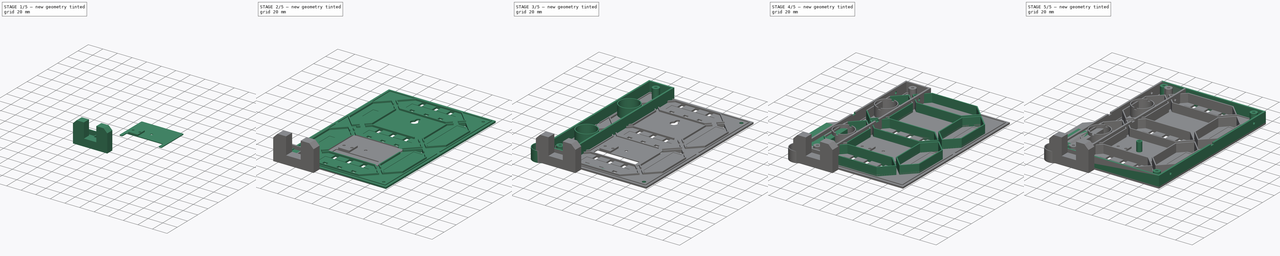
[diagram: build sequence overview — one tinted view per stage of 5, left to right]
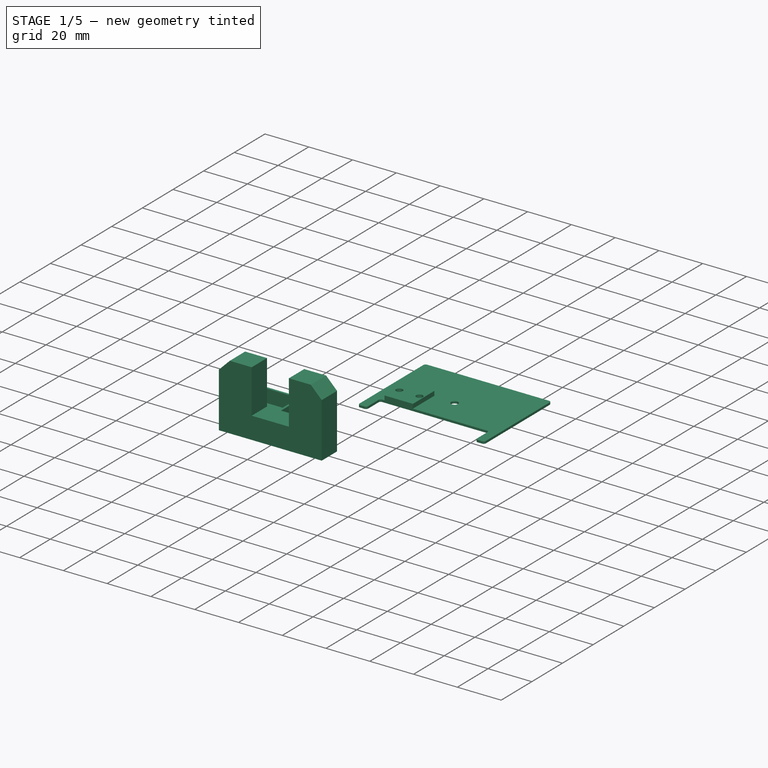
[diagram: stage 1 of 5 — iso view after this stage's code; geometry added in this stage tinted green]
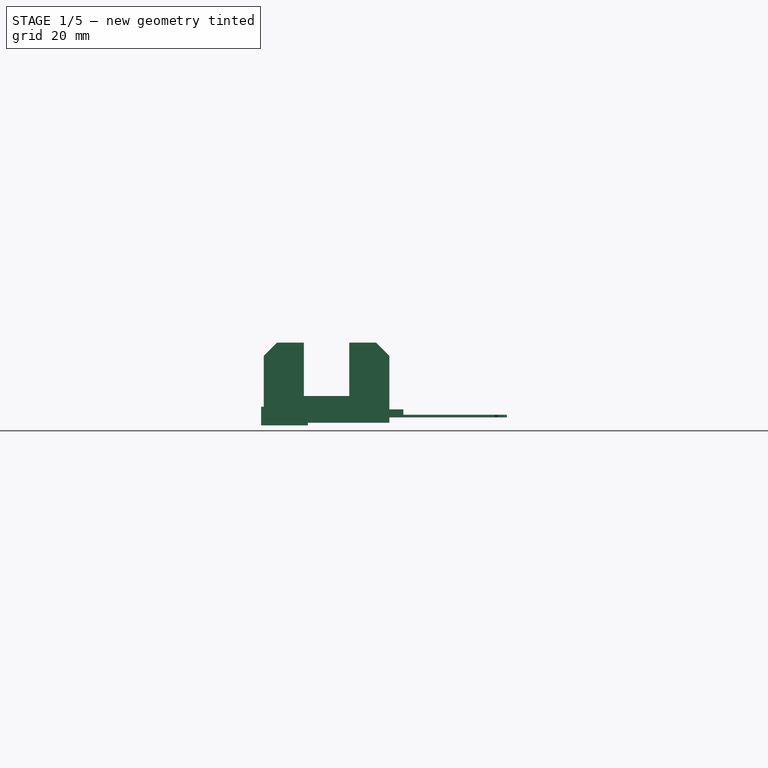
[diagram: stage 1 of 5 — front view after this stage's code; geometry added in this stage tinted green]
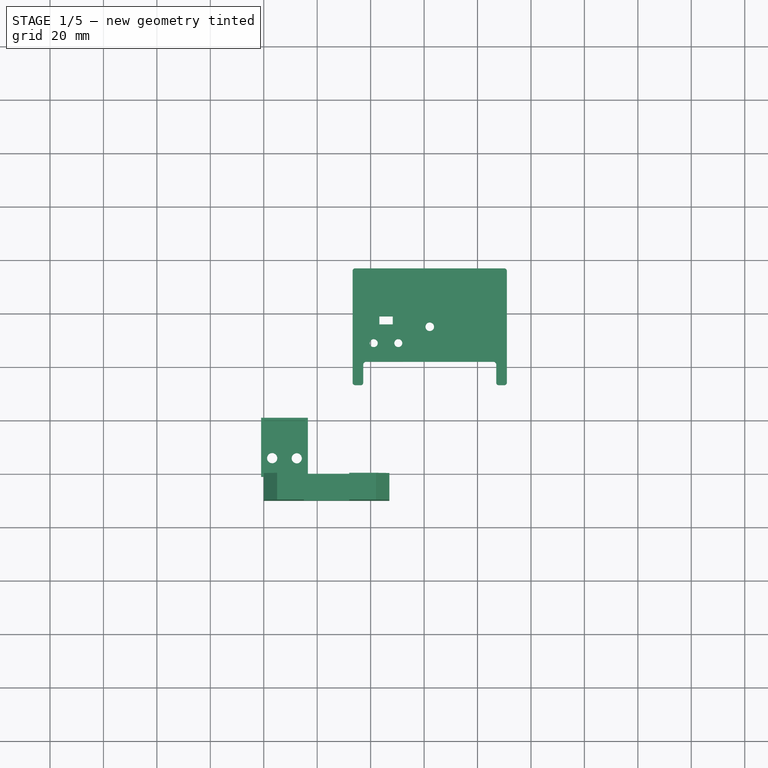
[diagram: stage 1 of 5 — top view after this stage's code; geometry added in this stage tinted green]
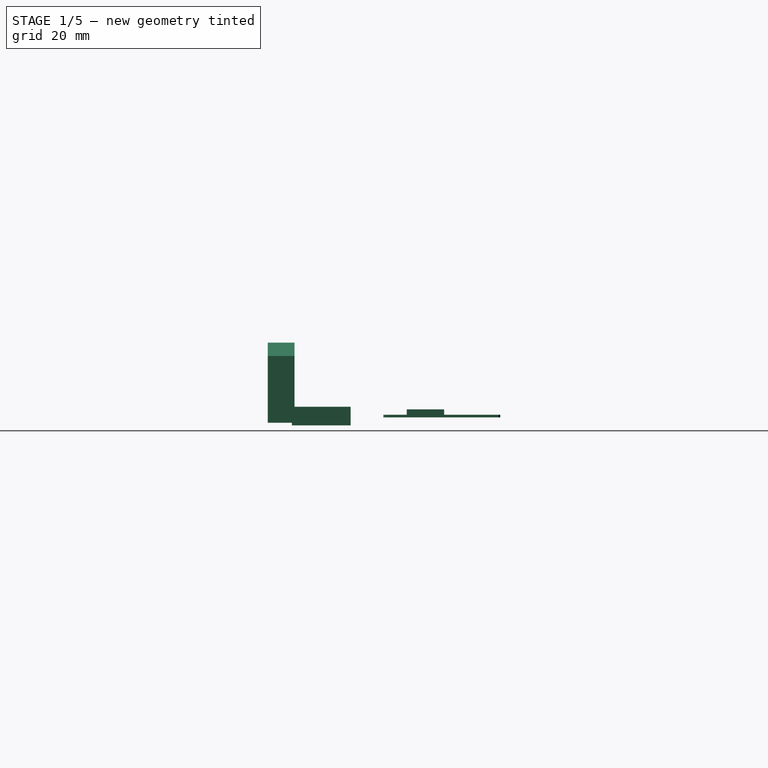
[diagram: stage 1 of 5 — right view after this stage's code; geometry added in this stage tinted green]
FCSTD DOCUMENT  (FreeCAD 0.18R16131 (Git))
Label: 3DModel
License: CreativeCommons Attribution-NonCommercial-NoDerivatives
LicenseURL: http://creativecommons.org/licenses/by-nc-nd/4.0/
objects: Sketcher::SketchObject×67, PartDesign::Pocket×30, PartDesign::Pad×22, PartDesign::Body×13, PartDesign::Fillet×6, PartDesign::Thickness×5, PartDesign::Chamfer×2, App::DocumentObjectGroup×1, Spreadsheet::Sheet×1
note: 197 computed .brp shape members not serialized (recipe doc carries the construction recipe); baked Part::Feature solids carry a one-line shape summary decoded from their .brp

FEATURE [PartDesign::Body] Body001  label="Top"
  Group = -> [Sketch026,Pad003,Sketch027,Pad002,Pocket,Pocket001,Pocket002,Pocket003,Pocket004,Pocket005,Pocket006,Sketch028,Pad004,Sketch029,Pad005,Sketch030,Pocket007,Sketch031,Pocket008,Sketch037,Pocket014,Sketch038,Sketch044,Pad010]
  Origin = -> Origin001
  Placement = pos=(-130,0,0) rot=(0,0,1;0rad)
  Tip = -> Pad010
FEATURE [Sketcher::SketchObject] CopySketch045
  Placement = pos=(0,0,2) rot=(0,0,1;0rad)
  sketch-geometry (13):
    g0: LineSegment [constr] StartX=33 StartY=77.2426 StartZ=0 EndX=91.2426 EndY=77.2426 EndZ=0
    g1: LineSegment [constr] StartX=91.2426 StartY=77.2426 StartZ=0 EndX=91.2426 EndY=33 EndZ=0
    g2: LineSegment [constr] StartX=91.2426 StartY=33 StartZ=0 EndX=33 EndY=33 EndZ=0
    g3: LineSegment [constr] StartX=33 StartY=33 StartZ=0 EndX=33 EndY=77.2426 EndZ=0
    g4: LineSegment StartX=33.25 StartY=76.9926 StartZ=0 EndX=90.9926 EndY=76.9926 EndZ=0
    g5: LineSegment StartX=90.9926 StartY=76.9926 StartZ=0 EndX=90.9926 EndY=33.25 EndZ=0
    g6: LineSegment StartX=90.9926 StartY=33.25 StartZ=0 EndX=86.9926 EndY=33.25 EndZ=0
    g7: LineSegment StartX=33.25 StartY=33.25 StartZ=0 EndX=33.25 EndY=76.9926 EndZ=0
    g8: Circle CenterX=62.1213 CenterY=55.1213 CenterZ=0 NormalX=0 NormalY=0 NormalZ=1 AngleXU=0 Radius=1.6
    g9: LineSegment StartX=37.25 StartY=33.25 StartZ=0 EndX=37.25 EndY=41.99 EndZ=0
    g10: LineSegment StartX=37.25 StartY=41.99 StartZ=0 EndX=86.9926 EndY=41.99 EndZ=0
    g11: LineSegment StartX=86.9926 StartY=41.99 StartZ=0 EndX=86.9926 EndY=33.25 EndZ=0
    g12: LineSegment StartX=37.25 StartY=33.25 StartZ=0 EndX=33.25 EndY=33.25 EndZ=0
  constraints (36):
    c: Coincident(g0,g1)
    c: Coincident(g1,g2)
    c: Coincident(g2,g3)
    c: Coincident(g3,g0)
    c: Horizontal(g0)
    c: Vertical(g1)
    c: Vertical(g3)
    c: Coincident(g4,g5)
    c: Coincident(g5,g6)
    c: Coincident(g12,g7)
    c: Coincident(g7,g4)
    c: Horizontal(g4)
    c: Horizontal(g6)
    c: Vertical(g5)
    c: Vertical(g7)
    c: DistanceX(g0,g4) = 0.25
    c: DistanceY(g1,g5) = 0.25
    c: DistanceX(g5,g1) = 0.25
    c: Radius(g8) = 1.6
    c: Symmetric(g12,g4,g8)
    c: Block(g3)
    c: Block(g0)
    c: Block(g1)
    c: Block(g2)
    c: DistanceY(g4,g0) = 0.25
    c: Vertical(g9)
    c: Coincident(g10,g9)
    c: Horizontal(g10)
    c: Coincident(g11,g10)
    c: Vertical(g11)
    c: DistanceX(g12,g9) = 4
    c: Coincident(g6,g11)
    c: Coincident(g12,g9)
    c: Tangent(g6,g12)
    c: DistanceX(g6,g5) = 4
    c: DistanceY(g11,g11) = 8.74
FEATURE [PartDesign::Pad] Pad011
  Length = 1
  Length2 = 100
  Placement = pos=(0,0,2) rot=(0,0,1;0rad)
  Profile = -> CopySketch045
  Type = 0
FEATURE [PartDesign::Fillet] Fillet
  Base = -> Pad011 [Edge11,Edge2,Edge5,Edge8]
  BaseFeature = -> Pad011
  Placement = pos=(0,0,2) rot=(0,0,1;0rad)
  Radius = 1
FEATURE [PartDesign::Fillet] Fillet001
  Base = -> Fillet [Edge32,Edge19]
  BaseFeature = -> Fillet
  Placement = pos=(0,0,2) rot=(0,0,1;0rad)
  Radius = 1
FEATURE [PartDesign::Fillet] Fillet002
  Base = -> Fillet001 [Edge31,Edge17]
  BaseFeature = -> Fillet001
  Placement = pos=(0,0,2) rot=(0,0,1;0rad)
  Radius = 1
FEATURE [PartDesign::Body] Body006  label="MiddleBottom"
  Group = -> [Sketch046,Pad013,Sketch047,Pocket017,Sketch048,Pocket018,Sketch064,Pocket026]
  Origin = -> Origin006
  Placement = pos=(135,0,0) rot=(0,0,1;0rad)
  Tip = -> Pocket026
FEATURE [Sketcher::SketchObject] Sketch065
  ExternalGeometry = -> [Fillet002]
  MapMode = 5
  Placement = pos=(0,0,3) rot=(0,0,1;0rad)
  Support = -> [Fillet002]
  sketch-geometry (6):
    g0: LineSegment StartX=39.25 StartY=41.99 StartZ=0 EndX=52.25 EndY=41.99 EndZ=0
    g1: LineSegment StartX=52.25 StartY=41.99 StartZ=0 EndX=52.25 EndY=55.99 EndZ=0
    g2: LineSegment StartX=52.25 StartY=55.99 StartZ=0 EndX=39.25 EndY=55.99 EndZ=0
    g3: LineSegment StartX=39.25 StartY=55.99 StartZ=0 EndX=39.25 EndY=41.99 EndZ=0
    g4: Circle CenterX=41.15 CenterY=48.99 CenterZ=0 NormalX=0 NormalY=0 NormalZ=1 AngleXU=0 Radius=1.5
    g5: Circle CenterX=50.35 CenterY=48.99 CenterZ=0 NormalX=0 NormalY=0 NormalZ=1 AngleXU=0 Radius=1.5
  constraints (18):
    c: Coincident(g0,g1)
    c: Coincident(g1,g2)
    c: Coincident(g2,g3)
    c: Coincident(g3,g0)
    c: Horizontal(g0)
    c: Horizontal(g2)
    c: Vertical(g1)
    c: Vertical(g3)
    c: DistanceX(g2,g2) = 13
    c: DistanceY(g3,g3) = 14
    c: DistanceY(g-5,g0) = 0
    c: DistanceX(g-3,g2) = 6
    c: Radius(g4) = 1.5
    c: Radius(g5) = 1.5
    c: DistanceX(g2,g4) = 1.9
    c: DistanceX(g5,g1) = 1.9
    c: DistanceY(g4,g2) = 7
    c: DistanceY(g5,g1) = 7
FEATURE [PartDesign::Pad] Pad021
  BaseFeature = -> Fillet002
  Length = 2
  Length2 = 100
  Placement = pos=(0,0,2) rot=(0,0,1;0rad)
  Profile = -> Sketch065
  Type = 0
FEATURE [Sketcher::SketchObject] Sketch068
  ExternalGeometry = -> [Pad021]
  MapMode = 5
  Placement = pos=(0,0,5) rot=(0,0,1;0rad)
  Support = -> [Pad021]
  sketch-geometry (2):
    g0: Circle CenterX=50.35 CenterY=48.99 CenterZ=0 NormalX=0 NormalY=0 NormalZ=1 AngleXU=0 Radius=1.5
    g1: Circle CenterX=41.15 CenterY=48.99 CenterZ=0 NormalX=0 NormalY=0 NormalZ=1 AngleXU=0 Radius=1.5
  constraints (4):
    c: Coincident(g0,g-3)
    c: Coincident(g1,g-4)
    c: Equal(g1,g-4)
    c: Equal(g0,g-3)
FEATURE [PartDesign::Pocket] Pocket027
  BaseFeature = -> Pad021
  Length = 5
  Length2 = 100
  Placement = pos=(0,0,2) rot=(0,0,1;0rad)
  Profile = -> Sketch068
  Type = 1
FEATURE [Sketcher::SketchObject] Sketch069
  ExternalGeometry = -> [Pocket027]
  MapMode = 5
  Placement = pos=(0,0,3) rot=(0,0,1;0rad)
  Support = -> [Pocket027]
  sketch-geometry (5):
    g0: LineSegment StartX=43.25 StartY=55.99 StartZ=0 EndX=48.25 EndY=55.99 EndZ=0
    g1: LineSegment StartX=48.25 StartY=55.99 StartZ=0 EndX=48.25 EndY=58.99 EndZ=0
    g2: LineSegment StartX=48.25 StartY=58.99 StartZ=0 EndX=43.25 EndY=58.99 EndZ=0
    g3: LineSegment StartX=43.25 StartY=58.99 StartZ=0 EndX=43.25 EndY=55.99 EndZ=0
    g4: GeomPoint X=45.75 Y=55.99 Z=0
  constraints (12):
    c: Coincident(g0,g1)
    c: Coincident(g1,g2)
    c: Coincident(g2,g3)
    c: Coincident(g3,g0)
    c: Horizontal(g0)
    c: Horizontal(g2)
    c: Vertical(g1)
    c: Vertical(g3)
    c: DistanceX(g2,g2) = 5
    c: DistanceY(g3,g3) = 3
    c: Symmetric(g0,g0,g4)
    c: Symmetric(g-3,g-3,g4)
FEATURE [PartDesign::Pocket] Pocket028
  BaseFeature = -> Pocket027
  Length = 5
  Length2 = 100
  Placement = pos=(0,0,2) rot=(0,0,1;0rad)
  Profile = -> Sketch069
  Type = 1
FEATURE [PartDesign::Body] Body004  label="BackLid"
  Group = -> [Pad011,Fillet,Fillet001,Fillet002,Sketch065,Pad021,Sketch068,Pocket027,Sketch069,Pocket028]
  Origin = -> Origin004
  Placement = pos=(0,-90,0) rot=(0,0,1;0rad)
  Tip = -> Pocket028
FEATURE [Sketcher::SketchObject] Sketch070
  MapMode = 5
  Support = -> [XY_Plane013]
  sketch-geometry (4):
    g0: LineSegment StartX=0 StartY=0 StartZ=0 EndX=15.5 EndY=0 EndZ=0
    g1: LineSegment StartX=15.5 StartY=0 StartZ=0 EndX=15.5 EndY=20 EndZ=0
    g2: LineSegment StartX=15.5 StartY=20 StartZ=0 EndX=0 EndY=20 EndZ=0
    g3: LineSegment StartX=0 StartY=20 StartZ=0 EndX=0 EndY=0 EndZ=0
  constraints (11):
    c: Coincident(g0,g1)
    c: Coincident(g1,g2)
    c: Coincident(g2,g3)
    c: Coincident(g3,g0)
    c: Horizontal(g0)
    c: Horizontal(g2)
    c: Vertical(g1)
    c: Vertical(g3)
    c: Coincident(g0,g-1)
    c: DistanceX(g2,g2) = 15.5
    c: DistanceY(g3,g3) = 20
FEATURE [PartDesign::Pad] Pad023
  Length = 6
  Length2 = 100
  Profile = -> Sketch070
  Type = 0
FEATURE [PartDesign::Thickness] Thickness004
  Base = -> Pad023 [Face6]
  BaseFeature = -> Pad023
  Join = 1
  Mode = 0
  Value = 1
FEATURE [Sketcher::SketchObject] Sketch071
  MapMode = 5
  Support = -> [Thickness004]
  sketch-geometry (2):
    g0: Circle CenterX=3.1475 CenterY=6.00004 CenterZ=0 NormalX=0 NormalY=0 NormalZ=1 AngleXU=0 Radius=1.9
    g1: Circle CenterX=12.3467 CenterY=5.94126 CenterZ=0 NormalX=0 NormalY=0 NormalZ=1 AngleXU=0 Radius=1.9
  constraints (2):
    c: Radius(g0) = 1.9
    c: Radius(g1) = 1.9
FEATURE [PartDesign::Pocket] Pocket029
  BaseFeature = -> Thickness004
  Length = 5
  Length2 = 100
  Profile = -> Sketch071
  Type = 1
FEATURE [Sketcher::SketchObject] Sketch072
  ExternalGeometry = -> [Pocket029]
  MapMode = 5
  Placement = pos=(0,0,0) rot=(0,0.707107,0.707107;3.14159rad)
  Support = -> [Pocket029]
  sketch-geometry (4):
    g0: LineSegment StartX=0 StartY=6 StartZ=0 EndX=-15.5 EndY=6 EndZ=0
    g1: LineSegment StartX=-15.5 StartY=6 StartZ=0 EndX=-15.5 EndY=-0.004692 EndZ=0
    g2: LineSegment StartX=-15.5 StartY=-0.004692 StartZ=0 EndX=0 EndY=-0.004692 EndZ=0
    g3: LineSegment StartX=0 StartY=-0.004692 StartZ=0 EndX=0 EndY=6 EndZ=0
  constraints (10):
    c: Coincident(g0,g1)
    c: Coincident(g1,g2)
    c: Coincident(g2,g3)
    c: Coincident(g3,g0)
    c: Horizontal(g0)
    c: Horizontal(g2)
    c: Vertical(g1)
    c: Vertical(g3)
    c: Coincident(g0,g-4)
    c: PointOnObject(g1,g-3)
FEATURE [PartDesign::Pocket] Pocket030
  BaseFeature = -> Pocket029
  Length = 5
  Length2 = 100
  Profile = -> Sketch072
  Type = 0
FEATURE [PartDesign::Body] Body013  label="USB_Cap"
  Group = -> [Sketch070,Pad023,Thickness004,Sketch071,Pocket029,Sketch072,Pocket030]
  Origin = -> Origin013
  Placement = pos=(7,-56,1) rot=(0,0,1;0rad)
  Tip = -> Pocket030
FEATURE [Sketcher::SketchObject] Sketch073
  MapMode = 5
  Placement = pos=(0,0,0) rot=(1,0,0;1.5708rad)
  Support = -> [XZ_Plane014]
  sketch-geometry (8):
    g0: LineSegment StartX=0 StartY=0 StartZ=0 EndX=47 EndY=0 EndZ=0
    g1: LineSegment StartX=47 StartY=0 StartZ=0 EndX=47 EndY=30 EndZ=0
    g2: LineSegment StartX=47 StartY=30 StartZ=0 EndX=32 EndY=30 EndZ=0
    g3: LineSegment StartX=32 StartY=30 StartZ=0 EndX=32 EndY=10 EndZ=0
    g4: LineSegment StartX=32 StartY=10 StartZ=0 EndX=15 EndY=10 EndZ=0
    g5: LineSegment StartX=15 StartY=10 StartZ=0 EndX=15 EndY=30 EndZ=0
    g6: LineSegment StartX=15 StartY=30 StartZ=0 EndX=0 EndY=30 EndZ=0
    g7: LineSegment StartX=0 StartY=30 StartZ=0 EndX=0 EndY=0 EndZ=0
  constraints (23):
    c: Coincident(g-1,g0)
    c: Horizontal(g0)
    c: Coincident(g0,g1)
    c: Vertical(g1)
    c: Coincident(g1,g2)
    c: Horizontal(g2)
    c: Coincident(g2,g3)
    c: Vertical(g3)
    c: Coincident(g3,g4)
    c: Horizontal(g4)
    c: Coincident(g4,g5)
    c: Vertical(g5)
    c: Coincident(g5,g6)
    c: Horizontal(g6)
    c: Coincident(g6,g7)
    c: Coincident(g7,g0)
    c: Vertical(g7)
    c: DistanceX(g6,g6) = 15
    c: DistanceX(g2,g2) = 15
    c: DistanceX(g4,g4) = 17
    c: DistanceY(g5,g5) = 20
    c: DistanceY(g3,g3) = 20
    c: DistanceY(g7,g7) = 30
FEATURE [PartDesign::Pad] Pad024
  Length = 10
  Length2 = 100
  Placement = pos=(0,0,0) rot=(1,0,0;1.5708rad)
  Profile = -> Sketch073
  Type = 0
FEATURE [PartDesign::Chamfer] Chamfer001
  Base = -> Pad024 [Edge20,Edge5]
  BaseFeature = -> Pad024
  Placement = pos=(0,0,0) rot=(1,0,0;1.5708rad)
  Size = 5
FEATURE [PartDesign::Body] Body014  label="Stand"
  Group = -> [Sketch073,Pad024,Chamfer001]
  Origin = -> Origin014
  Placement = pos=(107,-34,0) rot=(0,0,1;0rad)
  Tip = -> Chamfer001
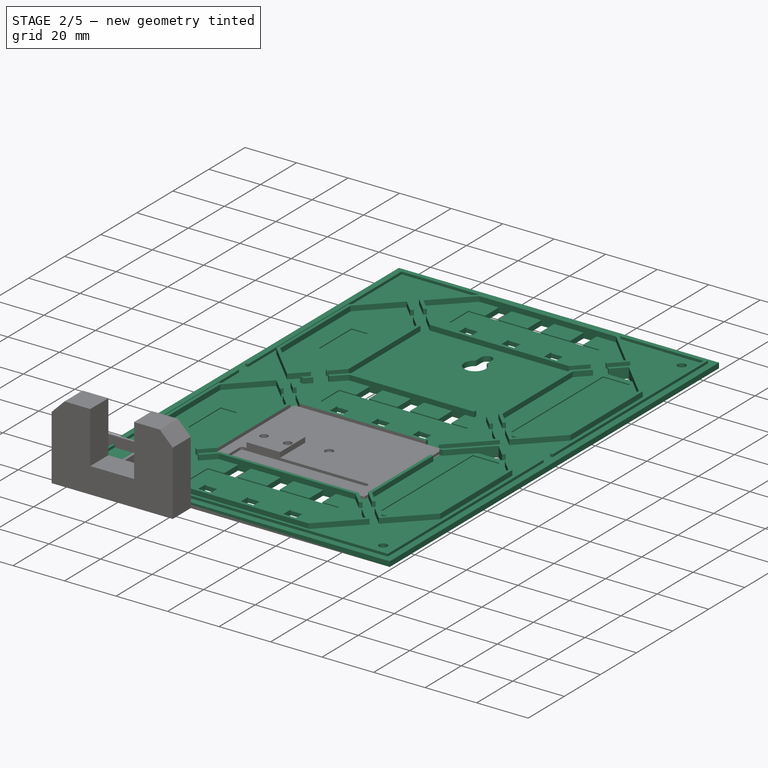
[diagram: stage 2 of 5 — iso view after this stage's code; geometry added in this stage tinted green]
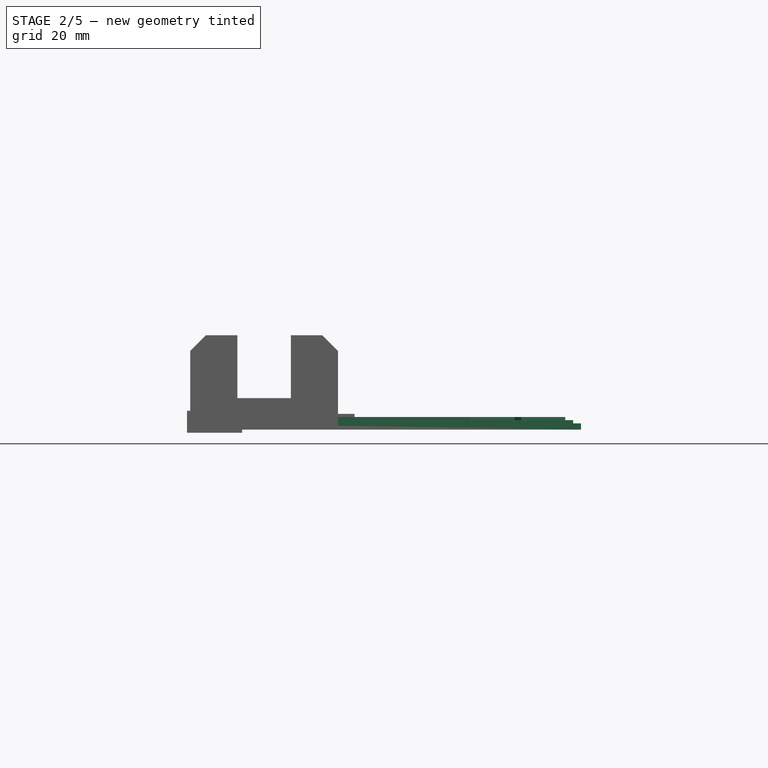
[diagram: stage 2 of 5 — front view after this stage's code; geometry added in this stage tinted green]
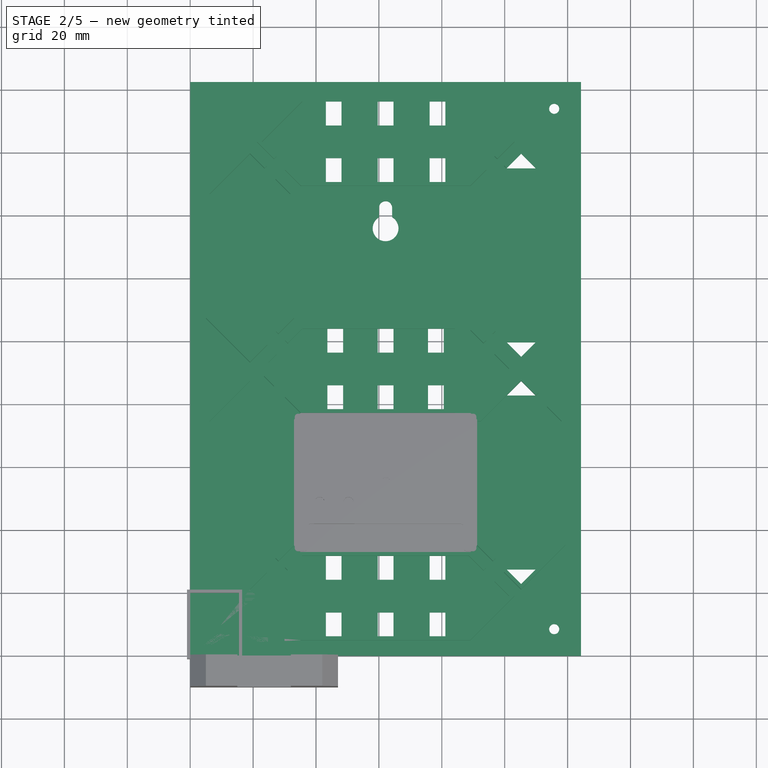
[diagram: stage 2 of 5 — top view after this stage's code; geometry added in this stage tinted green]
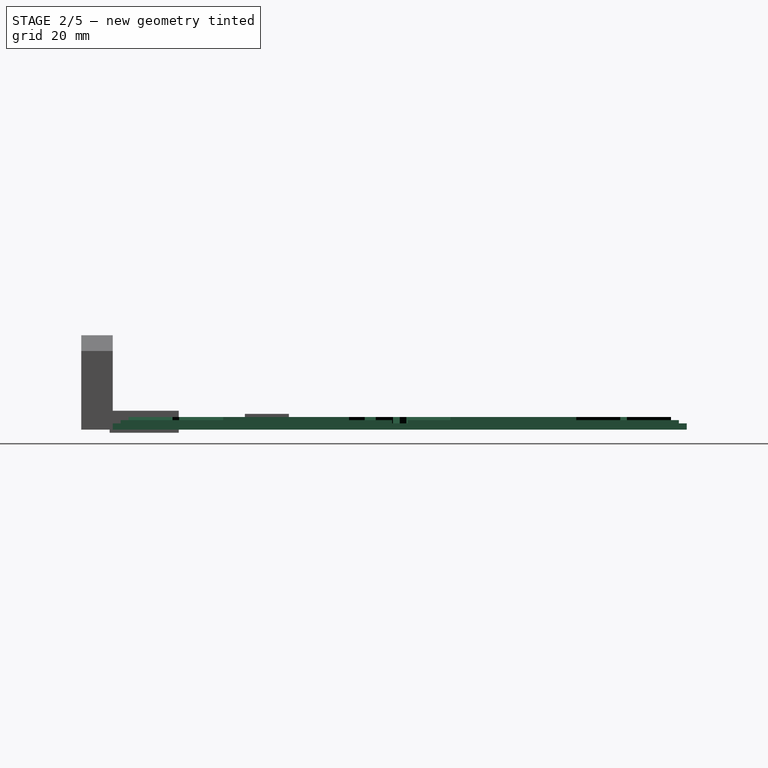
[diagram: stage 2 of 5 — right view after this stage's code; geometry added in this stage tinted green]
FEATURE [Sketcher::SketchObject] Sketch001
  Placement = pos=(-24.291,354.335,0) rot=(0,0,1;0rad)
  sketch-geometry (6):
    g0: BSplineCurve PolesCount=2 KnotsCount=2 Degree=1 IsPeriodic=0
    g1: BSplineCurve PolesCount=2 KnotsCount=2 Degree=1 IsPeriodic=0
    g2: BSplineCurve PolesCount=2 KnotsCount=2 Degree=1 IsPeriodic=0
    g3: BSplineCurve PolesCount=2 KnotsCount=2 Degree=1 IsPeriodic=0
    g4: BSplineCurve PolesCount=2 KnotsCount=2 Degree=1 IsPeriodic=0
    g5: BSplineCurve PolesCount=2 KnotsCount=2 Degree=1 IsPeriodic=0
  constraints (6):
    c: Coincident(g0,g1)
    c: Coincident(g1,g2)
    c: Coincident(g2,g3)
    c: Coincident(g3,g4)
    c: Coincident(g4,g5)
    c: Coincident(g5,g0)
FEATURE [Sketcher::SketchObject] Sketch002
  Placement = pos=(-24.291,354.335,0) rot=(0,0,1;0rad)
  sketch-geometry (6):
    g0: BSplineCurve PolesCount=2 KnotsCount=2 Degree=1 IsPeriodic=0
    g1: BSplineCurve PolesCount=2 KnotsCount=2 Degree=1 IsPeriodic=0
    g2: BSplineCurve PolesCount=2 KnotsCount=2 Degree=1 IsPeriodic=0
    g3: BSplineCurve PolesCount=2 KnotsCount=2 Degree=1 IsPeriodic=0
    g4: BSplineCurve PolesCount=2 KnotsCount=2 Degree=1 IsPeriodic=0
    g5: BSplineCurve PolesCount=2 KnotsCount=2 Degree=1 IsPeriodic=0
  constraints (6):
    c: Coincident(g0,g1)
    c: Coincident(g1,g2)
    c: Coincident(g2,g3)
    c: Coincident(g3,g4)
    c: Coincident(g4,g5)
    c: Coincident(g5,g0)
FEATURE [Sketcher::SketchObject] Sketch003
  Placement = pos=(-24.291,354.335,0) rot=(0,0,1;0rad)
  sketch-geometry (1):
    g0: BSplineCurve PolesCount=2 KnotsCount=2 Degree=1 IsPeriodic=0
FEATURE [Sketcher::SketchObject] Sketch004
  Placement = pos=(-24.291,354.335,0) rot=(0,0,1;0rad)
  sketch-geometry (1):
    g0: BSplineCurve PolesCount=2 KnotsCount=2 Degree=1 IsPeriodic=0
FEATURE [Sketcher::SketchObject] Sketch005
  Placement = pos=(-24.291,354.335,0) rot=(0,0,1;0rad)
  sketch-geometry (1):
    g0: BSplineCurve PolesCount=2 KnotsCount=2 Degree=1 IsPeriodic=0
FEATURE [Sketcher::SketchObject] Sketch006
  Placement = pos=(-24.291,354.335,0) rot=(0,0,1;0rad)
  sketch-geometry (6):
    g0: BSplineCurve PolesCount=2 KnotsCount=2 Degree=1 IsPeriodic=0
    g1: BSplineCurve PolesCount=2 KnotsCount=2 Degree=1 IsPeriodic=0
    g2: BSplineCurve PolesCount=2 KnotsCount=2 Degree=1 IsPeriodic=0
    g3: BSplineCurve PolesCount=2 KnotsCount=2 Degree=1 IsPeriodic=0
    g4: BSplineCurve PolesCount=2 KnotsCount=2 Degree=1 IsPeriodic=0
    g5: BSplineCurve PolesCount=2 KnotsCount=2 Degree=1 IsPeriodic=0
  constraints (6):
    c: Coincident(g0,g1)
    c: Coincident(g1,g2)
    c: Coincident(g2,g3)
    c: Coincident(g3,g4)
    c: Coincident(g4,g5)
    c: Coincident(g5,g0)
FEATURE [Sketcher::SketchObject] Sketch007
  Placement = pos=(-24.291,354.335,0) rot=(0,0,1;0rad)
  sketch-geometry (6):
    g0: BSplineCurve PolesCount=2 KnotsCount=2 Degree=1 IsPeriodic=0
    g1: BSplineCurve PolesCount=2 KnotsCount=2 Degree=1 IsPeriodic=0
    g2: BSplineCurve PolesCount=2 KnotsCount=2 Degree=1 IsPeriodic=0
    g3: BSplineCurve PolesCount=2 KnotsCount=2 Degree=1 IsPeriodic=0
    g4: BSplineCurve PolesCount=2 KnotsCount=2 Degree=1 IsPeriodic=0
    g5: BSplineCurve PolesCount=2 KnotsCount=2 Degree=1 IsPeriodic=0
  constraints (6):
    c: Coincident(g0,g1)
    c: Coincident(g1,g2)
    c: Coincident(g2,g3)
    c: Coincident(g3,g4)
    c: Coincident(g4,g5)
    c: Coincident(g5,g0)
FEATURE [Sketcher::SketchObject] Sketch010
  Placement = pos=(-24.291,354.335,0) rot=(0,0,1;0rad)
  sketch-geometry (6):
    g0: BSplineCurve PolesCount=2 KnotsCount=2 Degree=1 IsPeriodic=0
    g1: BSplineCurve PolesCount=2 KnotsCount=2 Degree=1 IsPeriodic=0
    g2: BSplineCurve PolesCount=2 KnotsCount=2 Degree=1 IsPeriodic=0
    g3: BSplineCurve PolesCount=2 KnotsCount=2 Degree=1 IsPeriodic=0
    g4: BSplineCurve PolesCount=2 KnotsCount=2 Degree=1 IsPeriodic=0
    g5: BSplineCurve PolesCount=2 KnotsCount=2 Degree=1 IsPeriodic=0
  constraints (6):
    c: Coincident(g0,g1)
    c: Coincident(g1,g2)
    c: Coincident(g2,g3)
    c: Coincident(g3,g4)
    c: Coincident(g4,g5)
    c: Coincident(g5,g0)
FEATURE [Sketcher::SketchObject] Sketch011
  Placement = pos=(-24.291,354.335,0) rot=(0,0,1;0rad)
  sketch-geometry (6):
    g0: BSplineCurve PolesCount=2 KnotsCount=2 Degree=1 IsPeriodic=0
    g1: BSplineCurve PolesCount=2 KnotsCount=2 Degree=1 IsPeriodic=0
    g2: BSplineCurve PolesCount=2 KnotsCount=2 Degree=1 IsPeriodic=0
    g3: BSplineCurve PolesCount=2 KnotsCount=2 Degree=1 IsPeriodic=0
    g4: BSplineCurve PolesCount=2 KnotsCount=2 Degree=1 IsPeriodic=0
    g5: BSplineCurve PolesCount=2 KnotsCount=2 Degree=1 IsPeriodic=0
  constraints (6):
    c: Coincident(g0,g1)
    c: Coincident(g1,g2)
    c: Coincident(g2,g3)
    c: Coincident(g3,g4)
    c: Coincident(g4,g5)
    c: Coincident(g5,g0)
FEATURE [Sketcher::SketchObject] Sketch012
  Placement = pos=(-24.291,354.335,0) rot=(0,0,1;0rad)
  sketch-geometry (6):
    g0: BSplineCurve PolesCount=2 KnotsCount=2 Degree=1 IsPeriodic=0
    g1: BSplineCurve PolesCount=2 KnotsCount=2 Degree=1 IsPeriodic=0
    g2: BSplineCurve PolesCount=2 KnotsCount=2 Degree=1 IsPeriodic=0
    g3: BSplineCurve PolesCount=2 KnotsCount=2 Degree=1 IsPeriodic=0
    g4: BSplineCurve PolesCount=2 KnotsCount=2 Degree=1 IsPeriodic=0
    g5: BSplineCurve PolesCount=2 KnotsCount=2 Degree=1 IsPeriodic=0
  constraints (6):
    c: Coincident(g0,g1)
    c: Coincident(g1,g2)
    c: Coincident(g2,g3)
    c: Coincident(g3,g4)
    c: Coincident(g4,g5)
    c: Coincident(g5,g0)
FEATURE [Sketcher::SketchObject] Sketch013
  Placement = pos=(-24.291,354.335,0) rot=(0,0,1;0rad)
  sketch-geometry (6):
    g0: BSplineCurve PolesCount=2 KnotsCount=2 Degree=1 IsPeriodic=0
    g1: BSplineCurve PolesCount=2 KnotsCount=2 Degree=1 IsPeriodic=0
    g2: BSplineCurve PolesCount=2 KnotsCount=2 Degree=1 IsPeriodic=0
    g3: BSplineCurve PolesCount=2 KnotsCount=2 Degree=1 IsPeriodic=0
    g4: BSplineCurve PolesCount=2 KnotsCount=2 Degree=1 IsPeriodic=0
    g5: BSplineCurve PolesCount=2 KnotsCount=2 Degree=1 IsPeriodic=0
  constraints (6):
    c: Coincident(g0,g1)
    c: Coincident(g1,g2)
    c: Coincident(g2,g3)
    c: Coincident(g3,g4)
    c: Coincident(g4,g5)
    c: Coincident(g5,g0)
FEATURE [Sketcher::SketchObject] Sketch014
  Placement = pos=(-24.291,354.335,0) rot=(0,0,1;0rad)
  sketch-geometry (1):
    g0: BSplineCurve PolesCount=2 KnotsCount=2 Degree=1 IsPeriodic=0
FEATURE [Sketcher::SketchObject] Sketch015
  Placement = pos=(-24.291,354.335,0) rot=(0,0,1;0rad)
  sketch-geometry (6):
    g0: BSplineCurve PolesCount=2 KnotsCount=2 Degree=1 IsPeriodic=0
    g1: BSplineCurve PolesCount=2 KnotsCount=2 Degree=1 IsPeriodic=0
    g2: BSplineCurve PolesCount=2 KnotsCount=2 Degree=1 IsPeriodic=0
    g3: BSplineCurve PolesCount=2 KnotsCount=2 Degree=1 IsPeriodic=0
    g4: BSplineCurve PolesCount=2 KnotsCount=2 Degree=1 IsPeriodic=0
    g5: BSplineCurve PolesCount=2 KnotsCount=2 Degree=1 IsPeriodic=0
  constraints (6):
    c: Coincident(g0,g1)
    c: Coincident(g1,g2)
    c: Coincident(g2,g3)
    c: Coincident(g3,g4)
    c: Coincident(g4,g5)
    c: Coincident(g5,g0)
FEATURE [Sketcher::SketchObject] Sketch016
  Placement = pos=(-24.291,354.335,0) rot=(0,0,1;0rad)
  sketch-geometry (1):
    g0: BSplineCurve PolesCount=2 KnotsCount=2 Degree=1 IsPeriodic=0
FEATURE [Sketcher::SketchObject] Sketch017
  Placement = pos=(-24.291,354.335,0) rot=(0,0,1;0rad)
  sketch-geometry (1):
    g0: BSplineCurve PolesCount=2 KnotsCount=2 Degree=1 IsPeriodic=0
FEATURE [Sketcher::SketchObject] Sketch018
  Placement = pos=(-24.291,354.335,0) rot=(0,0,1;0rad)
  sketch-geometry (6):
    g0: BSplineCurve PolesCount=2 KnotsCount=2 Degree=1 IsPeriodic=0
    g1: BSplineCurve PolesCount=2 KnotsCount=2 Degree=1 IsPeriodic=0
    g2: BSplineCurve PolesCount=2 KnotsCount=2 Degree=1 IsPeriodic=0
    g3: BSplineCurve PolesCount=2 KnotsCount=2 Degree=1 IsPeriodic=0
    g4: BSplineCurve PolesCount=2 KnotsCount=2 Degree=1 IsPeriodic=0
    g5: BSplineCurve PolesCount=2 KnotsCount=2 Degree=1 IsPeriodic=0
  constraints (6):
    c: Coincident(g0,g1)
    c: Coincident(g1,g2)
    c: Coincident(g2,g3)
    c: Coincident(g3,g4)
    c: Coincident(g4,g5)
    c: Coincident(g5,g0)
FEATURE [Sketcher::SketchObject] Sketch020
  Placement = pos=(-24.291,354.335,0) rot=(0,0,1;0rad)
  sketch-geometry (6):
    g0: BSplineCurve PolesCount=2 KnotsCount=2 Degree=1 IsPeriodic=0
    g1: BSplineCurve PolesCount=2 KnotsCount=2 Degree=1 IsPeriodic=0
    g2: BSplineCurve PolesCount=2 KnotsCount=2 Degree=1 IsPeriodic=0
    g3: BSplineCurve PolesCount=2 KnotsCount=2 Degree=1 IsPeriodic=0
    g4: BSplineCurve PolesCount=2 KnotsCount=2 Degree=1 IsPeriodic=0
    g5: BSplineCurve PolesCount=2 KnotsCount=2 Degree=1 IsPeriodic=0
  constraints (6):
    c: Coincident(g0,g1)
    c: Coincident(g1,g2)
    c: Coincident(g2,g3)
    c: Coincident(g3,g4)
    c: Coincident(g4,g5)
    c: Coincident(g5,g0)
FEATURE [Sketcher::SketchObject] Sketch021
  Placement = pos=(-24.291,354.335,0) rot=(0,0,1;0rad)
  sketch-geometry (1):
    g0: BSplineCurve PolesCount=2 KnotsCount=2 Degree=1 IsPeriodic=0
FEATURE [Sketcher::SketchObject] Sketch023
  Placement = pos=(-24.291,354.335,0) rot=(0,0,1;0rad)
  sketch-geometry (6):
    g0: BSplineCurve PolesCount=2 KnotsCount=2 Degree=1 IsPeriodic=0
    g1: BSplineCurve PolesCount=2 KnotsCount=2 Degree=1 IsPeriodic=0
    g2: BSplineCurve PolesCount=2 KnotsCount=2 Degree=1 IsPeriodic=0
    g3: BSplineCurve PolesCount=2 KnotsCount=2 Degree=1 IsPeriodic=0
    g4: BSplineCurve PolesCount=2 KnotsCount=2 Degree=1 IsPeriodic=0
    g5: BSplineCurve PolesCount=2 KnotsCount=2 Degree=1 IsPeriodic=0
  constraints (6):
    c: Coincident(g0,g1)
    c: Coincident(g1,g2)
    c: Coincident(g2,g3)
    c: Coincident(g3,g4)
    c: Coincident(g4,g5)
    c: Coincident(g5,g0)
FEATURE [Sketcher::SketchObject] Sketch
  Placement = pos=(-24.291,354.335,0) rot=(0,0,1;0rad)
  sketch-geometry (89):
    g0: BSplineCurve PolesCount=2 KnotsCount=2 Degree=1 IsPeriodic=0
    g1: BSplineCurve PolesCount=2 KnotsCount=2 Degree=1 IsPeriodic=0
    g2: BSplineCurve PolesCount=2 KnotsCount=2 Degree=1 IsPeriodic=0
    g3: BSplineCurve PolesCount=2 KnotsCount=2 Degree=1 IsPeriodic=0
    g4: BSplineCurve PolesCount=2 KnotsCount=2 Degree=1 IsPeriodic=0
    g5: BSplineCurve PolesCount=2 KnotsCount=2 Degree=1 IsPeriodic=0
    g6: BSplineCurve PolesCount=2 KnotsCount=2 Degree=1 IsPeriodic=0
    g7: BSplineCurve PolesCount=2 KnotsCount=2 Degree=1 IsPeriodic=0
    g8: BSplineCurve PolesCount=2 KnotsCount=2 Degree=1 IsPeriodic=0
    g9: BSplineCurve PolesCount=2 KnotsCount=2 Degree=1 IsPeriodic=0
    g10: BSplineCurve PolesCount=2 KnotsCount=2 Degree=1 IsPeriodic=0
    g11: BSplineCurve PolesCount=2 KnotsCount=2 Degree=1 IsPeriodic=0
    g12: BSplineCurve PolesCount=2 KnotsCount=2 Degree=1 IsPeriodic=0
    g13: BSplineCurve PolesCount=2 KnotsCount=2 Degree=1 IsPeriodic=0
    g14: BSplineCurve PolesCount=2 KnotsCount=2 Degree=1 IsPeriodic=0
    g15: BSplineCurve PolesCount=2 KnotsCount=2 Degree=1 IsPeriodic=0
    g16: BSplineCurve PolesCount=2 KnotsCount=2 Degree=1 IsPeriodic=0
    g17: BSplineCurve PolesCount=2 KnotsCount=2 Degree=1 IsPeriodic=0
    g18: BSplineCurve PolesCount=2 KnotsCount=2 Degree=1 IsPeriodic=0
    g19: BSplineCurve PolesCount=2 KnotsCount=2 Degree=1 IsPeriodic=0
    g20: BSplineCurve PolesCount=2 KnotsCount=2 Degree=1 IsPeriodic=0
    g21: BSplineCurve PolesCount=2 KnotsCount=2 Degree=1 IsPeriodic=0
    g22: BSplineCurve PolesCount=2 KnotsCount=2 Degree=1 IsPeriodic=0
    g23: BSplineCurve PolesCount=2 KnotsCount=2 Degree=1 IsPeriodic=0
    g24: BSplineCurve PolesCount=2 KnotsCount=2 Degree=1 IsPeriodic=0
    g25: BSplineCurve PolesCount=2 KnotsCount=2 Degree=1 IsPeriodic=0
    g26: BSplineCurve PolesCount=2 KnotsCount=2 Degree=1 IsPeriodic=0
    g27: BSplineCurve PolesCount=2 KnotsCount=2 Degree=1 IsPeriodic=0
    g28: BSplineCurve PolesCount=2 KnotsCount=2 Degree=1 IsPeriodic=0
    g29: BSplineCurve PolesCount=2 KnotsCount=2 Degree=1 IsPeriodic=0
    g30: BSplineCurve PolesCount=2 KnotsCount=2 Degree=1 IsPeriodic=0
    g31: BSplineCurve PolesCount=2 KnotsCount=2 Degree=1 IsPeriodic=0
    g32: BSplineCurve PolesCount=2 KnotsCount=2 Degree=1 IsPeriodic=0
    g33: BSplineCurve PolesCount=2 KnotsCount=2 Degree=1 IsPeriodic=0
    g34: BSplineCurve PolesCount=2 KnotsCount=2 Degree=1 IsPeriodic=0
    g35: BSplineCurve PolesCount=2 KnotsCount=2 Degree=1 IsPeriodic=0
    g36: BSplineCurve PolesCount=2 KnotsCount=2 Degree=1 IsPeriodic=0
    g37: BSplineCurve PolesCount=2 KnotsCount=2 Degree=1 IsPeriodic=0
    g38: BSplineCurve PolesCount=2 KnotsCount=2 Degree=1 IsPeriodic=0
    g39: BSplineCurve PolesCount=2 KnotsCount=2 Degree=1 IsPeriodic=0
    g40: BSplineCurve PolesCount=2 KnotsCount=2 Degree=1 IsPeriodic=0
    g41: BSplineCurve PolesCount=2 KnotsCount=2 Degree=1 IsPeriodic=0
    g42: BSplineCurve PolesCount=2 KnotsCount=2 Degree=1 IsPeriodic=0
    g43: BSplineCurve PolesCount=2 KnotsCount=2 Degree=1 IsPeriodic=0
    g44: BSplineCurve PolesCount=2 KnotsCount=2 Degree=1 IsPeriodic=0
    g45: BSplineCurve PolesCount=2 KnotsCount=2 Degree=1 IsPeriodic=0
    g46: BSplineCurve PolesCount=2 KnotsCount=2 Degree=1 IsPeriodic=0
    g47: BSplineCurve PolesCount=2 KnotsCount=2 Degree=1 IsPeriodic=0
    g48: BSplineCurve PolesCount=2 KnotsCount=2 Degree=1 IsPeriodic=0
    g49: BSplineCurve PolesCount=2 KnotsCount=2 Degree=1 IsPeriodic=0
    g50: BSplineCurve PolesCount=2 KnotsCount=2 Degree=1 IsPeriodic=0
    g51: BSplineCurve PolesCount=2 KnotsCount=2 Degree=1 IsPeriodic=0
    g52: BSplineCurve PolesCount=2 KnotsCount=2 Degree=1 IsPeriodic=0
    g53: BSplineCurve PolesCount=2 KnotsCount=2 Degree=1 IsPeriodic=0
    g54: BSplineCurve PolesCount=2 KnotsCount=2 Degree=1 IsPeriodic=0
    g55: BSplineCurve PolesCount=2 KnotsCount=2 Degree=1 IsPeriodic=0
    g56: BSplineCurve PolesCount=2 KnotsCount=2 Degree=1 IsPeriodic=0
    g57: BSplineCurve PolesCount=2 KnotsCount=2 Degree=1 IsPeriodic=0
    g58: BSplineCurve PolesCount=2 KnotsCount=2 Degree=1 IsPeriodic=0
    g59: BSplineCurve PolesCount=2 KnotsCount=2 Degree=1 IsPeriodic=0
    g60: BSplineCurve PolesCount=2 KnotsCount=2 Degree=1 IsPeriodic=0
    g61: BSplineCurve PolesCount=2 KnotsCount=2 Degree=1 IsPeriodic=0
    g62: BSplineCurve PolesCount=2 KnotsCount=2 Degree=1 IsPeriodic=0
    g63: BSplineCurve PolesCount=2 KnotsCount=2 Degree=1 IsPeriodic=0
    g64: BSplineCurve PolesCount=2 KnotsCount=2 Degree=1 IsPeriodic=0
    g65: BSplineCurve PolesCount=2 KnotsCount=2 Degree=1 IsPeriodic=0
    g66: BSplineCurve PolesCount=2 KnotsCount=2 Degree=1 IsPeriodic=0
    g67: BSplineCurve PolesCount=2 KnotsCount=2 Degree=1 IsPeriodic=0
    g68: BSplineCurve PolesCount=2 KnotsCount=2 Degree=1 IsPeriodic=0
    g69: BSplineCurve PolesCount=2 KnotsCount=2 Degree=1 IsPeriodic=0
    g70: BSplineCurve PolesCount=2 KnotsCount=2 Degree=1 IsPeriodic=0
    g71: BSplineCurve PolesCount=2 KnotsCount=2 Degree=1 IsPeriodic=0
    g72: BSplineCurve PolesCount=2 KnotsCount=2 Degree=1 IsPeriodic=0
    g73: BSplineCurve PolesCount=2 KnotsCount=2 Degree=1 IsPeriodic=0
    g74: BSplineCurve PolesCount=2 KnotsCount=2 Degree=1 IsPeriodic=0
    g75: BSplineCurve PolesCount=2 KnotsCount=2 Degree=1 IsPeriodic=0
    g76: BSplineCurve PolesCount=2 KnotsCount=2 Degree=1 IsPeriodic=0
    g77: BSplineCurve PolesCount=2 KnotsCount=2 Degree=1 IsPeriodic=0
    g78: BSplineCurve PolesCount=2 KnotsCount=2 Degree=1 IsPeriodic=0
    g79: LineSegment [constr] StartX=24.291 StartY=-429.822 StartZ=0 EndX=112.605 EndY=-429.822 EndZ=0
    g80: LineSegment [constr] StartX=24.291 StartY=-429.822 StartZ=0 EndX=24.291 EndY=-423.93 EndZ=0
    g81: LineSegment [constr] StartX=112.605 StartY=-429.822 StartZ=0 EndX=112.605 EndY=-423.93 EndZ=0
    g82: BSplineCurve PolesCount=2 KnotsCount=2 Degree=1 IsPeriodic=0
    g83: BSplineCurve PolesCount=2 KnotsCount=2 Degree=1 IsPeriodic=0
    g84: BSplineCurve PolesCount=2 KnotsCount=2 Degree=1 IsPeriodic=0
    g85: BSplineCurve PolesCount=2 KnotsCount=2 Degree=1 IsPeriodic=0
    g86: BSplineCurve PolesCount=2 KnotsCount=2 Degree=1 IsPeriodic=0
    g87: BSplineCurve PolesCount=2 KnotsCount=2 Degree=1 IsPeriodic=0
    g88: LineSegment [constr] StartX=18.032 StartY=-371.687 StartZ=0 EndX=30.55 EndY=-371.687 EndZ=0
  constraints (90):
    c: Coincident(g0,g1)
    c: Coincident(g1,g2)
    c: Coincident(g2,g3)
    c: Coincident(g3,g4)
    c: Coincident(g4,g5)
    c: Coincident(g5,g0)
    c: Coincident(g7,g8)
    c: Coincident(g8,g9)
    c: Coincident(g9,g10)
    c: Coincident(g10,g11)
    c: Coincident(g11,g12)
    c: Coincident(g12,g7)
    c: Coincident(g13,g14)
    c: Coincident(g14,g15)
    c: Coincident(g15,g16)
    c: Coincident(g16,g17)
    c: Coincident(g17,g18)
    c: Coincident(g18,g13)
    c: Coincident(g19,g20)
    c: Coincident(g20,g21)
    c: Coincident(g21,g22)
    c: Coincident(g22,g23)
    c: Coincident(g23,g24)
    c: Coincident(g24,g19)
    c: Coincident(g28,g29)
    c: Coincident(g29,g30)
    c: Coincident(g30,g31)
    c: Coincident(g31,g32)
    c: Coincident(g32,g33)
    c: Coincident(g33,g28)
    c: Coincident(g34,g35)
    c: Coincident(g35,g36)
    c: Coincident(g36,g37)
    c: Coincident(g37,g38)
    c: Coincident(g38,g39)
    c: Coincident(g39,g34)
    c: Coincident(g42,g43)
    c: Coincident(g43,g44)
    c: Coincident(g44,g45)
    c: Coincident(g45,g46)
    c: Coincident(g46,g47)
    c: Coincident(g47,g42)
    c: Coincident(g48,g49)
    c: Coincident(g49,g50)
    c: Coincident(g50,g51)
    c: Coincident(g51,g52)
    c: Coincident(g52,g53)
    c: Coincident(g53,g48)
    c: Coincident(g54,g55)
    c: Coincident(g55,g56)
    c: Coincident(g56,g57)
    c: Coincident(g57,g58)
    c: Coincident(g58,g59)
    c: Coincident(g59,g54)
    c: Coincident(g60,g61)
    c: Coincident(g61,g62)
    c: Coincident(g62,g63)
    c: Coincident(g63,g64)
    c: Coincident(g64,g65)
    c: Coincident(g65,g60)
    c: Coincident(g66,g67)
    c: Coincident(g67,g68)
    c: Coincident(g68,g69)
    c: Coincident(g69,g70)
    c: Coincident(g70,g71)
    c: Coincident(g71,g66)
    c: Coincident(g73,g74)
    c: Coincident(g74,g75)
    c: Coincident(g75,g76)
    c: Coincident(g76,g77)
    c: Coincident(g77,g78)
    c: Coincident(g78,g73)
    c: Coincident(g79,g0)
    c: Coincident(g79,g19)
    c: Horizontal(g79)
    c: Coincident(g80,g0)
    c: Coincident(g80,g10)
    c: Coincident(g81,g19)
    c: Vertical(g81)
    c: Equal(g80,g81)
    c: Coincident(g83,g82)
    c: Coincident(g82,g84)
    c: Coincident(g84,g86)
    c: Coincident(g86,g87)
    c: Coincident(g87,g85)
    c: Coincident(g85,g83)
    c: Coincident(g87,g81)
    c: Coincident(g88,g43)
    c: Coincident(g88,g42)
    c: Horizontal(g88)
FEATURE [App::DocumentObjectGroup] Group  label="Org sketch"
  Group = -> [Sketch001,Sketch002,Sketch003,Sketch004,Sketch005,Sketch006,Sketch007,Sketch010,Sketch011,Sketch012,Sketch013,Sketch014,Sketch015,Sketch016,Sketch017,Sketch018,Sketch020,Sketch021,Sketch023]
FEATURE [Sketcher::SketchObject] Sketch024
  MapMode = 5
  Support = -> [XY_Plane]
  sketch-geometry (4):
    g0: LineSegment StartX=0 StartY=0 StartZ=0 EndX=124.24 EndY=0 EndZ=0
    g1: LineSegment StartX=124.24 StartY=0 StartZ=0 EndX=124.24 EndY=182.49 EndZ=0
    g2: LineSegment StartX=124.24 StartY=182.49 StartZ=0 EndX=0 EndY=182.49 EndZ=0
    g3: LineSegment StartX=0 StartY=182.49 StartZ=0 EndX=0 EndY=0 EndZ=0
  constraints (11):
    c: Coincident(g0,g1)
    c: Coincident(g1,g2)
    c: Coincident(g2,g3)
    c: Coincident(g3,g0)
    c: Horizontal(g0)
    c: Horizontal(g2)
    c: Vertical(g1)
    c: Vertical(g3)
    c: Coincident(g0,g-1)
    c: DistanceY(g3,g3) = 182.49
    c: DistanceX(g2,g2) = 124.24
FEATURE [PartDesign::Pad] Pad
  Length = 2
  Length2 = 100
  Profile = -> Sketch024
  Type = 0
FEATURE [Sketcher::SketchObject] Sketch025  label="Segments"
  ExternalGeometry = -> [Pad]
  MapMode = 5
  Placement = pos=(0,0,2) rot=(0,0,1;0rad)
  Support = -> [Pad]
  sketch-geometry (107):
    g0: LineSegment StartX=5 StartY=35.1213 StartZ=0 EndX=19 EndY=21.1213 EndZ=0
    g1: LineSegment StartX=19 StartY=21.1213 StartZ=0 EndX=33 EndY=35.1213 EndZ=0
    g2: LineSegment StartX=33 StartY=35.1213 StartZ=0 EndX=33 EndY=75.1213 EndZ=0
    g3: LineSegment StartX=33 StartY=75.1213 StartZ=0 EndX=19 EndY=89.1213 EndZ=0
    g4: LineSegment StartX=19 StartY=89.1213 StartZ=0 EndX=5 EndY=75.1213 EndZ=0
    g5: LineSegment StartX=5 StartY=75.1213 StartZ=0 EndX=5 EndY=35.1213 EndZ=0
    g6: LineSegment StartX=21.1213 StartY=19 StartZ=0 EndX=35.1213 EndY=5 EndZ=0
    g7: LineSegment StartX=35.1213 StartY=5 StartZ=0 EndX=89.1213 EndY=5 EndZ=0
    g8: LineSegment StartX=89.1213 StartY=5 StartZ=0 EndX=103.121 EndY=19 EndZ=0
    g9: LineSegment StartX=103.121 StartY=19 StartZ=0 EndX=89.1213 EndY=33 EndZ=0
    g10: LineSegment StartX=89.1213 StartY=33 StartZ=0 EndX=35.1213 EndY=33 EndZ=0
    g11: LineSegment StartX=35.1213 StartY=33 StartZ=0 EndX=21.1213 EndY=19 EndZ=0
    g12: LineSegment [constr] StartX=19 StartY=21.1213 StartZ=0 EndX=21.1213 EndY=19 EndZ=0
    g13: LineSegment [constr] StartX=19 StartY=89.1213 StartZ=0 EndX=21.1213 EndY=91.2426 EndZ=0
    g14: LineSegment [constr] StartX=21.1213 StartY=91.2426 StartZ=0 EndX=19 EndY=93.364 EndZ=0
    g15: LineSegment StartX=19 StartY=161.364 StartZ=0 EndX=5 EndY=147.364 EndZ=0
    g16: LineSegment StartX=33 StartY=147.364 StartZ=0 EndX=19 EndY=161.364 EndZ=0
    g17: LineSegment StartX=5 StartY=147.364 StartZ=0 EndX=5 EndY=107.364 EndZ=0
    g18: LineSegment StartX=33 StartY=107.364 StartZ=0 EndX=33 EndY=147.364 EndZ=0
    g19: LineSegment StartX=19 StartY=93.364 StartZ=0 EndX=33 EndY=107.364 EndZ=0
    g20: LineSegment StartX=5 StartY=107.364 StartZ=0 EndX=19 EndY=93.364 EndZ=0
    g21: LineSegment [constr] StartX=19 StartY=161.364 StartZ=0 EndX=21.1213 EndY=163.485 EndZ=0
    g22: LineSegment [constr] StartX=21.1213 StartY=163.485 StartZ=0 EndX=19 EndY=165.607 EndZ=0
    g23: LineSegment StartX=35.1213 StartY=105.243 StartZ=0 EndX=21.1213 EndY=91.2426 EndZ=0
    g24: LineSegment StartX=89.1213 StartY=105.243 StartZ=0 EndX=35.1213 EndY=105.243 EndZ=0
    g25: LineSegment StartX=21.1213 StartY=91.2426 StartZ=0 EndX=35.1213 EndY=77.2426 EndZ=0
    g26: LineSegment StartX=35.1213 StartY=77.2426 StartZ=0 EndX=89.1213 EndY=77.2426 EndZ=0
    g27: LineSegment StartX=89.1213 StartY=77.2426 StartZ=0 EndX=103.121 EndY=91.2426 EndZ=0
    g28: LineSegment StartX=103.121 StartY=91.2426 StartZ=0 EndX=89.1213 EndY=105.243 EndZ=0
    g29: LineSegment StartX=35.1213 StartY=149.485 StartZ=0 EndX=89.1213 EndY=149.485 EndZ=0
    g30: LineSegment StartX=21.1213 StartY=163.485 StartZ=0 EndX=35.1213 EndY=149.485 EndZ=0
    g31: LineSegment StartX=35.1213 StartY=177.485 StartZ=0 EndX=21.1213 EndY=163.485 EndZ=0
    g32: LineSegment StartX=89.1213 StartY=177.485 StartZ=0 EndX=35.1213 EndY=177.485 EndZ=0
    g33: LineSegment StartX=103.121 StartY=163.485 StartZ=0 EndX=89.1213 EndY=177.485 EndZ=0
    g34: LineSegment StartX=89.1213 StartY=149.485 StartZ=0 EndX=103.121 EndY=163.485 EndZ=0
    g35: LineSegment StartX=105.243 StartY=161.364 StartZ=0 EndX=91.2426 EndY=147.364 EndZ=0
    g36: LineSegment StartX=91.2426 StartY=147.364 StartZ=0 EndX=91.2426 EndY=107.364 EndZ=0
    g37: LineSegment StartX=119.243 StartY=147.364 StartZ=0 EndX=105.243 EndY=161.364 EndZ=0
    g38: LineSegment StartX=119.243 StartY=107.364 StartZ=0 EndX=119.243 EndY=147.364 EndZ=0
    g39: LineSegment StartX=105.243 StartY=93.364 StartZ=0 EndX=119.243 EndY=107.364 EndZ=0
    g40: LineSegment StartX=91.2426 StartY=107.364 StartZ=0 EndX=105.243 EndY=93.364 EndZ=0
    g41: LineSegment [constr] StartX=103.121 StartY=91.2426 StartZ=0 EndX=105.243 EndY=93.364 EndZ=0
    g42: LineSegment [constr] StartX=103.121 StartY=91.2426 StartZ=0 EndX=105.243 EndY=89.1213 EndZ=0
    g43: LineSegment StartX=105.243 StartY=89.1213 StartZ=0 EndX=91.2426 EndY=75.1213 EndZ=0
    g44: LineSegment StartX=119.243 StartY=75.1213 StartZ=0 EndX=105.243 EndY=89.1213 EndZ=0
    g45: LineSegment StartX=119.243 StartY=35.1213 StartZ=0 EndX=119.243 EndY=75.1213 EndZ=0
    g46: LineSegment StartX=91.2426 StartY=75.1213 StartZ=0 EndX=91.2426 EndY=35.1213 EndZ=0
    g47: LineSegment StartX=91.2426 StartY=35.1213 StartZ=0 EndX=105.243 EndY=21.1213 EndZ=0
    g48: LineSegment StartX=105.243 StartY=21.1213 StartZ=0 EndX=119.243 EndY=35.1213 EndZ=0
    g49: LineSegment StartX=6.2 StartY=74.6243 StartZ=0 EndX=19 EndY=87.4243 EndZ=0
    g50: LineSegment StartX=19 StartY=87.4243 StartZ=0 EndX=31.8 EndY=74.6243 EndZ=0
    g51: LineSegment StartX=31.8 StartY=74.6243 StartZ=0 EndX=31.8 EndY=35.6184 EndZ=0
    g52: LineSegment StartX=31.8 StartY=35.6184 StartZ=0 EndX=19 EndY=22.8184 EndZ=0
    g53: LineSegment StartX=19 StartY=22.8184 StartZ=0 EndX=6.2 EndY=35.6184 EndZ=0
    g54: LineSegment StartX=6.2 StartY=35.6184 StartZ=0 EndX=6.2 EndY=74.6243 EndZ=0
    g55: LineSegment [constr] StartX=5.35147 StartY=34.7698 StartZ=0 EndX=6.2 EndY=35.6184 EndZ=0
    g56: LineSegment [constr] StartX=5.35147 StartY=75.4728 StartZ=0 EndX=6.2 EndY=74.6243 EndZ=0
    g57: LineSegment StartX=92.4426 StartY=35.6143 StartZ=0 EndX=105.243 EndY=22.8143 EndZ=0
    g58: LineSegment StartX=105.243 StartY=22.8143 StartZ=0 EndX=118.043 EndY=35.6143 EndZ=0
    g59: LineSegment StartX=105.243 StartY=87.4243 StartZ=0 EndX=92.4426 EndY=74.6243 EndZ=0
    g60: LineSegment StartX=118.043 StartY=74.6243 StartZ=0 EndX=105.243 EndY=87.4243 EndZ=0
    g61: LineSegment StartX=92.4426 StartY=74.6243 StartZ=0 EndX=92.4426 EndY=35.6143 EndZ=0
    g62: LineSegment StartX=118.043 StartY=74.6243 StartZ=0 EndX=118.043 EndY=35.6143 EndZ=0
    g63: LineSegment [constr] StartX=32.6485 StartY=147.715 StartZ=0 EndX=31.8 EndY=146.867 EndZ=0
    g64: LineSegment [constr] StartX=33 StartY=146.867 StartZ=0 EndX=31.8 EndY=146.867 EndZ=0
    g65: LineSegment StartX=92.4426 StartY=107.857 StartZ=0 EndX=105.243 EndY=95.0569 EndZ=0
    g66: LineSegment StartX=105.243 StartY=95.0569 StartZ=0 EndX=118.043 EndY=107.857 EndZ=0
    g67: LineSegment StartX=105.243 StartY=159.667 StartZ=0 EndX=92.4426 EndY=146.867 EndZ=0
    g68: LineSegment StartX=118.043 StartY=146.867 StartZ=0 EndX=105.243 EndY=159.667 EndZ=0
    g69: LineSegment StartX=92.4426 StartY=146.867 StartZ=0 EndX=92.4426 EndY=107.857 EndZ=0
    g70: LineSegment StartX=118.043 StartY=146.867 StartZ=0 EndX=118.043 EndY=107.857 EndZ=0
    g71: LineSegment [constr] StartX=106.091 StartY=88.2728 StartZ=0 EndX=105.243 EndY=87.4243 EndZ=0
    g72: LineSegment [constr] StartX=91.2426 StartY=35.6143 StartZ=0 EndX=92.4426 EndY=35.6143 EndZ=0
    g73: LineSegment [constr] StartX=118.891 StartY=147.715 StartZ=0 EndX=118.043 EndY=146.867 EndZ=0
    g74: LineSegment [constr] StartX=91.2426 StartY=107.857 StartZ=0 EndX=92.4426 EndY=107.857 EndZ=0
    g75: LineSegment StartX=19 StartY=159.667 StartZ=0 EndX=6.2 EndY=146.867 EndZ=0
    g76: LineSegment StartX=31.8 StartY=146.867 StartZ=0 EndX=19 EndY=159.667 EndZ=0
    g77: LineSegment StartX=6.2 StartY=146.867 StartZ=0 EndX=6.2 EndY=107.861 EndZ=0
    g78: LineSegment StartX=6.2 StartY=107.861 StartZ=0 EndX=19 EndY=95.061 EndZ=0
    g79: LineSegment StartX=19 StartY=95.061 StartZ=0 EndX=31.8 EndY=107.861 EndZ=0
    g80: LineSegment StartX=31.8 StartY=146.867 StartZ=0 EndX=31.8 EndY=107.861 EndZ=0
    g81: LineSegment [constr] StartX=33 StartY=107.364 StartZ=0 EndX=32.1515 EndY=108.212 EndZ=0
    g82: LineSegment [constr] StartX=5 StartY=107.364 StartZ=0 EndX=5.84853 EndY=108.212 EndZ=0
    g83: LineSegment StartX=88.6243 StartY=6.2 StartZ=0 EndX=101.424 EndY=19 EndZ=0
    g84: LineSegment StartX=101.424 StartY=19 StartZ=0 EndX=88.6243 EndY=31.8 EndZ=0
    g85: LineSegment StartX=88.6243 StartY=31.8 StartZ=0 EndX=35.6184 EndY=31.8 EndZ=0
    g86: LineSegment StartX=35.6184 StartY=31.8 StartZ=0 EndX=22.8184 EndY=19 EndZ=0
    g87: LineSegment StartX=22.8184 StartY=19 StartZ=0 EndX=35.6184 EndY=6.2 EndZ=0
    g88: LineSegment StartX=35.6184 StartY=6.2 StartZ=0 EndX=88.6243 EndY=6.2 EndZ=0
    g89: LineSegment StartX=88.6284 StartY=78.4426 StartZ=0 EndX=101.428 EndY=91.2426 EndZ=0
    g90: LineSegment StartX=101.428 StartY=91.2426 StartZ=0 EndX=88.6284 EndY=104.043 EndZ=0
    g91: LineSegment StartX=88.6284 StartY=104.043 StartZ=0 EndX=35.6184 EndY=104.043 EndZ=0
    g92: LineSegment StartX=35.6184 StartY=104.043 StartZ=0 EndX=22.8184 EndY=91.2426 EndZ=0
    g93: LineSegment StartX=22.8184 StartY=91.2426 StartZ=0 EndX=35.6184 EndY=78.4426 EndZ=0
    g94: LineSegment StartX=35.6184 StartY=78.4426 StartZ=0 EndX=88.6284 EndY=78.4426 EndZ=0
    g95: LineSegment [constr] StartX=34.7698 StartY=32.6485 StartZ=0 EndX=35.6184 EndY=31.8 EndZ=0
    g96: LineSegment [constr] StartX=102.273 StartY=19.8485 StartZ=0 EndX=101.424 EndY=19 EndZ=0
    g97: LineSegment StartX=88.6284 StartY=150.685 StartZ=0 EndX=101.428 EndY=163.485 EndZ=0
    g98: LineSegment StartX=101.428 StartY=163.485 StartZ=0 EndX=88.6284 EndY=176.285 EndZ=0
    g99: LineSegment StartX=88.6284 StartY=176.285 StartZ=0 EndX=35.6184 EndY=176.285 EndZ=0
    g100: LineSegment StartX=35.6184 StartY=176.285 StartZ=0 EndX=22.8184 EndY=163.485 EndZ=0
    g101: LineSegment StartX=22.8184 StartY=163.485 StartZ=0 EndX=35.6184 EndY=150.685 EndZ=0
    g102: LineSegment StartX=35.6184 StartY=150.685 StartZ=0 EndX=88.6284 EndY=150.685 EndZ=0
    g103: LineSegment [constr] StartX=35.1213 StartY=77.2426 StartZ=0 EndX=35.9698 EndY=78.0912 EndZ=0
    g104: LineSegment [constr] StartX=35.1213 StartY=105.243 StartZ=0 EndX=35.1213 EndY=104.043 EndZ=0
    g105: LineSegment [constr] StartX=35.1213 StartY=149.485 StartZ=0 EndX=35.9698 EndY=150.334 EndZ=0
    g106: LineSegment [constr] StartX=35.1213 StartY=149.485 StartZ=0 EndX=35.1213 EndY=150.685 EndZ=0
  constraints (315):
    c: Coincident(g1,g0)
    c: Coincident(g2,g1)
    c: Vertical(g2)
    c: Coincident(g3,g2)
    c: Coincident(g4,g3)
    c: Coincident(g5,g4)
    c: Coincident(g5,g0)
    c: Vertical(g5)
    c: DistanceX(g-1,g0) = 5
    c: DistanceX(g0,g0) = 14
    c: DistanceY(g0,g0) = 14
    c: DistanceX(g0,g1) = 14
    c: DistanceY(g0,g4) = 40
    c: Equal(g5,g2)
    c: DistanceX(g4,g3) = 14
    c: DistanceY(g4,g3) = 14
    c: Horizontal(g0,g1)
    c: Coincident(g7,g6)
    c: Horizontal(g7)
    c: Coincident(g8,g7)
    c: Coincident(g9,g8)
    c: Coincident(g10,g9)
    c: Horizontal(g10)
    c: Coincident(g11,g10)
    c: Coincident(g11,g6)
    c: DistanceX(g6,g10) = 14
    c: DistanceX(g6,g6) = 14
    c: DistanceX(g9,g8) = 14
    c: DistanceX(g7,g8) = 14
    c: DistanceY(g6,g10) = 14
    c: DistanceY(g6,g6) = 14
    c: DistanceY(g8,g9) = 14
    c: DistanceX(g10,g10) = 54
    c: Coincident(g12,g0)
    c: Coincident(g12,g6)
    c: Distance(g12) = 3
    c: Angle(g12,g1) = 1.5708
    c: Coincident(g13,g3)
    c: Coincident(g14,g13)
    c: Distance(g13) = 3
    c: Distance(g14) = 3
    c: Angle(g3,g13) = 1.5708
    c: Angle(g14,g13) = 1.5708
    c: Coincident(g19,g20)
    c: Coincident(g18,g19)
    c: Vertical(g18)
    c: Coincident(g16,g18)
    c: Coincident(g15,g16)
    c: Coincident(g17,g15)
    c: Coincident(g17,g20)
    c: Vertical(g17)
    c: DistanceX(g20,g20) = 14
    c: DistanceY(g20,g20) = 14
    c: DistanceX(g20,g19) = 14
    c: DistanceY(g20,g15) = 40
    c: Equal(g17,g18)
    c: DistanceX(g15,g16) = 14
    c: DistanceY(g15,g16) = 14
    c: Horizontal(g20,g19)
    c: Coincident(g14,g19)
    c: Coincident(g22,g21)
    c: Distance(g21) = 3
    c: Distance(g22) = 3
    c: Angle(g22,g21) = 1.5708
    c: Coincident(g21,g15)
    c: Angle(g16,g21) = 1.5708
    c: Coincident(g26,g25)
    c: Horizontal(g26)
    c: Coincident(g27,g26)
    c: Coincident(g28,g27)
    c: Coincident(g24,g28)
    c: Horizontal(g24)
    c: Coincident(g23,g24)
    c: Coincident(g23,g25)
    c: DistanceX(g25,g24) = 14
    c: DistanceX(g25,g25) = 14
    c: DistanceX(g28,g27) = 14
    c: DistanceX(g26,g27) = 14
    c: DistanceY(g25,g24) = 14
    c: DistanceY(g25,g25) = 14
    c: DistanceY(g27,g28) = 14
    c: DistanceX(g24,g24) = 54
    c: Coincident(g23,g13)
    c: Coincident(g29,g30)
    c: Horizontal(g29)
    c: Coincident(g34,g29)
    c: Coincident(g33,g34)
    c: Coincident(g32,g33)
    c: Horizontal(g32)
    c: Coincident(g31,g32)
    c: Coincident(g31,g30)
    c: DistanceX(g30,g32) = 14
    c: DistanceX(g30,g30) = 14
    c: DistanceX(g33,g34) = 14
    c: DistanceX(g29,g34) = 14
    c: DistanceY(g30,g32) = 14
    c: DistanceY(g30,g30) = 14
    c: DistanceY(g34,g33) = 14
    c: DistanceX(g32,g32) = 54
    c: Coincident(g21,g30)
    c: Coincident(g39,g40)
    c: Coincident(g38,g39)
    c: Vertical(g38)
    c: Coincident(g37,g38)
    c: Coincident(g35,g37)
    c: Coincident(g36,g35)
    c: Coincident(g36,g40)
    c: Vertical(g36)
    c: DistanceX(g40,g40) = 14
    c: DistanceY(g40,g40) = 14
    c: DistanceX(g40,g39) = 14
    c: DistanceY(g40,g35) = 40
    c: Equal(g36,g38)
    c: DistanceX(g35,g37) = 14
    c: DistanceY(g35,g37) = 14
    c: Horizontal(g40,g39)
    c: Coincident(g41,g27)
    c: Coincident(g42,g27)
    c: Distance(g41) = 3
    c: Distance(g42) = 3
    c: Angle(g42,g41) = 1.5708
    c: Angle(g27,g42) = 1.5708
    c: Coincident(g39,g41)
    c: Coincident(g48,g47)
    c: Coincident(g45,g48)
    c: Vertical(g45)
    c: Coincident(g44,g45)
    c: Coincident(g43,g44)
    c: Coincident(g46,g43)
    c: Coincident(g46,g47)
    c: Vertical(g46)
    c: DistanceX(g47,g47) = 14
    c: DistanceY(g47,g47) = 14
    c: DistanceX(g47,g48) = 14
    c: DistanceY(g47,g43) = 40
    c: Equal(g46,g45)
    c: DistanceX(g43,g44) = 14
    c: DistanceY(g43,g44) = 14
    c: Horizontal(g47,g48)
    c: Coincident(g43,g42)
    c: DistanceY(g-1,g6) = 5
    c: Parallel(g4,g49)
    c: Coincident(g50,g49)
    c: Coincident(g51,g50)
    c: Vertical(g51)
    c: Coincident(g52,g51)
    c: Coincident(g53,g52)
    c: Coincident(g54,g53)
    c: Coincident(g54,g49)
    c: Parallel(g5,g54)
    c: Parallel(g0,g53)
    c: Parallel(g1,g52)
    c: Parallel(g3,g50)
    c: DistanceX(g0,g52) = 14
    c: DistanceX(g0,g49) = 14
    c: Equal(g54,g51)
    c: DistanceX(g-1,g53) = 6.2
    c: PointOnObject(g55,g0)
    c: Angle(g0,g55) = 1.5708
    c: Distance(g55) = 1.2
    c: PointOnObject(g56,g4)
    c: Angle(g56,g4) = 1.5708
    c: Distance(g56) = 1.2
    c: Coincident(g55,g53)
    c: Coincident(g49,g56)
    c: Coincident(g58,g57)
    c: DistanceY(g57,g57) = 12.8
    c: DistanceX(g57,g58) = 12.8
    c: Horizontal(g57,g58)
    c: Perpendicular(g58,g57)
    c: Coincident(g59,g60)
    c: DistanceX(g59,g60) = 12.8
    c: DistanceY(g59,g60) = 12.8
    c: Perpendicular(g60,g59)
    c: Equal(g59,g60)
    c: Coincident(g61,g59)
    c: Coincident(g61,g57)
    c: Vertical(g61)
    c: Coincident(g62,g60)
    c: Coincident(g62,g58)
    c: PointOnObject(g63,g16)
    c: Perpendicular(g63,g16)
    c: Distance(g63) = 1.2
    c: PointOnObject(g64,g18)
    c: Perpendicular(g64,g18)
    c: Distance(g64) = 1.2
    c: Distance(g61) = 39.01
    c: Coincident(g66,g65)
    c: Equal(g57,g65) = 12.8
    c: DistanceX(g65,g66) = 12.8
    c: Horizontal(g65,g66)
    c: Perpendicular(g66,g65)
    c: Coincident(g67,g68)
    c: DistanceX(g67,g68) = 12.8
    c: DistanceY(g67,g68) = 12.8
    c: Perpendicular(g68,g67)
    c: Equal(g67,g68)
    c: Coincident(g69,g67)
    c: Coincident(g69,g65)
    c: Vertical(g69)
    c: Coincident(g70,g68)
    c: Coincident(g70,g66)
    c: Equal(g61,g69) = 39.01
    c: PointOnObject(g71,g44)
    c: PointOnObject(g72,g46)
    c: Perpendicular(g72,g46)
    c: Distance(g72) = 1.2
    c: Perpendicular(g71,g44)
    c: Distance(g71) = 1.2
    c: PointOnObject(g73,g37)
    c: PointOnObject(g74,g36)
    c: Perpendicular(g74,g36)
    c: Perpendicular(g73,g37)
    c: Distance(g73) = 1.2
    c: Distance(g74) = 1.2
    c: Coincident(g73,g68)
    c: Coincident(g74,g65)
    c: Coincident(g72,g57)
    c: Coincident(g71,g59)
    c: Coincident(g79,g78)
    c: DistanceX(g78,g79) = 12.8
    c: Horizontal(g78,g79)
    c: Perpendicular(g79,g78)
    c: Coincident(g75,g76)
    c: DistanceX(g75,g76) = 12.8
    c: DistanceY(g75,g76) = 12.8
    c: Perpendicular(g76,g75)
    c: Equal(g75,g76)
    c: Coincident(g77,g75)
    c: Coincident(g77,g78)
    c: Vertical(g77)
    c: Coincident(g80,g76)
    c: Coincident(g80,g79)
    c: Coincident(g80,g63)
    c: Coincident(g64,g76)
    c: PointOnObject(g81,g79)
    c: Perpendicular(g81,g19)
    c: Distance(g81) = 1.2
    c: Coincident(g81,g18)
    c: PointOnObject(g82,g78)
    c: Perpendicular(g82,g20)
    c: Distance(g82) = 1.2
    c: Coincident(g82,g17)
    c: Coincident(g88,g87)
    c: Horizontal(g88)
    c: Coincident(g83,g88)
    c: Coincident(g84,g83)
    c: Coincident(g85,g84)
    c: Horizontal(g85)
    c: Coincident(g86,g85)
    c: Coincident(g86,g87)
    c: DistanceX(g87,g85) = 12.8
    c: DistanceX(g87,g87) = 12.8
    c: DistanceX(g84,g83) = 12.8
    c: DistanceX(g88,g83) = 12.8
    c: DistanceY(g87,g85) = 12.8
    c: DistanceY(g87,g87) = 12.8
    c: DistanceY(g83,g84) = 12.8
    c: Coincident(g94,g93)
    c: Horizontal(g94)
    c: Coincident(g89,g94)
    c: Coincident(g90,g89)
    c: Coincident(g91,g90)
    c: Horizontal(g91)
    c: Coincident(g92,g91)
    c: Coincident(g92,g93)
    c: DistanceX(g93,g91) = 12.8
    c: DistanceX(g93,g93) = 12.8
    c: DistanceX(g90,g89) = 12.8
    c: DistanceX(g94,g89) = 12.8
    c: DistanceY(g93,g91) = 12.8
    c: DistanceY(g93,g93) = 12.8
    c: DistanceY(g89,g90) = 12.8
    c: DistanceX(g91,g91) = 53.01
    c: Horizontal(g6,g86)
    c: PointOnObject(g95,g11)
    c: Perpendicular(g95,g11)
    c: Distance(g95) = 1.2
    c: PointOnObject(g96,g9)
    c: Perpendicular(g96,g9)
    c: Distance(g96) = 1.2
    c: Coincident(g95,g85)
    c: Coincident(g96,g83)
    c: Coincident(g102,g101)
    c: Horizontal(g102)
    c: Coincident(g97,g102)
    c: Coincident(g98,g97)
    c: Coincident(g99,g98)
    c: Horizontal(g99)
    c: Coincident(g100,g99)
    c: Coincident(g100,g101)
    c: DistanceX(g101,g99) = 12.8
    c: DistanceX(g101,g101) = 12.8
    c: DistanceX(g98,g97) = 12.8
    c: DistanceX(g102,g97) = 12.8
    c: DistanceY(g101,g99) = 12.8
    c: DistanceY(g101,g101) = 12.8
    c: DistanceY(g97,g98) = 12.8
    c: DistanceX(g99,g99) = 53.01
    c: PointOnObject(g103,g93)
    c: Perpendicular(g103,g25)
    c: Distance(g103) = 1.2
    c: PointOnObject(g104,g91)
    c: Perpendicular(g24,g104)
    c: Distance(g104) = 1.2
    c: Coincident(g104,g23)
    c: Coincident(g103,g25)
    c: Coincident(g105,g29)
    c: PointOnObject(g105,g101)
    c: Perpendicular(g105,g30)
    c: Distance(g105) = 1.2
    c: Coincident(g106,g29)
    c: PointOnObject(g106,g102)
    c: Perpendicular(g106,g29)
    c: Distance(g106) = 1.2
FEATURE [PartDesign::Pad] Pad001
  BaseFeature = -> Pad
  Length = 2
  Length2 = 100
  Profile = -> Sketch025
  Type = 0
FEATURE [Sketcher::SketchObject] Sketch032
  ExternalGeometry = -> [Pad001]
  MapMode = 5
  Placement = pos=(0,0,2) rot=(0,0,1;0rad)
  Support = -> [Pad001]
  sketch-geometry (18):
    g0: Circle CenterX=8.51623 CenterY=173.974 CenterZ=0 NormalX=0 NormalY=0 NormalZ=1 AngleXU=0 Radius=1.6
    g1: LineSegment [constr] StartX=0 StartY=182.49 StartZ=0 EndX=8.51623 EndY=173.974 EndZ=0
    g2: LineSegment [constr] StartX=0 StartY=182.49 StartZ=0 EndX=124.24 EndY=182.49 EndZ=0
    g3: LineSegment [constr] StartX=0 StartY=182.49 StartZ=0 EndX=0 EndY=0 EndZ=0
    g4: LineSegment [constr] StartX=0 StartY=91.245 StartZ=0 EndX=10 EndY=91.245 EndZ=0
    g5: LineSegment [constr] StartX=62.12 StartY=182.49 StartZ=0 EndX=62.12 EndY=142.49 EndZ=0
    g6: Circle CenterX=115.731 CenterY=173.981 CenterZ=0 NormalX=0 NormalY=0 NormalZ=1 AngleXU=0 Radius=1.6
    g7: LineSegment [constr] StartX=124.24 StartY=182.49 StartZ=0 EndX=115.731 EndY=173.981 EndZ=0
    g8: Circle CenterX=8.50884 CenterY=8.50884 CenterZ=0 NormalX=0 NormalY=0 NormalZ=1 AngleXU=0 Radius=1.6
    g9: LineSegment [constr] StartX=0 StartY=0 StartZ=0 EndX=8.50884 EndY=8.50884 EndZ=0
    g10: Circle CenterX=115.731 CenterY=8.50884 CenterZ=0 NormalX=0 NormalY=0 NormalZ=1 AngleXU=0 Radius=1.6
    g11: LineSegment [constr] StartX=124.24 StartY=0 StartZ=0 EndX=115.731 EndY=8.50884 EndZ=0
    g12: Circle [constr] CenterX=62.12 CenterY=142.49 CenterZ=0 NormalX=0 NormalY=0 NormalZ=1 AngleXU=0 Radius=2.1
    g13: Circle [constr] CenterX=62.12 CenterY=135.977 CenterZ=0 NormalX=0 NormalY=0 NormalZ=1 AngleXU=0 Radius=4.1
    g14: LineSegment StartX=60.02 StartY=142.49 StartZ=0 EndX=60.02 EndY=139.499 EndZ=0
    g15: LineSegment StartX=64.22 StartY=142.49 StartZ=0 EndX=64.22 EndY=139.499 EndZ=0
    g16: ArcOfCircle CenterX=62.12 CenterY=142.49 CenterZ=0 NormalX=0 NormalY=0 NormalZ=1 AngleXU=0 Radius=2.1 StartAngle=2.38095e-06 EndAngle=3.14159
    g17: ArcOfCircle CenterX=62.12 CenterY=135.977 CenterZ=0 NormalX=0 NormalY=0 NormalZ=1 AngleXU=0 Radius=4.1 StartAngle=2.10854 EndAngle=7.31624
  constraints (34):
    c: Radius(g0) = 1.6
    c: Coincident(g1,g-3)
    c: Coincident(g1,g0)
    c: Angle(g1,g-3) = 0.785398
    c: Coincident(g2,g1)
    c: Coincident(g2,g-3)
    c: Coincident(g3,g1)
    c: Coincident(g3,g-1)
    c: Vertical(g5)
    c: Perpendicular(g4,g3)
    c: Distance(g5) = 40
    c: Distance(g4) = 10
    c: Symmetric(g1,g2,g5)
    c: Symmetric(g1,g-1,g4)
    c: Radius(g6) = 1.6
    c: Coincident(g7,g6)
    c: Radius(g8) = 1.6
    c: Coincident(g9,g8)
    c: Radius(g10) = 1.6
    c: Coincident(g11,g10)
    c: Coincident(g12,g5)
    c: Radius(g12) = 2.1
    c: Radius(g13) = 4.1
    c: Vertical(g12,g13)
    c: PointOnObject(g14,g12)
    c: PointOnObject(g14,g13)
    c: Vertical(g14)
    c: Tangent(g14,g12)
    c: Coincident(g16,g5)
    c: Coincident(g16,g14)
    c: Coincident(g16,g15)
    c: Coincident(g17,g13)
    c: Coincident(g17,g14)
    c: Coincident(g17,g15)
FEATURE [PartDesign::Pocket] Pocket009
  BaseFeature = -> Pad001
  Length = 5
  Length2 = 100
  Profile = -> Sketch032
  Type = 1
FEATURE [Sketcher::SketchObject] Sketch033
  ExternalGeometry = -> [Pocket009]
  MapMode = 5
  Placement = pos=(0,0,4) rot=(0,0,1;0rad)
  Support = -> [Pocket009]
  sketch-geometry (47):
    g0: LineSegment StartX=93.2606 StartY=99.4104 StartZ=0 EndX=96.7961 EndY=95.8749 EndZ=0
    g1: LineSegment StartX=93.2606 StartY=99.4104 StartZ=0 EndX=97.5033 EndY=103.653 EndZ=0
    g2: LineSegment StartX=97.5033 StartY=103.653 StartZ=0 EndX=101.039 EndY=100.118 EndZ=0
    g3: LineSegment StartX=101.039 StartY=100.118 StartZ=0 EndX=96.7961 EndY=95.8749 EndZ=0
    g4: GeomPoint X=95.0284 Y=97.6426 Z=0
    g5: LineSegment StartX=109.875 StartY=82.792 StartZ=0 EndX=113.41 EndY=79.2565 EndZ=0
    g6: LineSegment StartX=109.875 StartY=82.792 StartZ=0 EndX=114.118 EndY=87.0347 EndZ=0
    g7: LineSegment StartX=114.118 StartY=87.0347 StartZ=0 EndX=117.653 EndY=83.4991 EndZ=0
    g8: LineSegment StartX=117.653 StartY=83.4991 StartZ=0 EndX=113.41 EndY=79.2565 EndZ=0
    g9: GeomPoint X=111.643 Y=81.0243 Z=0
    g10: LineSegment StartX=23.6334 StartY=82.7932 StartZ=0 EndX=27.1666 EndY=79.2553 EndZ=0
    g11: LineSegment StartX=23.6334 StartY=82.7932 StartZ=0 EndX=27.8788 EndY=87.0331 EndZ=0
    g12: LineSegment StartX=27.8788 StartY=87.0331 StartZ=0 EndX=31.412 EndY=83.4952 EndZ=0
    g13: LineSegment StartX=31.412 StartY=83.4952 StartZ=0 EndX=27.1666 EndY=79.2553 EndZ=0
    g14: GeomPoint X=25.4 Y=81.0243 Z=0
    g15: LineSegment StartX=23.6322 StartY=155.035 StartZ=0 EndX=27.1678 EndY=151.499 EndZ=0
    g16: LineSegment StartX=23.6322 StartY=155.035 StartZ=0 EndX=27.8749 EndY=159.277 EndZ=0
    g17: LineSegment StartX=27.8749 StartY=159.277 StartZ=0 EndX=31.4104 EndY=155.742 EndZ=0
    g18: LineSegment StartX=31.4104 StartY=155.742 StartZ=0 EndX=27.1678 EndY=151.499 EndZ=0
    g19: GeomPoint X=25.4 Y=153.267 Z=0
    g20: LineSegment StartX=93.2565 StartY=27.1678 StartZ=0 EndX=96.792 EndY=23.6322 EndZ=0
    g21: LineSegment StartX=93.2565 StartY=27.1678 StartZ=0 EndX=97.4991 EndY=31.4104 EndZ=0
    g22: LineSegment StartX=97.4991 StartY=31.4104 StartZ=0 EndX=101.035 EndY=27.8749 EndZ=0
    g23: LineSegment StartX=101.035 StartY=27.8749 StartZ=0 EndX=96.792 EndY=23.6322 EndZ=0
    g24: GeomPoint X=95.0243 Y=25.4 Z=0
    g25: LineSegment StartX=23.208 StartY=27.8749 StartZ=0 EndX=27.4506 EndY=23.6322 EndZ=0
    g26: LineSegment StartX=23.208 StartY=27.8749 StartZ=0 EndX=26.7435 EndY=31.4104 EndZ=0
    g27: LineSegment StartX=26.7435 StartY=31.4104 StartZ=0 EndX=30.9861 EndY=27.1678 EndZ=0
    g28: LineSegment StartX=30.9861 StartY=27.1678 StartZ=0 EndX=27.4506 EndY=23.6322 EndZ=0
    g29: GeomPoint X=25.3293 Y=25.7536 Z=0
    g30: GeomPoint X=29.2184 Y=25.4 Z=0
    g31: LineSegment StartX=23.208 StartY=100.118 StartZ=0 EndX=27.4506 EndY=95.8749 EndZ=0
    g32: LineSegment StartX=23.208 StartY=100.118 StartZ=0 EndX=26.7435 EndY=103.653 EndZ=0
    g33: LineSegment StartX=26.7435 StartY=103.653 StartZ=0 EndX=30.9861 EndY=99.4104 EndZ=0
    g34: LineSegment StartX=30.9861 StartY=99.4104 StartZ=0 EndX=27.4506 EndY=95.8749 EndZ=0
    g35: GeomPoint X=25.3293 Y=97.9962 Z=0
    g36: GeomPoint X=29.2184 Y=97.6426 Z=0
    g37: LineSegment StartX=92.8322 StartY=155.742 StartZ=0 EndX=96.3678 EndY=159.277 EndZ=0
    g38: LineSegment StartX=92.8322 StartY=155.742 StartZ=0 EndX=97.0749 EndY=151.499 EndZ=0
    g39: LineSegment StartX=96.3678 StartY=159.277 StartZ=0 EndX=100.61 EndY=155.035 EndZ=0
    g40: LineSegment StartX=100.61 StartY=155.035 StartZ=0 EndX=97.0749 EndY=151.499 EndZ=0
    g41: GeomPoint X=94.9536 Y=153.62 Z=0
    g42: GeomPoint X=98.8426 Y=153.267 Z=0
    g43: LineSegment StartX=24.9542 StartY=88.8415 StartZ=0 EndX=19.9542 EndY=88.8415 EndZ=0
    g44: LineSegment StartX=19.9542 StartY=88.8415 StartZ=0 EndX=19.9542 EndY=93.8415 EndZ=0
    g45: LineSegment StartX=19.9542 StartY=93.8415 StartZ=0 EndX=24.9542 EndY=93.8415 EndZ=0
    g46: LineSegment StartX=24.9542 StartY=93.8415 StartZ=0 EndX=24.9542 EndY=88.8415 EndZ=0
  constraints (108):
    c: Coincident(g1,g0)
    c: Coincident(g2,g1)
    c: Coincident(g3,g2)
    c: Coincident(g3,g0)
    c: Distance(g0) = 5
    c: Distance(g1) = 6
    c: Perpendicular(g1,g0)
    c: Perpendicular(g3,g2)
    c: Perpendicular(g3,g0)
    c: Symmetric(g0,g0,g4)
    c: Angle(g-3,g1) = 1.5708
    c: Coincident(g6,g5)
    c: Coincident(g7,g6)
    c: Coincident(g8,g7)
    c: Coincident(g8,g5)
    c: Equal(g0,g5) = 5
    c: Equal(g1,g6) = 6
    c: Perpendicular(g6,g5)
    c: Perpendicular(g8,g7)
    c: Perpendicular(g8,g5)
    c: Symmetric(g5,g5,g9)
    c: Coincident(g11,g10)
    c: Coincident(g12,g11)
    c: Coincident(g13,g12)
    c: Coincident(g13,g10)
    c: Equal(g0,g10) = 5
    c: Equal(g1,g11) = 6
    c: Perpendicular(g11,g10)
    c: Perpendicular(g13,g12)
    c: Perpendicular(g13,g10)
    c: Symmetric(g10,g10,g14)
    c: Coincident(g16,g15)
    c: Coincident(g17,g16)
    c: Coincident(g18,g17)
    c: Coincident(g18,g15)
    c: Equal(g0,g15) = 5
    c: Equal(g1,g16) = 6
    c: Perpendicular(g16,g15)
    c: Perpendicular(g18,g17)
    c: Perpendicular(g18,g15)
    c: Symmetric(g15,g15,g19)
    c: Coincident(g21,g20)
    c: Coincident(g22,g21)
    c: Coincident(g23,g22)
    c: Coincident(g23,g20)
    c: Equal(g0,g20) = 5
    c: Equal(g1,g21) = 6
    c: Perpendicular(g21,g20)
    c: Perpendicular(g23,g22)
    c: Perpendicular(g23,g20)
    c: Symmetric(g20,g20,g24)
    c: Symmetric(g-3,g-3,g4)
    c: Symmetric(g-6,g-6,g9)
    c: Angle(g8,g-6) = 1.5708
    c: Symmetric(g-4,g-4,g24)
    c: Angle(g23,g-4) = 1.5708
    c: Symmetric(g-7,g-7,g14)
    c: Symmetric(g-5,g-5,g19)
    c: Angle(g18,g-5) = 1.5708
    c: Coincident(g26,g25)
    c: Coincident(g27,g26)
    c: Coincident(g28,g27)
    c: Coincident(g28,g25)
    c: Perpendicular(g26,g25)
    c: Perpendicular(g28,g27)
    c: Perpendicular(g28,g25)
    c: Symmetric(g25,g25,g29)
    c: Distance(g27) = 6
    c: Distance(g28) = 5
    c: Angle(g25,g-8) = 1.5708
    c: Symmetric(g25,g27,g30)
    c: Symmetric(g-8,g-8,g30)
    c: Coincident(g32,g31)
    c: Coincident(g33,g32)
    c: Coincident(g34,g33)
    c: Coincident(g34,g31)
    c: Perpendicular(g32,g31)
    c: Perpendicular(g34,g33)
    c: Perpendicular(g34,g31)
    c: Symmetric(g31,g31,g35)
    c: Equal(g27,g33) = 6
    c: Equal(g28,g34) = 5
    c: Symmetric(g31,g33,g36)
    c: Symmetric(g-10,g-10,g36)
    c: Angle(g-10,g31) = 1.5708
    c: Coincident(g37,g38)
    c: Coincident(g39,g37)
    c: Coincident(g40,g39)
    c: Coincident(g40,g38)
    c: Perpendicular(g37,g38)
    c: Perpendicular(g40,g39)
    c: Perpendicular(g40,g38)
    c: Symmetric(g38,g38,g41)
    c: Symmetric(g38,g39,g42)
    c: Distance(g39) = 6
    c: Distance(g40) = 5
    c: Symmetric(g-9,g-9,g42)
    c: Angle(g39,g-9) = 1.5708
    c: Coincident(g43,g44)
    c: Coincident(g44,g45)
    c: Coincident(g45,g46)
    c: Coincident(g46,g43)
    c: Horizontal(g43)
    c: Horizontal(g45)
    c: Vertical(g44)
    c: Vertical(g46)
    c: Distance(g46) = 5
    c: Distance(g45) = 5
FEATURE [PartDesign::Pocket] Pocket010
  BaseFeature = -> Pocket009
  Length = 2
  Length2 = 100
  Profile = -> Sketch033
  Type = 0
FEATURE [Sketcher::SketchObject] Sketch034
  ExternalGeometry = -> [Pocket010]
  MapMode = 5
  Placement = pos=(0,0,2) rot=(0,0,1;0rad)
  Support = -> [Pocket010]
  sketch-geometry (35):
    g0: LineSegment StartX=100.043 StartY=152.862 StartZ=0 EndX=110.443 EndY=152.862 EndZ=0
    g1: LineSegment StartX=110.443 StartY=152.862 StartZ=0 EndX=110.443 EndY=101.862 EndZ=0
    g2: LineSegment StartX=110.443 StartY=101.862 StartZ=0 EndX=100.043 EndY=101.862 EndZ=0
    g3: LineSegment StartX=100.043 StartY=101.862 StartZ=0 EndX=100.043 EndY=152.862 EndZ=0
    g4: GeomPoint X=105.243 Y=127.362 Z=0
    g5: LineSegment StartX=100.043 StartY=80.6193 StartZ=0 EndX=110.443 EndY=80.6193 EndZ=0
    g6: LineSegment StartX=110.443 StartY=80.6193 StartZ=0 EndX=110.443 EndY=29.6193 EndZ=0
    g7: LineSegment StartX=110.443 StartY=29.6193 StartZ=0 EndX=100.043 EndY=29.6193 EndZ=0
    g8: LineSegment StartX=100.043 StartY=29.6193 StartZ=0 EndX=100.043 EndY=80.6193 EndZ=0
    g9: GeomPoint X=105.243 Y=55.1193 Z=0
    g10: LineSegment StartX=13.8 StartY=80.6213 StartZ=0 EndX=24.2 EndY=80.6213 EndZ=0
    g11: LineSegment StartX=24.2 StartY=80.6213 StartZ=0 EndX=24.2 EndY=29.6213 EndZ=0
    g12: LineSegment StartX=24.2 StartY=29.6213 StartZ=0 EndX=13.8 EndY=29.6213 EndZ=0
    g13: LineSegment StartX=13.8 StartY=29.6213 StartZ=0 EndX=13.8 EndY=80.6213 EndZ=0
    g14: GeomPoint X=19 Y=55.1213 Z=0
    g15: LineSegment StartX=13.8 StartY=152.864 StartZ=0 EndX=24.2 EndY=152.864 EndZ=0
    g16: LineSegment StartX=24.2 StartY=152.864 StartZ=0 EndX=24.2 EndY=101.864 EndZ=0
    g17: LineSegment StartX=24.2 StartY=101.864 StartZ=0 EndX=13.8 EndY=101.864 EndZ=0
    g18: LineSegment StartX=13.8 StartY=101.864 StartZ=0 EndX=13.8 EndY=152.864 EndZ=0
    g19: GeomPoint X=19 Y=127.364 Z=0
    g20: LineSegment StartX=36.6234 StartY=168.685 StartZ=0 EndX=87.6234 EndY=168.685 EndZ=0
    g21: LineSegment StartX=87.6234 StartY=168.685 StartZ=0 EndX=87.6234 EndY=158.285 EndZ=0
    g22: LineSegment StartX=87.6234 StartY=158.285 StartZ=0 EndX=36.6234 EndY=158.285 EndZ=0
    g23: LineSegment StartX=36.6234 StartY=158.285 StartZ=0 EndX=36.6234 EndY=168.685 EndZ=0
    g24: GeomPoint X=62.1234 Y=163.485 Z=0
    g25: LineSegment StartX=37.1234 StartY=96.4426 StartZ=0 EndX=87.1234 EndY=96.4426 EndZ=0
    g26: LineSegment StartX=87.1234 StartY=96.4426 StartZ=0 EndX=87.1234 EndY=86.0426 EndZ=0
    g27: LineSegment StartX=87.1234 StartY=86.0426 StartZ=0 EndX=37.1234 EndY=86.0426 EndZ=0
    g28: LineSegment StartX=37.1234 StartY=86.0426 StartZ=0 EndX=37.1234 EndY=96.4426 EndZ=0
    g29: GeomPoint X=62.1234 Y=91.2426 Z=0
    g30: LineSegment StartX=36.6213 StartY=24.2 StartZ=0 EndX=87.6213 EndY=24.2 EndZ=0
    g31: LineSegment StartX=87.6213 StartY=24.2 StartZ=0 EndX=87.6213 EndY=13.8 EndZ=0
    g32: LineSegment StartX=87.6213 StartY=13.8 StartZ=0 EndX=36.6213 EndY=13.8 EndZ=0
    g33: LineSegment StartX=36.6213 StartY=13.8 StartZ=0 EndX=36.6213 EndY=24.2 EndZ=0
    g34: GeomPoint X=62.1213 Y=19 Z=0
  constraints (84):
    c: Coincident(g0,g1)
    c: Coincident(g1,g2)
    c: Coincident(g2,g3)
    c: Coincident(g3,g0)
    c: Horizontal(g0)
    c: Horizontal(g2)
    c: Vertical(g1)
    c: Vertical(g3)
    c: Distance(g0) = 10.4
    c: Distance(g3) = 51
    c: Symmetric(g0,g2,g4)
    c: Symmetric(g-3,g-4,g4)
    c: Coincident(g5,g6)
    c: Coincident(g6,g7)
    c: Coincident(g7,g8)
    c: Coincident(g8,g5)
    c: Horizontal(g5)
    c: Horizontal(g7)
    c: Vertical(g6)
    c: Vertical(g8)
    c: Distance(g5) = 10.4
    c: Distance(g8) = 51
    c: Symmetric(g5,g7,g9)
    c: Symmetric(g-5,g-6,g9)
    c: Coincident(g10,g11)
    c: Coincident(g11,g12)
    c: Coincident(g12,g13)
    c: Coincident(g13,g10)
    c: Horizontal(g10)
    c: Horizontal(g12)
    c: Vertical(g11)
    c: Vertical(g13)
    c: Distance(g10) = 10.4
    c: Distance(g13) = 51
    c: Symmetric(g10,g12,g14)
    c: Coincident(g15,g16)
    c: Coincident(g16,g17)
    c: Coincident(g17,g18)
    c: Coincident(g18,g15)
    c: Horizontal(g15)
    c: Horizontal(g17)
    c: Vertical(g16)
    c: Vertical(g18)
    c: Distance(g15) = 10.4
    c: Distance(g18) = 51
    c: Symmetric(g15,g17,g19)
    c: Symmetric(g-8,g-7,g14)
    c: Symmetric(g-10,g-9,g19)
    c: Coincident(g20,g21)
    c: Coincident(g21,g22)
    c: Coincident(g22,g23)
    c: Coincident(g23,g20)
    c: Horizontal(g20)
    c: Horizontal(g22)
    c: Vertical(g21)
    c: Vertical(g23)
    c: DistanceX(g20,g20) = 51
    c: DistanceY(g23,g23) = 10.4
    c: Symmetric(g22,g20,g24)
    c: Coincident(g25,g26)
    c: Coincident(g26,g27)
    c: Coincident(g27,g28)
    c: Coincident(g28,g25)
    c: Horizontal(g25)
    c: Horizontal(g27)
    c: Vertical(g26)
    c: Vertical(g28)
    c: DistanceX(g25,g25) = 50
    c: DistanceY(g28,g28) = 10.4
    c: Symmetric(g27,g25,g29)
    c: Coincident(g30,g31)
    c: Coincident(g31,g32)
    c: Coincident(g32,g33)
    c: Coincident(g33,g30)
    c: Horizontal(g30)
    c: Horizontal(g32)
    c: Vertical(g31)
    c: Vertical(g33)
    c: DistanceX(g30,g30) = 51
    c: DistanceY(g33,g33) = 10.4
    c: Symmetric(g32,g30,g34)
    c: Symmetric(g-11,g-12,g24)
    c: Symmetric(g-13,g-14,g29)
    c: Symmetric(g-15,g-16,g34)
FEATURE [PartDesign::Pocket] Pocket011
  BaseFeature = -> Pocket010
  Length = 0.4
  Length2 = 100
  Profile = -> Sketch034
  Type = 0
FEATURE [Sketcher::SketchObject] Sketch035
  ExternalGeometry = -> [Pocket011]
  MapMode = 5
  Placement = pos=(0,0,2) rot=(0,0,1;0rad)
  Support = -> [Pocket011]
  sketch-geometry (2):
    g0: GeomPoint X=62.12 Y=182.49 Z=0
    g1: Circle CenterX=62.12 CenterY=68.49 CenterZ=0 NormalX=0 NormalY=0 NormalZ=1 AngleXU=0 Radius=6.2
  constraints (4):
    c: Symmetric(g-4,g-4,g0)
    c: Radius(g1) = 6.2
    c: Vertical(g0,g1)
    c: DistanceY(g1,g0) = 114
FEATURE [PartDesign::Pocket] Pocket012
  BaseFeature = -> Pocket011
  Length = 5
  Length2 = 100
  Profile = -> Sketch035
  Type = 1
FEATURE [Sketcher::SketchObject] Sketch036
  ExternalGeometry = -> [Pocket012]
  MapMode = 5
  Placement = pos=(0,0,4) rot=(0,0,1;0rad)
  Support = -> [Pocket012]
  sketch-geometry (8):
    g0: LineSegment StartX=92.4426 StartY=74.6243 StartZ=0 EndX=90.4426 EndY=74.6243 EndZ=0
    g1: LineSegment StartX=90.4426 StartY=74.6243 StartZ=0 EndX=90.4426 EndY=69.6243 EndZ=0
    g2: LineSegment StartX=90.4426 StartY=69.6243 StartZ=0 EndX=92.4426 EndY=69.6243 EndZ=0
    g3: LineSegment StartX=92.4426 StartY=69.6243 StartZ=0 EndX=92.4426 EndY=74.6243 EndZ=0
    g4: LineSegment StartX=89.1213 StartY=77.2426 StartZ=0 EndX=84.1213 EndY=77.2426 EndZ=0
    g5: LineSegment StartX=84.1213 StartY=77.2426 StartZ=0 EndX=84.1213 EndY=105.243 EndZ=0
    g6: LineSegment StartX=84.1213 StartY=105.243 StartZ=0 EndX=89.1213 EndY=105.243 EndZ=0
    g7: LineSegment StartX=89.1213 StartY=105.243 StartZ=0 EndX=89.1213 EndY=77.2426 EndZ=0
  constraints (22):
    c: Coincident(g0,g1)
    c: Coincident(g1,g2)
    c: Coincident(g2,g3)
    c: Coincident(g3,g0)
    c: Horizontal(g0)
    c: Horizontal(g2)
    c: Vertical(g1)
    c: Vertical(g3)
    c: Distance(g3) = 5
    c: Distance(g0) = 2
    c: Coincident(g-3,g0)
    c: Coincident(g4,g5)
    c: Coincident(g5,g6)
    c: Coincident(g6,g7)
    c: Coincident(g7,g4)
    c: Horizontal(g4)
    c: Horizontal(g6)
    c: Vertical(g5)
    c: Vertical(g7)
    c: Coincident(g4,g-4)
    c: DistanceY(g5,g5) = 28
    c: Distance(g4) = 5
FEATURE [PartDesign::Pocket] Pocket013
  BaseFeature = -> Pocket012
  Length = 2
  Length2 = 100
  Profile = -> Sketch036
  Type = 0
FEATURE [PartDesign::Body] Body003  label="Segment_Vert_Flat"
  Group = -> [Sketch040,Pad008,Thickness001]
  Origin = -> Origin003
  Placement = pos=(-73,-18,10) rot=(1,0,0;3.14159rad)
  Tip = -> Thickness001
FEATURE [Sketcher::SketchObject] Sketch041
  ExternalGeometry = -> [Pocket013]
  MapMode = 5
  Placement = pos=(0,0,2) rot=(0,0,1;0rad)
  Support = -> [Pocket013]
  sketch-geometry (16):
    g0: LineSegment StartX=2.5 StartY=179.99 StartZ=0 EndX=121.74 EndY=179.99 EndZ=0
    g1: LineSegment StartX=121.74 StartY=2.5 StartZ=0 EndX=2.5 EndY=2.5 EndZ=0
    g2: LineSegment StartX=3.5 StartY=178.99 StartZ=0 EndX=120.74 EndY=178.99 EndZ=0
    g3: LineSegment StartX=120.74 StartY=3.5 StartZ=0 EndX=3.5 EndY=3.5 EndZ=0
    g4: LineSegment StartX=3.5 StartY=178.99 StartZ=0 EndX=3.5 EndY=93.8415 EndZ=0
    g5: LineSegment StartX=2.5 StartY=179.99 StartZ=0 EndX=2.5 EndY=93.8415 EndZ=0
    g6: LineSegment StartX=120.74 StartY=178.99 StartZ=0 EndX=120.74 EndY=93.8415 EndZ=0
    g7: LineSegment StartX=121.74 StartY=179.99 StartZ=0 EndX=121.74 EndY=93.8415 EndZ=0
    g8: LineSegment StartX=2.5 StartY=2.5 StartZ=0 EndX=2.5 EndY=88.8415 EndZ=0
    g9: LineSegment StartX=3.5 StartY=3.5 StartZ=0 EndX=3.5 EndY=88.8415 EndZ=0
    g10: LineSegment StartX=121.74 StartY=2.5 StartZ=0 EndX=121.74 EndY=88.8415 EndZ=0
    g11: LineSegment StartX=120.74 StartY=3.5 StartZ=0 EndX=120.74 EndY=88.8415 EndZ=0
    g12: LineSegment StartX=120.74 StartY=93.8415 StartZ=0 EndX=121.74 EndY=93.8415 EndZ=0
    g13: LineSegment StartX=120.74 StartY=88.8415 StartZ=0 EndX=121.74 EndY=88.8415 EndZ=0
    g14: LineSegment StartX=2.5 StartY=93.8415 StartZ=0 EndX=3.5 EndY=93.8415 EndZ=0
    g15: LineSegment StartX=2.5 StartY=88.8415 StartZ=0 EndX=3.5 EndY=88.8415 EndZ=0
  constraints (48):
    c: Horizontal(g0)
    c: Horizontal(g1)
    c: Horizontal(g2)
    c: Horizontal(g3)
    c: DistanceX(g-3,g0) = 2.5
    c: DistanceX(g1,g-4) = 2.5
    c: DistanceY(g-4,g1) = 2.5
    c: DistanceY(g0,g-3) = 2.5
    c: DistanceY(g2,g0) = 1
    c: DistanceX(g0,g2) = 1
    c: DistanceX(g3,g1) = 1
    c: DistanceY(g1,g3) = 1
    c: Coincident(g4,g2)
    c: Vertical(g4)
    c: Coincident(g5,g0)
    c: Vertical(g5)
    c: Horizontal(g5,g-5)
    c: Horizontal(g4,g-5)
    c: Coincident(g6,g2)
    c: Vertical(g6)
    c: Coincident(g7,g0)
    c: Vertical(g7)
    c: Horizontal(g6,g-5)
    c: Horizontal(g-5,g7)
    c: Coincident(g8,g1)
    c: Vertical(g8)
    c: Coincident(g9,g3)
    c: Vertical(g9)
    c: Coincident(g10,g1)
    c: Vertical(g10)
    c: Coincident(g11,g3)
    c: Vertical(g11)
    c: Horizontal(g10,g11)
    c: Horizontal(g11,g9)
    c: Horizontal(g9,g8)
    c: Horizontal(g8,g-6)
    c: Vertical(g5,g8)
    c: Vertical(g4,g9)
    c: Vertical(g6,g11)
    c: Vertical(g7,g10)
    c: Coincident(g12,g6)
    c: Coincident(g12,g7)
    c: Coincident(g13,g11)
    c: Coincident(g13,g10)
    c: Coincident(g14,g5)
    c: Coincident(g14,g4)
    c: Coincident(g15,g8)
    c: Coincident(g15,g9)
FEATURE [PartDesign::Pad] Pad009
  BaseFeature = -> Pocket013
  Length = 1
  Length2 = 100
  Profile = -> Sketch041
  Type = 0
FEATURE [Sketcher::SketchObject] Sketch042
  ExternalGeometry = -> [Pad009]
  MapMode = 5
  Placement = pos=(0,0,2) rot=(0,0,1;0rad)
  Support = -> [Pad009]
  sketch-geometry (112):
    g0: LineSegment StartX=19 StartY=159.667 StartZ=0 EndX=23.6322 EndY=155.035 EndZ=0
    g1: LineSegment StartX=23.6322 StartY=155.035 StartZ=0 EndX=14.3678 EndY=155.035 EndZ=0
    g2: LineSegment StartX=14.3678 StartY=155.035 StartZ=0 EndX=19 EndY=159.667 EndZ=0
    g3: LineSegment StartX=23.6315 StartY=82.7927 StartZ=0 EndX=14.3685 EndY=82.7927 EndZ=0
    g4: LineSegment StartX=14.3685 StartY=82.7927 StartZ=0 EndX=19 EndY=87.4243 EndZ=0
    g5: LineSegment StartX=19 StartY=87.4243 StartZ=0 EndX=23.6315 EndY=82.7927 EndZ=0
    g6: LineSegment StartX=109.875 StartY=82.792 StartZ=0 EndX=100.61 EndY=82.792 EndZ=0
    g7: LineSegment StartX=100.61 StartY=82.792 StartZ=0 EndX=105.243 EndY=87.4243 EndZ=0
    g8: LineSegment StartX=105.243 StartY=87.4243 StartZ=0 EndX=109.875 EndY=82.792 EndZ=0
    g9: LineSegment StartX=109.875 StartY=155.035 StartZ=0 EndX=100.61 EndY=155.035 EndZ=0
    g10: LineSegment StartX=100.61 StartY=155.035 StartZ=0 EndX=105.243 EndY=159.667 EndZ=0
    g11: LineSegment StartX=105.243 StartY=159.667 StartZ=0 EndX=109.875 EndY=155.035 EndZ=0
    g12: LineSegment StartX=43.1234 StartY=168.685 StartZ=0 EndX=48.1234 EndY=168.685 EndZ=0
    g13: LineSegment StartX=48.1234 StartY=168.685 StartZ=0 EndX=48.1234 EndY=176.285 EndZ=0
    g14: LineSegment StartX=48.1234 StartY=176.285 StartZ=0 EndX=43.1234 EndY=176.285 EndZ=0
    g15: LineSegment StartX=43.1234 StartY=176.285 StartZ=0 EndX=43.1234 EndY=168.685 EndZ=0
    g16: LineSegment StartX=76.1234 StartY=168.685 StartZ=0 EndX=81.1234 EndY=168.685 EndZ=0
    g17: LineSegment StartX=81.1234 StartY=168.685 StartZ=0 EndX=81.1234 EndY=176.285 EndZ=0
    g18: LineSegment StartX=81.1234 StartY=176.285 StartZ=0 EndX=76.1234 EndY=176.285 EndZ=0
    g19: LineSegment StartX=76.1234 StartY=176.285 StartZ=0 EndX=76.1234 EndY=168.685 EndZ=0
    g20: LineSegment StartX=59.6234 StartY=168.685 StartZ=0 EndX=64.6234 EndY=168.685 EndZ=0
    g21: LineSegment StartX=64.6234 StartY=168.685 StartZ=0 EndX=64.6234 EndY=176.285 EndZ=0
    g22: LineSegment StartX=64.6234 StartY=176.285 StartZ=0 EndX=59.6234 EndY=176.285 EndZ=0
    g23: LineSegment StartX=59.6234 StartY=176.285 StartZ=0 EndX=59.6234 EndY=168.685 EndZ=0
    g24: GeomPoint X=62.1234 Y=168.685 Z=0
    g25: LineSegment StartX=80.6234 StartY=104.043 StartZ=0 EndX=75.6234 EndY=104.043 EndZ=0
    g26: LineSegment StartX=80.6234 StartY=96.4426 StartZ=0 EndX=80.6234 EndY=104.043 EndZ=0
    g27: LineSegment StartX=75.6234 StartY=96.4426 StartZ=0 EndX=80.6234 EndY=96.4426 EndZ=0
    g28: LineSegment StartX=75.6234 StartY=104.043 StartZ=0 EndX=75.6234 EndY=96.4426 EndZ=0
    g29: LineSegment StartX=64.6234 StartY=104.043 StartZ=0 EndX=59.6234 EndY=104.043 EndZ=0
    g30: LineSegment StartX=64.6234 StartY=96.4426 StartZ=0 EndX=64.6234 EndY=104.043 EndZ=0
    g31: LineSegment StartX=59.6234 StartY=104.043 StartZ=0 EndX=59.6234 EndY=96.4426 EndZ=0
    g32: LineSegment StartX=59.6234 StartY=96.4426 StartZ=0 EndX=64.6234 EndY=96.4426 EndZ=0
    g33: LineSegment StartX=48.6234 StartY=104.043 StartZ=0 EndX=43.6234 EndY=104.043 EndZ=0
    g34: LineSegment StartX=48.6234 StartY=96.4426 StartZ=0 EndX=48.6234 EndY=104.043 EndZ=0
    g35: LineSegment StartX=43.6234 StartY=104.043 StartZ=0 EndX=43.6234 EndY=96.4426 EndZ=0
    g36: LineSegment StartX=43.6234 StartY=96.4426 StartZ=0 EndX=48.6234 EndY=96.4426 EndZ=0
    g37: GeomPoint X=62.1234 Y=96.4426 Z=0
    g38: GeomPoint X=62.1213 Y=24.2 Z=0
    g39: LineSegment StartX=81.1213 StartY=31.8 StartZ=0 EndX=76.1213 EndY=31.8 EndZ=0
    g40: LineSegment StartX=81.1213 StartY=24.2 StartZ=0 EndX=81.1213 EndY=31.8 EndZ=0
    g41: LineSegment StartX=76.1213 StartY=24.2 StartZ=0 EndX=81.1213 EndY=24.2 EndZ=0
    g42: LineSegment StartX=76.1213 StartY=31.8 StartZ=0 EndX=76.1213 EndY=24.2 EndZ=0
    g43: LineSegment StartX=64.6213 StartY=31.8 StartZ=0 EndX=59.6213 EndY=31.8 EndZ=0
    g44: LineSegment StartX=64.6213 StartY=24.2 StartZ=0 EndX=64.6213 EndY=31.8 EndZ=0
    g45: LineSegment StartX=59.6213 StartY=31.8 StartZ=0 EndX=59.6213 EndY=24.2 EndZ=0
    g46: LineSegment StartX=59.6213 StartY=24.2 StartZ=0 EndX=64.6213 EndY=24.2 EndZ=0
    g47: LineSegment StartX=48.1213 StartY=31.8 StartZ=0 EndX=43.1213 EndY=31.8 EndZ=0
    g48: LineSegment StartX=48.1213 StartY=24.2 StartZ=0 EndX=48.1213 EndY=31.8 EndZ=0
    g49: LineSegment StartX=43.1213 StartY=31.8 StartZ=0 EndX=43.1213 EndY=24.2 EndZ=0
    g50: LineSegment StartX=43.1213 StartY=24.2 StartZ=0 EndX=48.1213 EndY=24.2 EndZ=0
    g51: GeomPoint X=62.1213 Y=24.2 Z=0
    g52: GeomPoint X=62.1213 Y=13.8 Z=0
    g53: GeomPoint X=62.1213 Y=6.20084 Z=0
    g54: LineSegment StartX=81.1213 StartY=13.8 StartZ=0 EndX=76.1213 EndY=13.8 EndZ=0
    g55: LineSegment StartX=81.1213 StartY=6.20084 StartZ=0 EndX=81.1213 EndY=13.8 EndZ=0
    g56: LineSegment StartX=76.1213 StartY=6.20084 StartZ=0 EndX=81.1213 EndY=6.20084 EndZ=0
    g57: LineSegment StartX=76.1213 StartY=13.8 StartZ=0 EndX=76.1213 EndY=6.20084 EndZ=0
    g58: LineSegment StartX=64.6213 StartY=13.8 StartZ=0 EndX=59.6213 EndY=13.8 EndZ=0
    g59: LineSegment StartX=64.6213 StartY=6.20084 StartZ=0 EndX=64.6213 EndY=13.8 EndZ=0
    g60: LineSegment StartX=59.6213 StartY=13.8 StartZ=0 EndX=59.6213 EndY=6.20084 EndZ=0
    g61: LineSegment StartX=59.6213 StartY=6.20084 StartZ=0 EndX=64.6213 EndY=6.20084 EndZ=0
    g62: LineSegment StartX=48.1213 StartY=13.8 StartZ=0 EndX=43.1213 EndY=13.8 EndZ=0
    g63: LineSegment StartX=48.1213 StartY=6.20084 StartZ=0 EndX=48.1213 EndY=13.8 EndZ=0
    g64: LineSegment StartX=43.1213 StartY=13.8 StartZ=0 EndX=43.1213 EndY=6.20084 EndZ=0
    g65: LineSegment StartX=43.1213 StartY=6.20084 StartZ=0 EndX=48.1213 EndY=6.20084 EndZ=0
    g66: GeomPoint X=62.1213 Y=6.20084 Z=0
    g67: GeomPoint X=62.1213 Y=13.8 Z=0
    g68: GeomPoint X=62.1234 Y=158.285 Z=0
    g69: GeomPoint X=62.1234 Y=86.0426 Z=0
    g70: GeomPoint X=62.1234 Y=150.685 Z=0
    g71: LineSegment StartX=43.1234 StartY=150.685 StartZ=0 EndX=48.1234 EndY=150.685 EndZ=0
    g72: LineSegment StartX=48.1234 StartY=150.685 StartZ=0 EndX=48.1234 EndY=158.285 EndZ=0
    g73: LineSegment StartX=48.1234 StartY=158.285 StartZ=0 EndX=43.1234 EndY=158.285 EndZ=0
    g74: LineSegment StartX=43.1234 StartY=158.285 StartZ=0 EndX=43.1234 EndY=150.685 EndZ=0
    g75: LineSegment StartX=76.1234 StartY=150.685 StartZ=0 EndX=81.1234 EndY=150.685 EndZ=0
    g76: LineSegment StartX=81.1234 StartY=150.685 StartZ=0 EndX=81.1234 EndY=158.285 EndZ=0
    g77: LineSegment StartX=81.1234 StartY=158.285 StartZ=0 EndX=76.1234 EndY=158.285 EndZ=0
    g78: LineSegment StartX=76.1234 StartY=158.285 StartZ=0 EndX=76.1234 EndY=150.685 EndZ=0
    g79: LineSegment StartX=59.6234 StartY=150.685 StartZ=0 EndX=64.6234 EndY=150.685 EndZ=0
    g80: LineSegment StartX=64.6234 StartY=150.685 StartZ=0 EndX=64.6234 EndY=158.285 EndZ=0
    g81: LineSegment StartX=64.6234 StartY=158.285 StartZ=0 EndX=59.6234 EndY=158.285 EndZ=0
    g82: LineSegment StartX=59.6234 StartY=158.285 StartZ=0 EndX=59.6234 EndY=150.685 EndZ=0
    g83: GeomPoint X=62.1234 Y=150.685 Z=0
    g84: GeomPoint X=62.1234 Y=78.4426 Z=0
    g85: LineSegment StartX=80.6234 StartY=86.0426 StartZ=0 EndX=75.6234 EndY=86.0426 EndZ=0
    g86: LineSegment StartX=80.6234 StartY=78.4426 StartZ=0 EndX=80.6234 EndY=86.0426 EndZ=0
    g87: LineSegment StartX=75.6234 StartY=78.4426 StartZ=0 EndX=80.6234 EndY=78.4426 EndZ=0
    g88: LineSegment StartX=75.6234 StartY=86.0426 StartZ=0 EndX=75.6234 EndY=78.4426 EndZ=0
    g89: LineSegment StartX=64.6234 StartY=86.0426 StartZ=0 EndX=59.6234 EndY=86.0426 EndZ=0
    g90: LineSegment StartX=64.6234 StartY=78.4426 StartZ=0 EndX=64.6234 EndY=86.0426 EndZ=0
    g91: LineSegment StartX=59.6234 StartY=86.0426 StartZ=0 EndX=59.6234 EndY=78.4426 EndZ=0
    g92: LineSegment StartX=59.6234 StartY=78.4426 StartZ=0 EndX=64.6234 EndY=78.4426 EndZ=0
    g93: LineSegment StartX=48.6234 StartY=86.0426 StartZ=0 EndX=43.6234 EndY=86.0426 EndZ=0
    g94: LineSegment StartX=48.6234 StartY=78.4426 StartZ=0 EndX=48.6234 EndY=86.0426 EndZ=0
    g95: LineSegment StartX=43.6234 StartY=86.0426 StartZ=0 EndX=43.6234 EndY=78.4426 EndZ=0
    g96: LineSegment StartX=43.6234 StartY=78.4426 StartZ=0 EndX=48.6234 EndY=78.4426 EndZ=0
    g97: GeomPoint X=62.1234 Y=78.4426 Z=0
    g98: LineSegment [constr] StartX=13.8 StartY=127.364 StartZ=0 EndX=24.2 EndY=127.364 EndZ=0
    g99: LineSegment StartX=19 StartY=95.061 StartZ=0 EndX=23.6322 EndY=99.6933 EndZ=0
    g100: LineSegment StartX=23.6322 StartY=99.6933 StartZ=0 EndX=14.3678 EndY=99.6933 EndZ=0
    g101: LineSegment StartX=14.3678 StartY=99.6933 StartZ=0 EndX=19 EndY=95.061 EndZ=0
    g102: LineSegment StartX=109.875 StartY=99.6933 StartZ=0 EndX=100.61 EndY=99.6933 EndZ=0
    g103: LineSegment StartX=100.61 StartY=99.6933 StartZ=0 EndX=105.243 EndY=95.061 EndZ=0
    g104: LineSegment StartX=105.243 StartY=95.061 StartZ=0 EndX=109.875 EndY=99.6933 EndZ=0
    g105: LineSegment [constr] StartX=13.8 StartY=55.1213 StartZ=0 EndX=26.7546 EndY=55.1213 EndZ=0
    g106: LineSegment StartX=23.6315 StartY=27.4499 StartZ=0 EndX=14.3685 EndY=27.4499 EndZ=0
    g107: LineSegment StartX=14.3685 StartY=27.4499 StartZ=0 EndX=19 EndY=22.8184 EndZ=0
    g108: LineSegment StartX=19 StartY=22.8184 StartZ=0 EndX=23.6315 EndY=27.4499 EndZ=0
    g109: LineSegment StartX=109.875 StartY=27.4506 StartZ=0 EndX=100.61 EndY=27.4506 EndZ=0
    g110: LineSegment StartX=100.61 StartY=27.4506 StartZ=0 EndX=105.243 EndY=22.8184 EndZ=0
    g111: LineSegment StartX=105.243 StartY=22.8184 StartZ=0 EndX=109.875 EndY=27.4506 EndZ=0
  constraints (262):
    c: Coincident(g0,g-10)
    c: Coincident(g0,g-10)
    c: Coincident(g1,g0)
    c: Horizontal(g1)
    c: PointOnObject(g1,g-9)
    c: Coincident(g2,g1)
    c: Coincident(g2,g0)
    c: Coincident(g3,g5)
    c: Horizontal(g3)
    c: Coincident(g4,g3)
    c: Coincident(g4,g5)
    c: Coincident(g5,g-4)
    c: Coincident(g6,g8)
    c: Horizontal(g6)
    c: Coincident(g7,g6)
    c: Coincident(g7,g8)
    c: Coincident(g8,g-6)
    c: Coincident(g9,g11)
    c: Horizontal(g9)
    c: Coincident(g10,g9)
    c: Coincident(g10,g11)
    c: Coincident(g11,g-8)
    c: PointOnObject(g3,g-3)
    c: PointOnObject(g6,g-5)
    c: PointOnObject(g9,g-8)
    c: Coincident(g12,g13)
    c: Coincident(g13,g14)
    c: Coincident(g14,g15)
    c: Coincident(g15,g12)
    c: Horizontal(g12)
    c: Horizontal(g14)
    c: Vertical(g13)
    c: Vertical(g15)
    c: PointOnObject(g12,g-11)
    c: Coincident(g16,g17)
    c: Coincident(g17,g18)
    c: Coincident(g18,g19)
    c: Coincident(g19,g16)
    c: Horizontal(g16)
    c: Horizontal(g18)
    c: Vertical(g17)
    c: Vertical(g19)
    c: PointOnObject(g16,g-11)
    c: Coincident(g20,g21)
    c: Coincident(g21,g22)
    c: Coincident(g22,g23)
    c: Coincident(g23,g20)
    c: Horizontal(g20)
    c: Horizontal(g22)
    c: Vertical(g21)
    c: Vertical(g23)
    c: DistanceX(g-11,g12) = 6.5
    c: DistanceX(g16,g-11) = 6.5
    c: DistanceX(g14,g14) = 5
    c: DistanceX(g22,g22) = 5
    c: DistanceX(g18,g18) = 5
    c: Symmetric(g20,g20,g24)
    c: Symmetric(g-11,g-11,g24)
    c: PointOnObject(g14,g-15)
    c: PointOnObject(g22,g-15)
    c: PointOnObject(g18,g-15)
    c: Coincident(g9,g-7)
    c: Coincident(g-6,g6)
    c: Distance(g5) = 6.55
    c: PointOnObject(g3,g-4)
    c: Coincident(g36,g34)
    c: Coincident(g34,g33)
    c: Coincident(g33,g35)
    c: Coincident(g35,g36)
    c: Horizontal(g36)
    c: Horizontal(g33)
    c: Vertical(g34)
    c: Vertical(g35)
    c: Coincident(g27,g26)
    c: Coincident(g26,g25)
    c: Coincident(g25,g28)
    c: Coincident(g28,g27)
    c: Horizontal(g27)
    c: Horizontal(g25)
    c: Vertical(g26)
    c: Vertical(g28)
    c: Coincident(g32,g30)
    c: Coincident(g30,g29)
    c: Coincident(g29,g31)
    c: Coincident(g31,g32)
    c: Horizontal(g32)
    c: Horizontal(g29)
    c: Vertical(g30)
    c: Vertical(g31)
    c: DistanceX(g33,g33) = 5
    c: DistanceX(g29,g29) = 5
    c: DistanceX(g25,g25) = 5
    c: PointOnObject(g36,g-12)
    c: DistanceX(g-12,g35) = 6.5
    c: Symmetric(g30,g31,g37)
    c: Symmetric(g-12,g-13,g37)
    c: DistanceX(g26,g-13) = 6.5
    c: PointOnObject(g27,g-12)
    c: Equal(g34,g30)
    c: Equal(g30,g28)
    c: PointOnObject(g29,g-16)
    c: Symmetric(g-14,g-14,g38)
    c: Coincident(g50,g48)
    c: Coincident(g48,g47)
    c: Coincident(g47,g49)
    c: Coincident(g49,g50)
    c: Horizontal(g50)
    c: Horizontal(g47)
    c: Vertical(g48)
    c: Vertical(g49)
    c: Coincident(g41,g40)
    c: Coincident(g40,g39)
    c: Coincident(g39,g42)
    c: Coincident(g42,g41)
    c: Horizontal(g41)
    c: Horizontal(g39)
    c: Vertical(g40)
    c: Vertical(g42)
    c: Coincident(g46,g44)
    c: Coincident(g44,g43)
    c: Coincident(g43,g45)
    c: Coincident(g45,g46)
    c: Horizontal(g46)
    c: Horizontal(g43)
    c: Vertical(g44)
    c: Vertical(g45)
    c: DistanceX(g47,g47) = 5
    c: DistanceX(g43,g43) = 5
    c: DistanceX(g39,g39) = 5
    c: Symmetric(g44,g45,g51)
    c: Equal(g48,g44)
    c: Equal(g44,g42)
    c: Coincident(g51,g38)
    c: PointOnObject(g48,g-14)
    c: DistanceX(g-14,g49) = 6.5
    c: PointOnObject(g41,g-14)
    c: PointOnObject(g47,g-17)
    c: DistanceX(g40,g-14) = 6.5
    c: Symmetric(g-18,g-18,g52)
    c: Coincident(g65,g63)
    c: Coincident(g63,g62)
    c: Coincident(g62,g64)
    c: Coincident(g64,g65)
    c: Horizontal(g65)
    c: Horizontal(g62)
    c: Vertical(g63)
    c: Vertical(g64)
    c: Coincident(g56,g55)
    c: Coincident(g55,g54)
    c: Coincident(g54,g57)
    c: Coincident(g57,g56)
    c: Horizontal(g56)
    c: Horizontal(g54)
    c: Vertical(g55)
    c: Vertical(g57)
    c: Coincident(g61,g59)
    c: Coincident(g59,g58)
    c: Coincident(g58,g60)
    c: Coincident(g60,g61)
    c: Horizontal(g61)
    c: Horizontal(g58)
    c: Vertical(g59)
    c: Vertical(g60)
    c: Equal(g47,g62) = 5
    c: Equal(g43,g58) = 5
    c: Equal(g39,g54) = 5
    c: Symmetric(g59,g60,g66)
    c: Equal(g63,g59)
    c: Equal(g59,g57)
    c: Coincident(g66,g53)
    c: Symmetric(g58,g58,g67)
    c: Coincident(g67,g52)
    c: DistanceX(g-18,g62) = 6.5
    c: DistanceX(g54,g-18) = 6.5
    c: Horizontal(g62,g-18)
    c: Horizontal(g-18,g54)
    c: Symmetric(g-21,g-20,g69)
    c: Symmetric(g-19,g-19,g68)
    c: Symmetric(g-22,g-22,g70)
    c: Coincident(g71,g72)
    c: Coincident(g72,g73)
    c: Coincident(g73,g74)
    c: Coincident(g74,g71)
    c: Horizontal(g71)
    c: Horizontal(g73)
    c: Vertical(g72)
    c: Vertical(g74)
    c: Coincident(g75,g76)
    c: Coincident(g76,g77)
    c: Coincident(g77,g78)
    c: Coincident(g78,g75)
    c: Horizontal(g75)
    c: Horizontal(g77)
    c: Vertical(g76)
    c: Vertical(g78)
    c: Coincident(g79,g80)
    c: Coincident(g80,g81)
    c: Coincident(g81,g82)
    c: Coincident(g82,g79)
    c: Horizontal(g79)
    c: Horizontal(g81)
    c: Vertical(g80)
    c: Vertical(g82)
    c: DistanceX(g73,g73) = 5
    c: DistanceX(g81,g81) = 5
    c: DistanceX(g77,g77) = 5
    c: Symmetric(g79,g79,g83)
    c: Coincident(g83,g70)
    c: Symmetric(g-23,g-24,g84)
    c: Coincident(g96,g94)
    c: Coincident(g94,g93)
    c: Coincident(g93,g95)
    c: Coincident(g95,g96)
    c: Horizontal(g96)
    c: Horizontal(g93)
    c: Vertical(g94)
    c: Vertical(g95)
    c: Coincident(g87,g86)
    c: Coincident(g86,g85)
    c: Coincident(g85,g88)
    c: Coincident(g88,g87)
    c: Horizontal(g87)
    c: Horizontal(g85)
    c: Vertical(g86)
    c: Vertical(g88)
    c: Coincident(g92,g90)
    c: Coincident(g90,g89)
    c: Coincident(g89,g91)
    c: Coincident(g91,g92)
    c: Horizontal(g92)
    c: Horizontal(g89)
    c: Vertical(g90)
    c: Vertical(g91)
    c: DistanceX(g93,g93) = 5
    c: DistanceX(g89,g89) = 5
    c: DistanceX(g85,g85) = 5
    c: Symmetric(g90,g91,g97)
    c: Equal(g94,g90)
    c: Equal(g90,g88)
    c: Coincident(g97,g84)
    c: PointOnObject(g98,g-26)
    c: PointOnObject(g98,g-27)
    c: Symmetric(g-26,g-26,g98)
    c: Coincident(g100,g99)
    c: Horizontal(g100)
    c: Coincident(g101,g100)
    c: Coincident(g101,g99)
    c: Coincident(g102,g104)
    c: Horizontal(g102)
    c: Coincident(g103,g102)
    c: Coincident(g103,g104)
    c: PointOnObject(g105,g-28)
    c: Symmetric(g-28,g-28,g105)
    c: Coincident(g106,g108)
    c: Horizontal(g106)
    c: Coincident(g107,g106)
    c: Coincident(g107,g108)
    c: Coincident(g109,g111)
    c: Horizontal(g109)
    c: Coincident(g110,g109)
    c: Coincident(g110,g111)
    c: Distance(g108) = 6.55
FEATURE [PartDesign::Pocket] Pocket015
  BaseFeature = -> Pad009
  Length = 5
  Length2 = 100
  Profile = -> Sketch042
  Type = 1
FEATURE [Sketcher::SketchObject] Sketch046
  MapMode = 5
  Support = -> [XY_Plane006]
  sketch-geometry (4):
    g0: LineSegment StartX=0 StartY=0 StartZ=0 EndX=30 EndY=0 EndZ=0
    g1: LineSegment StartX=30 StartY=0 StartZ=0 EndX=30 EndY=182.49 EndZ=0
    g2: LineSegment StartX=30 StartY=182.49 StartZ=0 EndX=0 EndY=182.49 EndZ=0
    g3: LineSegment StartX=0 StartY=182.49 StartZ=0 EndX=0 EndY=0 EndZ=0
  constraints (11):
    c: Coincident(g0,g1)
    c: Coincident(g1,g2)
    c: Coincident(g2,g3)
    c: Coincident(g3,g0)
    c: Horizontal(g0)
    c: Horizontal(g2)
    c: Vertical(g1)
    c: Vertical(g3)
    c: Coincident(g0,g-1)
    c: DistanceY(g3,g3) = 182.49
    c: DistanceX(g2,g2) = 30
FEATURE [PartDesign::Pad] Pad013
  Length = 2
  Length2 = 100
  Profile = -> Sketch046
  Type = 0
FEATURE [Sketcher::SketchObject] Sketch047
  ExternalGeometry = -> [Pad013]
  MapMode = 5
  Placement = pos=(0,0,2) rot=(0,0,1;0rad)
  Support = -> [Pad013]
  sketch-geometry (13):
    g0: LineSegment StartX=9.8 StartY=136.49 StartZ=0 EndX=20.2 EndY=136.49 EndZ=0
    g1: LineSegment StartX=20.2 StartY=136.49 StartZ=0 EndX=20.2 EndY=118.49 EndZ=0
    g2: LineSegment StartX=20.2 StartY=118.49 StartZ=0 EndX=9.8 EndY=118.49 EndZ=0
    g3: LineSegment StartX=9.8 StartY=118.49 StartZ=0 EndX=9.8 EndY=136.49 EndZ=0
    g4: GeomPoint X=20.2 Y=127.49 Z=0
    g5: GeomPoint X=15 Y=136.49 Z=0
    g6: GeomPoint X=15 Y=182.49 Z=0
    g7: LineSegment StartX=9.8 StartY=64 StartZ=0 EndX=20.2 EndY=64 EndZ=0
    g8: LineSegment StartX=20.2 StartY=64 StartZ=0 EndX=20.2 EndY=46 EndZ=0
    g9: LineSegment StartX=20.2 StartY=46 StartZ=0 EndX=9.8 EndY=46 EndZ=0
    g10: LineSegment StartX=9.8 StartY=46 StartZ=0 EndX=9.8 EndY=64 EndZ=0
    g11: GeomPoint X=20.2 Y=55 Z=0
    g12: GeomPoint X=15 Y=64 Z=0
  constraints (29):
    c: Coincident(g0,g1)
    c: Coincident(g1,g2)
    c: Coincident(g2,g3)
    c: Coincident(g3,g0)
    c: Horizontal(g0)
    c: Horizontal(g2)
    c: Vertical(g1)
    c: Vertical(g3)
    c: DistanceX(g0,g0) = 10.4
    c: DistanceY(g3,g3) = 18
    c: Symmetric(g0,g1,g4)
    c: DistanceY(g4,g-3) = 55
    c: Symmetric(g0,g0,g5)
    c: Symmetric(g-4,g-4,g6)
    c: Vertical(g6,g5)
    c: Coincident(g7,g8)
    c: Coincident(g8,g9)
    c: Coincident(g9,g10)
    c: Coincident(g10,g7)
    c: Horizontal(g7)
    c: Horizontal(g9)
    c: Vertical(g8)
    c: Vertical(g10)
    c: Equal(g0,g7) = 10.4
    c: Equal(g3,g10) = 18
    c: Symmetric(g7,g8,g11)
    c: Symmetric(g7,g7,g12)
    c: Vertical(g12,g6)
    c: DistanceY(g-3,g11) = 55
FEATURE [PartDesign::Pocket] Pocket017
  BaseFeature = -> Pad013
  Length = 0.4
  Length2 = 100
  Profile = -> Sketch047
  Type = 0
FEATURE [Sketcher::SketchObject] Sketch048
  ExternalGeometry = -> [Pocket017]
  MapMode = 5
  Placement = pos=(0,0,2) rot=(0,0,1;0rad)
  Support = -> [Pocket017]
  sketch-geometry (3):
    g0: Circle CenterX=15 CenterY=172.49 CenterZ=0 NormalX=0 NormalY=0 NormalZ=1 AngleXU=0 Radius=1.6
    g1: Circle CenterX=15 CenterY=10 CenterZ=0 NormalX=0 NormalY=0 NormalZ=1 AngleXU=0 Radius=1.6
    g2: GeomPoint X=15 Y=182.49 Z=0
  constraints (7):
    c: Radius(g0) = 1.6
    c: Radius(g1) = 1.6
    c: Symmetric(g-3,g-3,g2)
    c: Vertical(g2,g0)
    c: Vertical(g2,g1)
    c: DistanceY(g0,g2) = 10
    c: DistanceY(g-4,g1) = 10
FEATURE [PartDesign::Pocket] Pocket018
  BaseFeature = -> Pocket017
  Length = 5
  Length2 = 100
  Profile = -> Sketch048
  Type = 1
FEATURE [PartDesign::Body] Body  label="Bottom"
  Group = -> [Sketch024,Pad,Sketch025,Pad001,Sketch032,Pocket009,Sketch033,Pocket010,Sketch034,Pocket011,Sketch035,Pocket012,Sketch036,Pocket013,Sketch041,Pad009,Sketch042,Pocket015,Sketch043,Pocket016,Fillet003,Sketch063,Pocket025]
  Origin = -> Origin
  Tip = -> Pocket025
FEATURE [Sketcher::SketchObject] Sketch064
  ExternalGeometry = -> [Pocket018]
  MapMode = 5
  Placement = pos=(0,0,2) rot=(0,0,1;0rad)
  Support = -> [Pocket018]
  sketch-geometry (2):
    g0: Circle CenterX=15 CenterY=172.49 CenterZ=0 NormalX=0 NormalY=0 NormalZ=1 AngleXU=0 Radius=2.1
    g1: Circle CenterX=15 CenterY=10 CenterZ=0 NormalX=0 NormalY=0 NormalZ=1 AngleXU=0 Radius=2.1
  constraints (4):
    c: Coincident(g0,g-3)
    c: Radius(g0) = 2.1
    c: Coincident(g1,g-4)
    c: Radius(g1) = 2.1
FEATURE [PartDesign::Pocket] Pocket026
  BaseFeature = -> Pocket018
  Length = 5
  Length2 = 100
  Profile = -> Sketch064
  Type = 1
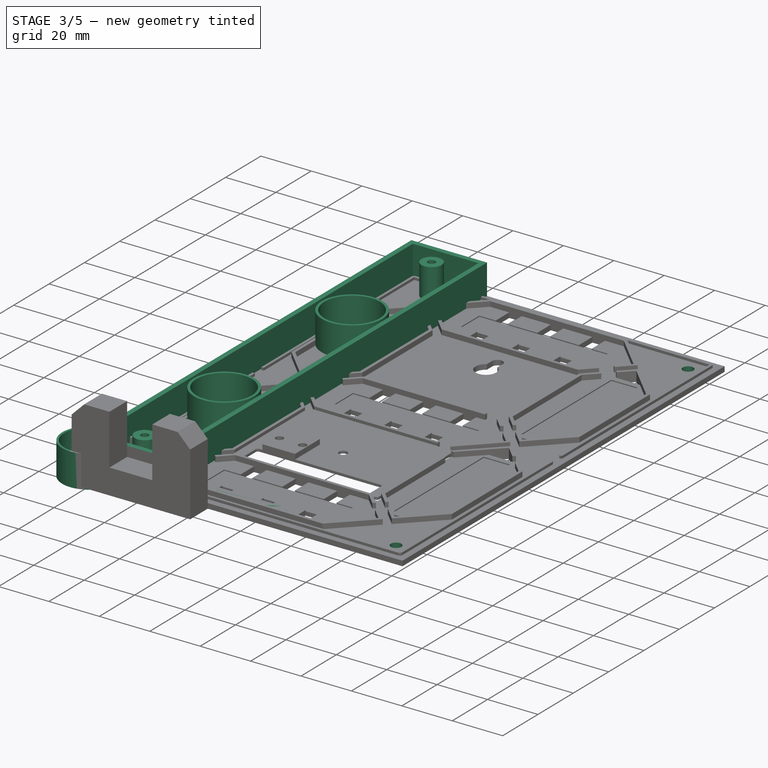
[diagram: stage 3 of 5 — iso view after this stage's code; geometry added in this stage tinted green]
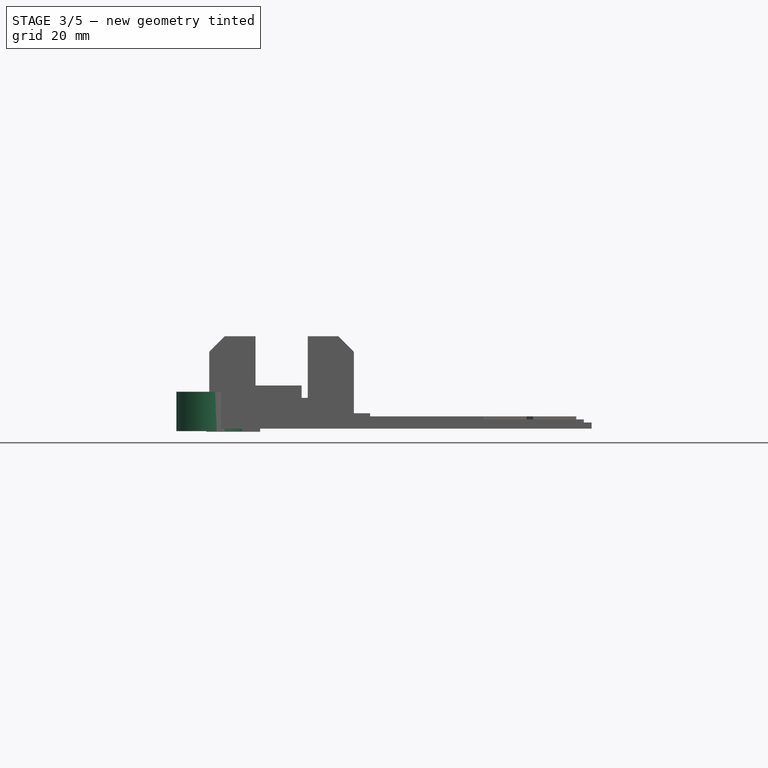
[diagram: stage 3 of 5 — front view after this stage's code; geometry added in this stage tinted green]
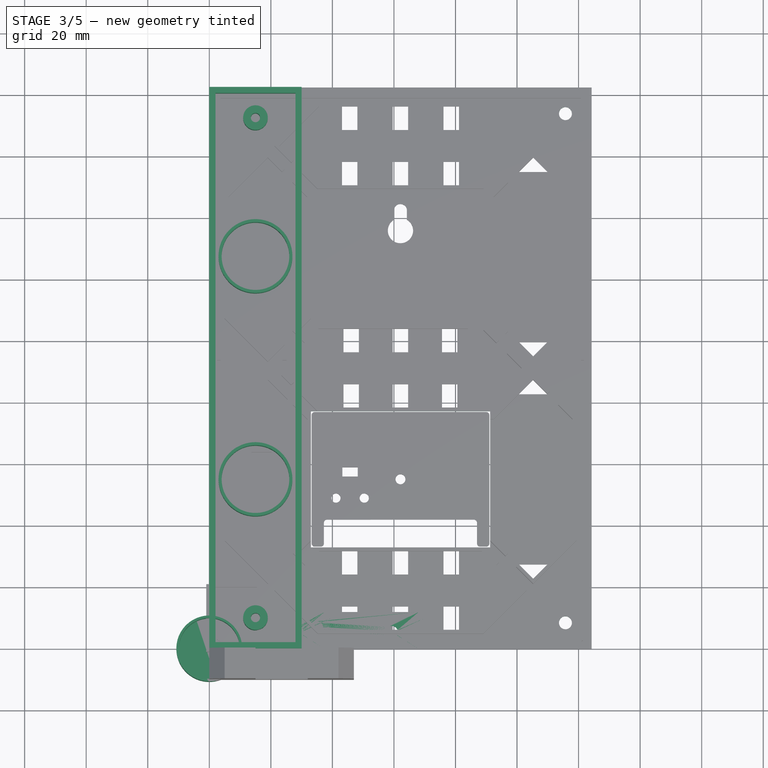
[diagram: stage 3 of 5 — top view after this stage's code; geometry added in this stage tinted green]
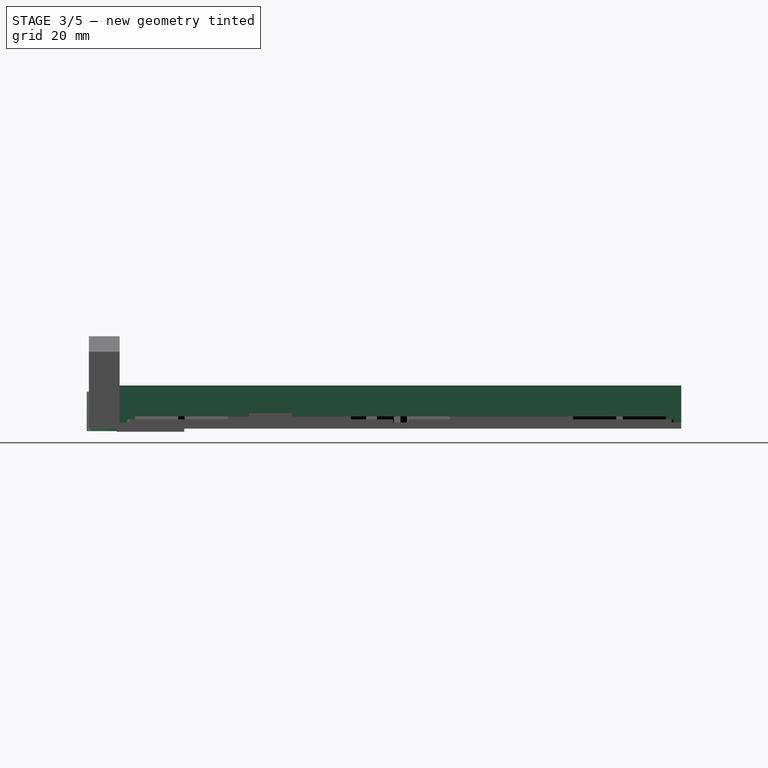
[diagram: stage 3 of 5 — right view after this stage's code; geometry added in this stage tinted green]
FEATURE [Sketcher::SketchObject] Sketch043
  MapMode = 5
  Placement = pos=(0,0,2) rot=(0,0,1;0rad)
  sketch-geometry (4):
    g0: LineSegment StartX=33 StartY=77.2426 StartZ=0 EndX=91.2426 EndY=77.2426 EndZ=0
    g1: LineSegment StartX=91.2426 StartY=77.2426 StartZ=0 EndX=91.2426 EndY=33 EndZ=0
    g2: LineSegment StartX=91.2426 StartY=33 StartZ=0 EndX=33 EndY=33 EndZ=0
    g3: LineSegment StartX=33 StartY=33 StartZ=0 EndX=33 EndY=77.2426 EndZ=0
  constraints (8):
    c: Coincident(g0,g1)
    c: Coincident(g1,g2)
    c: Coincident(g2,g3)
    c: Coincident(g3,g0)
    c: Horizontal(g0)
    c: Horizontal(g2)
    c: Vertical(g1)
    c: Vertical(g3)
FEATURE [PartDesign::Pocket] Pocket016
  BaseFeature = -> Pocket015
  Length = 5
  Length2 = 100
  Profile = -> Sketch043
  Type = 1
FEATURE [PartDesign::Fillet] Fillet003
  Base = -> Pocket016 [Edge471,Edge473,Edge580,Edge583]
  BaseFeature = -> Pocket016
  Radius = 1
FEATURE [Sketcher::SketchObject] Sketch049
  MapMode = 5
  Support = -> [XY_Plane007]
  sketch-geometry (4):
    g0: LineSegment StartX=0 StartY=0 StartZ=0 EndX=30 EndY=0 EndZ=0
    g1: LineSegment StartX=30 StartY=0 StartZ=0 EndX=30 EndY=182.49 EndZ=0
    g2: LineSegment StartX=30 StartY=182.49 StartZ=0 EndX=0 EndY=182.49 EndZ=0
    g3: LineSegment StartX=0 StartY=182.49 StartZ=0 EndX=0 EndY=0 EndZ=0
  constraints (11):
    c: Coincident(g0,g1)
    c: Coincident(g1,g2)
    c: Coincident(g2,g3)
    c: Coincident(g3,g0)
    c: Horizontal(g0)
    c: Horizontal(g2)
    c: Vertical(g1)
    c: Vertical(g3)
    c: Coincident(g0,g-1)
    c: DistanceY(g3,g3) = 182.49
    c: DistanceX(g2,g2) = 30
FEATURE [PartDesign::Pad] Pad014
  Length = 2
  Length2 = 100
  Profile = -> Sketch049
  Type = 0
FEATURE [Sketcher::SketchObject] Sketch050
  ExternalGeometry = -> [Pad014]
  MapMode = 5
  Placement = pos=(0,0,2) rot=(0,0,1;0rad)
  Support = -> [Pad014]
  sketch-geometry (13):
    g0: LineSegment StartX=9.8 StartY=136.49 StartZ=0 EndX=20.2 EndY=136.49 EndZ=0
    g1: LineSegment StartX=20.2 StartY=136.49 StartZ=0 EndX=20.2 EndY=118.49 EndZ=0
    g2: LineSegment StartX=20.2 StartY=118.49 StartZ=0 EndX=9.8 EndY=118.49 EndZ=0
    g3: LineSegment StartX=9.8 StartY=118.49 StartZ=0 EndX=9.8 EndY=136.49 EndZ=0
    g4: GeomPoint X=20.2 Y=127.49 Z=0
    g5: GeomPoint X=15 Y=136.49 Z=0
    g6: GeomPoint X=15 Y=182.49 Z=0
    g7: LineSegment StartX=9.8 StartY=64 StartZ=0 EndX=20.2 EndY=64 EndZ=0
    g8: LineSegment StartX=20.2 StartY=64 StartZ=0 EndX=20.2 EndY=46 EndZ=0
    g9: LineSegment StartX=20.2 StartY=46 StartZ=0 EndX=9.8 EndY=46 EndZ=0
    g10: LineSegment StartX=9.8 StartY=46 StartZ=0 EndX=9.8 EndY=64 EndZ=0
    g11: GeomPoint X=20.2 Y=55 Z=0
    g12: GeomPoint X=15 Y=64 Z=0
  constraints (29):
    c: Coincident(g0,g1)
    c: Coincident(g1,g2)
    c: Coincident(g2,g3)
    c: Coincident(g3,g0)
    c: Horizontal(g0)
    c: Horizontal(g2)
    c: Vertical(g1)
    c: Vertical(g3)
    c: DistanceX(g0,g0) = 10.4
    c: DistanceY(g3,g3) = 18
    c: Symmetric(g0,g1,g4)
    c: DistanceY(g4,g-3) = 55
    c: Symmetric(g0,g0,g5)
    c: Symmetric(g-4,g-4,g6)
    c: Vertical(g6,g5)
    c: Coincident(g7,g8)
    c: Coincident(g8,g9)
    c: Coincident(g9,g10)
    c: Coincident(g10,g7)
    c: Horizontal(g7)
    c: Horizontal(g9)
    c: Vertical(g8)
    c: Vertical(g10)
    c: Equal(g0,g7) = 10.4
    c: Equal(g3,g10) = 18
    c: Symmetric(g7,g8,g11)
    c: Symmetric(g7,g7,g12)
    c: Vertical(g12,g6)
    c: DistanceY(g-3,g11) = 55
FEATURE [PartDesign::Pocket] Pocket019
  BaseFeature = -> Pad014
  Length = 0.4
  Length2 = 100
  Profile = -> Sketch050
  Type = 0
FEATURE [Sketcher::SketchObject] Sketch051
  ExternalGeometry = -> [Pocket019]
  MapMode = 5
  Placement = pos=(0,0,2) rot=(0,0,1;0rad)
  Support = -> [Pocket019]
  sketch-geometry (9):
    g0: LineSegment StartX=0 StartY=182.49 StartZ=0 EndX=30 EndY=182.49 EndZ=0
    g1: LineSegment StartX=30 StartY=182.49 StartZ=0 EndX=30 EndY=0 EndZ=0
    g2: LineSegment StartX=30 StartY=0 StartZ=0 EndX=0 EndY=0 EndZ=0
    g3: LineSegment StartX=0 StartY=0 StartZ=0 EndX=0 EndY=182.49 EndZ=0
    g4: LineSegment StartX=2 StartY=180.49 StartZ=0 EndX=28 EndY=180.49 EndZ=0
    g5: LineSegment StartX=28 StartY=180.49 StartZ=0 EndX=28 EndY=2 EndZ=0
    g6: LineSegment StartX=28 StartY=2 StartZ=0 EndX=2 EndY=2 EndZ=0
    g7: LineSegment StartX=2 StartY=2 StartZ=0 EndX=2 EndY=180.49 EndZ=0
    g8: GeomPoint X=15 Y=182.49 Z=0
  constraints (23):
    c: Coincident(g0,g1)
    c: Coincident(g1,g2)
    c: Coincident(g2,g3)
    c: Coincident(g3,g0)
    c: Horizontal(g0)
    c: Horizontal(g2)
    c: Vertical(g1)
    c: Vertical(g3)
    c: Coincident(g0,g-3)
    c: Coincident(g1,g-4)
    c: Coincident(g4,g5)
    c: Coincident(g5,g6)
    c: Coincident(g6,g7)
    c: Coincident(g7,g4)
    c: Horizontal(g4)
    c: Horizontal(g6)
    c: Vertical(g5)
    c: Vertical(g7)
    c: DistanceX(g0,g4) = 2
    c: DistanceY(g4,g0) = 2
    c: DistanceY(g1,g5) = 2
    c: DistanceX(g5,g1) = 2
    c: Symmetric(g0,g0,g8)
FEATURE [PartDesign::Pad] Pad015
  BaseFeature = -> Pocket019
  Length = 12
  Length2 = 100
  Profile = -> Sketch051
  Type = 0
FEATURE [Sketcher::SketchObject] Sketch052
  ExternalGeometry = -> [Pad015]
  MapMode = 5
  Placement = pos=(0,0,2) rot=(0,0,1;0rad)
  Support = -> [Pad015]
  sketch-geometry (9):
    g0: GeomPoint X=15 Y=182.49 Z=0
    g1: Circle CenterX=15 CenterY=172.49 CenterZ=0 NormalX=0 NormalY=0 NormalZ=1 AngleXU=0 Radius=4
    g2: Circle CenterX=15 CenterY=172.49 CenterZ=0 NormalX=0 NormalY=0 NormalZ=1 AngleXU=0 Radius=1.5
    g3: Circle CenterX=15 CenterY=10 CenterZ=0 NormalX=0 NormalY=0 NormalZ=1 AngleXU=0 Radius=4
    g4: Circle CenterX=15 CenterY=10 CenterZ=0 NormalX=0 NormalY=0 NormalZ=1 AngleXU=0 Radius=1.5
    g5: Circle CenterX=15 CenterY=127.49 CenterZ=0 NormalX=0 NormalY=0 NormalZ=1 AngleXU=0 Radius=11
    g6: Circle CenterX=15 CenterY=127.49 CenterZ=0 NormalX=0 NormalY=0 NormalZ=1 AngleXU=0 Radius=12
    g7: Circle CenterX=15 CenterY=55 CenterZ=0 NormalX=0 NormalY=0 NormalZ=1 AngleXU=0 Radius=12
    g8: Circle CenterX=15 CenterY=55 CenterZ=0 NormalX=0 NormalY=0 NormalZ=1 AngleXU=0 Radius=11
  constraints (19):
    c: Symmetric(g-3,g-4,g0)
    c: Coincident(g2,g1)
    c: Radius(g2) = 1.5
    c: Radius(g1) = 4
    c: Vertical(g0,g1)
    c: DistanceY(g1,g-4) = 10
    c: Coincident(g4,g3)
    c: Equal(g2,g4) = 1.5
    c: Equal(g1,g3) = 6
    c: Vertical(g3,g0)
    c: DistanceY(g-4,g3) = 10
    c: Coincident(g6,g5)
    c: Radius(g5) = 11
    c: Radius(g6) = 12
    c: Symmetric(g-5,g-6,g5)
    c: Coincident(g7,g8)
    c: Equal(g5,g8) = 11
    c: Equal(g6,g7) = 12
    c: Symmetric(g-8,g-7,g7)
FEATURE [PartDesign::Pad] Pad016
  BaseFeature = -> Pad015
  Length = 12
  Length2 = 100
  Profile = -> Sketch052
  Type = 0
FEATURE [PartDesign::Body] Body008  label="Segment_Hor_Flat"
  Group = -> [Sketch058,Pad017,Thickness002]
  Origin = -> Origin008
  Placement = pos=(-117,-13,10) rot=(1,0,0;3.14159rad)
  Tip = -> Thickness002
FEATURE [Sketcher::SketchObject] Sketch059
  ExternalGeometry = -> [Pocket024]
  MapMode = 5
  Placement = pos=(0,0,0) rot=(1,0,0;3.14159rad)
  Support = -> [Pocket024]
  constraints (1):
    c: Radius(g-3) = 11
FEATURE [PartDesign::Body] Body007  label="MiddleTop"
  Group = -> [Sketch049,Pad014,Sketch050,Pocket019,Sketch051,Pad015,Sketch052,Pad016,Sketch054,Pocket021,Sketch055,Pocket022,Sketch056,Pocket023,Sketch057,Pocket024,Sketch059]
  Origin = -> Origin007
  Placement = pos=(180,0,0) rot=(0,0,1;0rad)
  Tip = -> Pocket024
FEATURE [Sketcher::SketchObject] Sketch060
  MapMode = 5
  Support = -> [XY_Plane009]
  sketch-geometry (1):
    g0: Circle CenterX=0 CenterY=0 CenterZ=0 NormalX=0 NormalY=0 NormalZ=1 AngleXU=0 Radius=9.9
  constraints (2):
    c: Coincident(g0,g-1)
    c: Radius(g0) = 9.9
FEATURE [PartDesign::Pad] Pad018
  Length = 12
  Length2 = 100
  Profile = -> Sketch060
  Type = 0
FEATURE [PartDesign::Thickness] Thickness003
  Base = -> Pad018 [Face3]
  BaseFeature = -> Pad018
  Join = 1
  Mode = 0
  Value = 0.8
FEATURE [PartDesign::Body] Body009  label="Dot"
  Group = -> [Sketch060,Pad018,Thickness003]
  Origin = -> Origin009
  Placement = pos=(-39,-66,0) rot=(0,0,1;0rad)
  Tip = -> Thickness003
FEATURE [Sketcher::SketchObject] Sketch061
  MapMode = 5
  Support = -> [XY_Plane010]
  sketch-geometry (7):
    g0: LineSegment StartX=0 StartY=0 StartZ=0 EndX=70 EndY=0 EndZ=0
    g1: LineSegment StartX=70 StartY=0 StartZ=0 EndX=70 EndY=12 EndZ=0
    g2: LineSegment StartX=70 StartY=12 StartZ=0 EndX=0 EndY=12 EndZ=0
    g3: LineSegment StartX=0 StartY=12 StartZ=0 EndX=0 EndY=0 EndZ=0
    g4: Circle CenterX=10.71 CenterY=5.49 CenterZ=0 NormalX=0 NormalY=0 NormalZ=1 AngleXU=0 Radius=2
    g5: Circle CenterX=35 CenterY=7 CenterZ=0 NormalX=0 NormalY=0 NormalZ=1 AngleXU=0 Radius=2
    g6: Circle CenterX=59.29 CenterY=5.49 CenterZ=0 NormalX=0 NormalY=0 NormalZ=1 AngleXU=0 Radius=2
  constraints (20):
    c: Coincident(g0,g1)
    c: Coincident(g1,g2)
    c: Coincident(g2,g3)
    c: Coincident(g3,g0)
    c: Horizontal(g0)
    c: Horizontal(g2)
    c: Vertical(g1)
    c: Vertical(g3)
    c: Coincident(g0,g-1)
    c: DistanceX(g2,g2) = 70
    c: DistanceY(g3,g3) = 12
    c: Radius(g5) = 2
    c: Radius(g4) = 2
    c: Radius(g6) = 2
    c: DistanceY(g4,g2) = 6.51
    c: DistanceY(g6,g1) = 6.51
    c: DistanceY(g5,g1) = 5
    c: DistanceX(g2,g5) = 35
    c: DistanceX(g2,g4) = 10.71
    c: DistanceX(g2,g6) = 59.29
FEATURE [PartDesign::Pad] Pad019
  Length = 2
  Length2 = 100
  Profile = -> Sketch061
  Type = 0
FEATURE [Sketcher::SketchObject] Sketch062
  MapMode = 5
  Support = -> [XY_Plane011]
  sketch-geometry (6):
    g0: LineSegment StartX=0 StartY=0 StartZ=0 EndX=39.42 EndY=0 EndZ=0
    g1: LineSegment StartX=39.42 StartY=0 StartZ=0 EndX=39.42 EndY=12 EndZ=0
    g2: LineSegment StartX=39.42 StartY=12 StartZ=0 EndX=0 EndY=12 EndZ=0
    g3: LineSegment StartX=0 StartY=12 StartZ=0 EndX=0 EndY=0 EndZ=0
    g4: Circle CenterX=10.71 CenterY=5.49 CenterZ=0 NormalX=0 NormalY=0 NormalZ=1 AngleXU=0 Radius=2
    g5: Circle CenterX=28.71 CenterY=5.49 CenterZ=0 NormalX=0 NormalY=0 NormalZ=1 AngleXU=0 Radius=2
  constraints (17):
    c: Coincident(g0,g1)
    c: Coincident(g1,g2)
    c: Coincident(g2,g3)
    c: Coincident(g3,g0)
    c: Horizontal(g0)
    c: Horizontal(g2)
    c: Vertical(g1)
    c: Vertical(g3)
    c: Coincident(g0,g-1)
    c: DistanceX(g2,g2) = 39.42
    c: DistanceY(g3,g3) = 12
    c: Radius(g4) = 2
    c: Radius(g5) = 2
    c: DistanceY(g4,g2) = 6.51
    c: DistanceY(g5,g1) = 6.51
    c: DistanceX(g2,g4) = 10.71
    c: DistanceX(g4,g5) = 18
FEATURE [PartDesign::Pad] Pad020
  Length = 2
  Length2 = 100
  Profile = -> Sketch062
  Type = 0
FEATURE [PartDesign::Fillet] Fillet004
  Base = -> Pad019 [Edge8,Edge1,Edge5,Edge2]
  BaseFeature = -> Pad019
  Radius = 2
FEATURE [PartDesign::Body] Body010  label="Attach_Large"
  Group = -> [Sketch061,Pad019,Fillet004]
  Origin = -> Origin010
  Placement = pos=(-51,-24,0) rot=(0,0,1;0rad)
  Tip = -> Fillet004
FEATURE [PartDesign::Fillet] Fillet005
  Base = -> Pad020 [Edge2,Edge5,Edge1,Edge8]
  BaseFeature = -> Pad020
  Radius = 2
FEATURE [PartDesign::Body] Body011  label="Attach_Small"
  Group = -> [Sketch062,Pad020,Fillet005]
  Origin = -> Origin011
  Placement = pos=(-51,-44,0) rot=(0,0,1;0rad)
  Tip = -> Fillet005
FEATURE [Sketcher::SketchObject] Sketch063
  ExternalGeometry = -> [Fillet003]
  MapMode = 5
  Placement = pos=(0,0,2) rot=(0,0,1;0rad)
  Support = -> [Fillet003]
  sketch-geometry (4):
    g0: Circle CenterX=8.51623 CenterY=173.974 CenterZ=0 NormalX=0 NormalY=0 NormalZ=1 AngleXU=0 Radius=2.1
    g1: Circle CenterX=115.731 CenterY=173.981 CenterZ=0 NormalX=0 NormalY=0 NormalZ=1 AngleXU=0 Radius=2.1
    g2: Circle CenterX=115.731 CenterY=8.50884 CenterZ=0 NormalX=0 NormalY=0 NormalZ=1 AngleXU=0 Radius=2.1
    g3: Circle CenterX=8.50884 CenterY=8.50884 CenterZ=0 NormalX=0 NormalY=0 NormalZ=1 AngleXU=0 Radius=2.1
  constraints (8):
    c: Coincident(g0,g-4)
    c: Radius(g0) = 2.1
    c: Coincident(g1,g-3)
    c: Radius(g1) = 2.1
    c: Coincident(g2,g-6)
    c: Coincident(g3,g-5)
    c: Radius(g3) = 2.1
    c: Radius(g2) = 2.1
FEATURE [PartDesign::Pocket] Pocket025
  BaseFeature = -> Fillet003
  Length = 5
  Length2 = 100
  Profile = -> Sketch063
  Type = 1
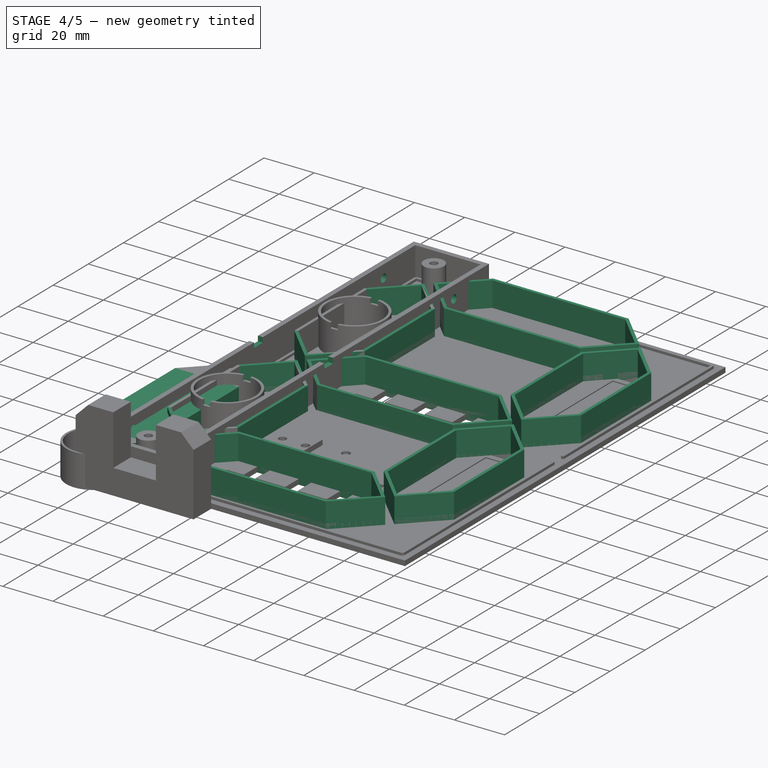
[diagram: stage 4 of 5 — iso view after this stage's code; geometry added in this stage tinted green]
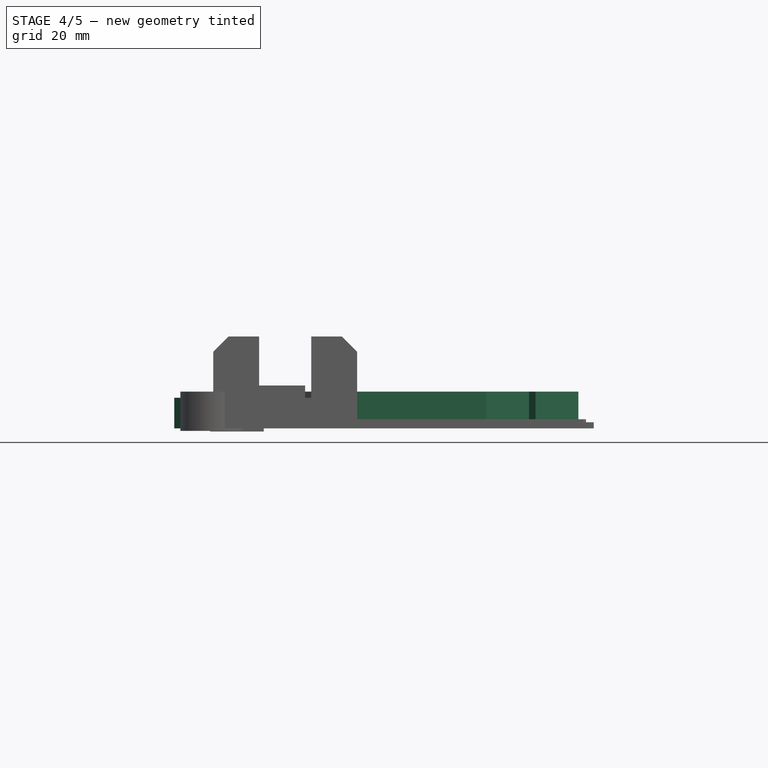
[diagram: stage 4 of 5 — front view after this stage's code; geometry added in this stage tinted green]
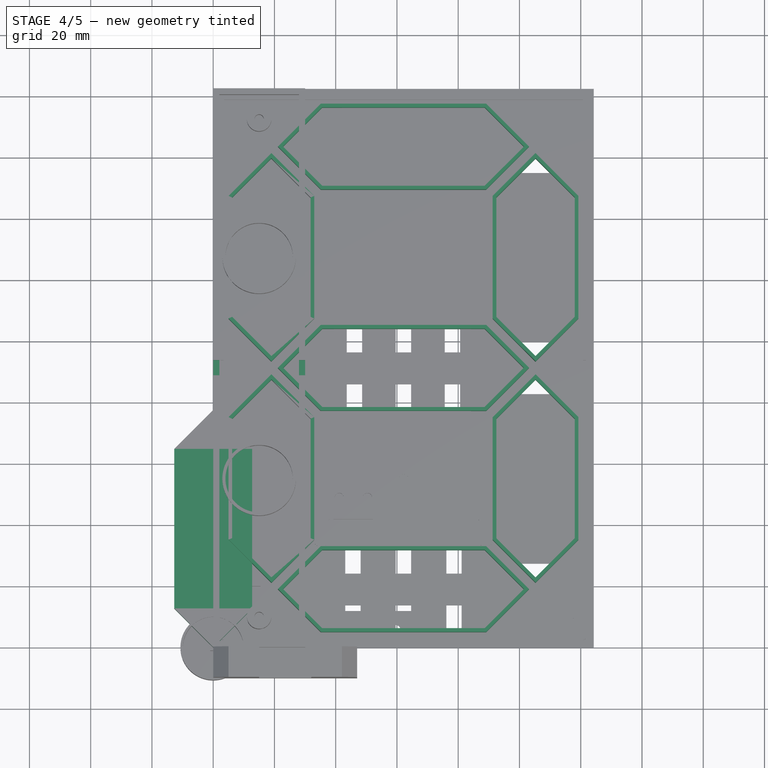
[diagram: stage 4 of 5 — top view after this stage's code; geometry added in this stage tinted green]
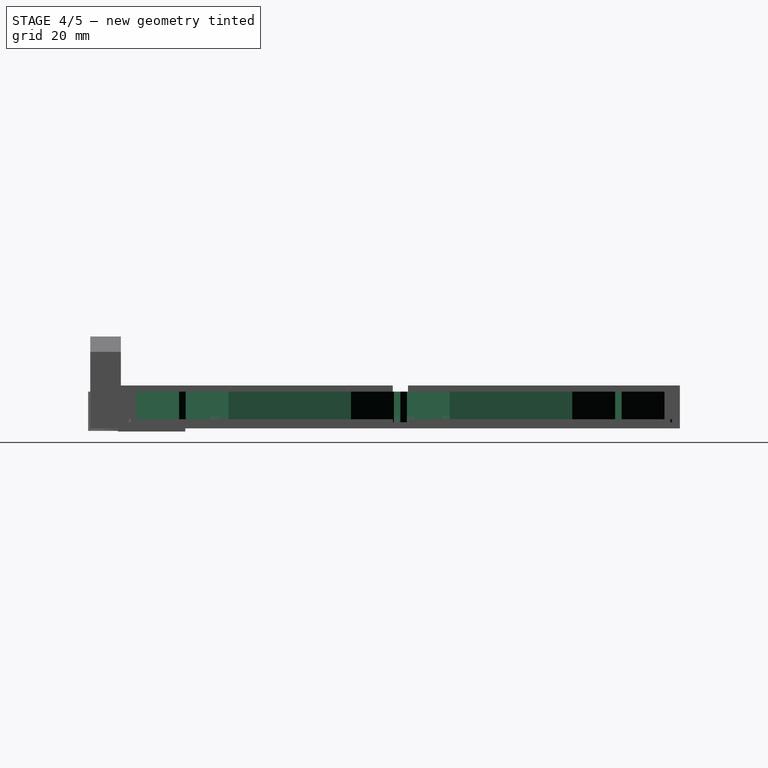
[diagram: stage 4 of 5 — right view after this stage's code; geometry added in this stage tinted green]
FEATURE [Sketcher::SketchObject] Sketch026
  MapMode = 5
  Support = -> [XY_Plane001]
  sketch-geometry (4):
    g0: LineSegment StartX=0 StartY=0 StartZ=0 EndX=124.24 EndY=0 EndZ=0
    g1: LineSegment StartX=124.24 StartY=0 StartZ=0 EndX=124.24 EndY=182.49 EndZ=0
    g2: LineSegment StartX=124.24 StartY=182.49 StartZ=0 EndX=0 EndY=182.49 EndZ=0
    g3: LineSegment StartX=0 StartY=182.49 StartZ=0 EndX=0 EndY=0 EndZ=0
  constraints (11):
    c: Coincident(g0,g1)
    c: Coincident(g1,g2)
    c: Coincident(g2,g3)
    c: Coincident(g3,g0)
    c: Horizontal(g0)
    c: Horizontal(g2)
    c: Vertical(g1)
    c: Vertical(g3)
    c: Coincident(g0,g-1)
    c: DistanceY(g3,g3) = 182.49
    c: DistanceX(g2,g2) = 124.24
FEATURE [PartDesign::Pad] Pad003
  Length = 2
  Length2 = 100
  Profile = -> Sketch026
  Type = 0
FEATURE [Sketcher::SketchObject] Sketch027  label="Segments001"
  ExternalGeometry = -> [Pad003]
  MapMode = 5
  Placement = pos=(0,0,2) rot=(0,0,1;0rad)
  Support = -> [Pad003]
  sketch-geometry (107):
    g0: LineSegment StartX=5 StartY=35.1213 StartZ=0 EndX=19 EndY=21.1213 EndZ=0
    g1: LineSegment StartX=19 StartY=21.1213 StartZ=0 EndX=33 EndY=35.1213 EndZ=0
    g2: LineSegment StartX=33 StartY=35.1213 StartZ=0 EndX=33 EndY=75.1213 EndZ=0
    g3: LineSegment StartX=33 StartY=75.1213 StartZ=0 EndX=19 EndY=89.1213 EndZ=0
    g4: LineSegment StartX=19 StartY=89.1213 StartZ=0 EndX=5 EndY=75.1213 EndZ=0
    g5: LineSegment StartX=5 StartY=75.1213 StartZ=0 EndX=5 EndY=35.1213 EndZ=0
    g6: LineSegment StartX=21.1213 StartY=19 StartZ=0 EndX=35.1213 EndY=5 EndZ=0
    g7: LineSegment StartX=35.1213 StartY=5 StartZ=0 EndX=89.1213 EndY=5 EndZ=0
    g8: LineSegment StartX=89.1213 StartY=5 StartZ=0 EndX=103.121 EndY=19 EndZ=0
    g9: LineSegment StartX=103.121 StartY=19 StartZ=0 EndX=89.1213 EndY=33 EndZ=0
    g10: LineSegment StartX=89.1213 StartY=33 StartZ=0 EndX=35.1213 EndY=33 EndZ=0
    g11: LineSegment StartX=35.1213 StartY=33 StartZ=0 EndX=21.1213 EndY=19 EndZ=0
    g12: LineSegment [constr] StartX=19 StartY=21.1213 StartZ=0 EndX=21.1213 EndY=19 EndZ=0
    g13: LineSegment [constr] StartX=19 StartY=89.1213 StartZ=0 EndX=21.1213 EndY=91.2426 EndZ=0
    g14: LineSegment [constr] StartX=21.1213 StartY=91.2426 StartZ=0 EndX=19 EndY=93.364 EndZ=0
    g15: LineSegment StartX=19 StartY=161.364 StartZ=0 EndX=5 EndY=147.364 EndZ=0
    g16: LineSegment StartX=33 StartY=147.364 StartZ=0 EndX=19 EndY=161.364 EndZ=0
    g17: LineSegment StartX=5 StartY=147.364 StartZ=0 EndX=5 EndY=107.364 EndZ=0
    g18: LineSegment StartX=33 StartY=107.364 StartZ=0 EndX=33 EndY=147.364 EndZ=0
    g19: LineSegment StartX=19 StartY=93.364 StartZ=0 EndX=33 EndY=107.364 EndZ=0
    g20: LineSegment StartX=5 StartY=107.364 StartZ=0 EndX=19 EndY=93.364 EndZ=0
    g21: LineSegment [constr] StartX=19 StartY=161.364 StartZ=0 EndX=21.1213 EndY=163.485 EndZ=0
    g22: LineSegment [constr] StartX=21.1213 StartY=163.485 StartZ=0 EndX=19 EndY=165.607 EndZ=0
    g23: LineSegment StartX=35.1213 StartY=105.243 StartZ=0 EndX=21.1213 EndY=91.2426 EndZ=0
    g24: LineSegment StartX=89.1213 StartY=105.243 StartZ=0 EndX=35.1213 EndY=105.243 EndZ=0
    g25: LineSegment StartX=21.1213 StartY=91.2426 StartZ=0 EndX=35.1213 EndY=77.2426 EndZ=0
    g26: LineSegment StartX=35.1213 StartY=77.2426 StartZ=0 EndX=89.1213 EndY=77.2426 EndZ=0
    g27: LineSegment StartX=89.1213 StartY=77.2426 StartZ=0 EndX=103.121 EndY=91.2426 EndZ=0
    g28: LineSegment StartX=103.121 StartY=91.2426 StartZ=0 EndX=89.1213 EndY=105.243 EndZ=0
    g29: LineSegment StartX=35.1213 StartY=149.485 StartZ=0 EndX=89.1213 EndY=149.485 EndZ=0
    g30: LineSegment StartX=21.1213 StartY=163.485 StartZ=0 EndX=35.1213 EndY=149.485 EndZ=0
    g31: LineSegment StartX=35.1213 StartY=177.485 StartZ=0 EndX=21.1213 EndY=163.485 EndZ=0
    g32: LineSegment StartX=89.1213 StartY=177.485 StartZ=0 EndX=35.1213 EndY=177.485 EndZ=0
    g33: LineSegment StartX=103.121 StartY=163.485 StartZ=0 EndX=89.1213 EndY=177.485 EndZ=0
    g34: LineSegment StartX=89.1213 StartY=149.485 StartZ=0 EndX=103.121 EndY=163.485 EndZ=0
    g35: LineSegment StartX=105.243 StartY=161.364 StartZ=0 EndX=91.2426 EndY=147.364 EndZ=0
    g36: LineSegment StartX=91.2426 StartY=147.364 StartZ=0 EndX=91.2426 EndY=107.364 EndZ=0
    g37: LineSegment StartX=119.243 StartY=147.364 StartZ=0 EndX=105.243 EndY=161.364 EndZ=0
    g38: LineSegment StartX=119.243 StartY=107.364 StartZ=0 EndX=119.243 EndY=147.364 EndZ=0
    g39: LineSegment StartX=105.243 StartY=93.364 StartZ=0 EndX=119.243 EndY=107.364 EndZ=0
    g40: LineSegment StartX=91.2426 StartY=107.364 StartZ=0 EndX=105.243 EndY=93.364 EndZ=0
    g41: LineSegment [constr] StartX=103.121 StartY=91.2426 StartZ=0 EndX=105.243 EndY=93.364 EndZ=0
    g42: LineSegment [constr] StartX=103.121 StartY=91.2426 StartZ=0 EndX=105.243 EndY=89.1213 EndZ=0
    g43: LineSegment StartX=105.243 StartY=89.1213 StartZ=0 EndX=91.2426 EndY=75.1213 EndZ=0
    g44: LineSegment StartX=119.243 StartY=75.1213 StartZ=0 EndX=105.243 EndY=89.1213 EndZ=0
    g45: LineSegment StartX=119.243 StartY=35.1213 StartZ=0 EndX=119.243 EndY=75.1213 EndZ=0
    g46: LineSegment StartX=91.2426 StartY=75.1213 StartZ=0 EndX=91.2426 EndY=35.1213 EndZ=0
    g47: LineSegment StartX=91.2426 StartY=35.1213 StartZ=0 EndX=105.243 EndY=21.1213 EndZ=0
    g48: LineSegment StartX=105.243 StartY=21.1213 StartZ=0 EndX=119.243 EndY=35.1213 EndZ=0
    g49: LineSegment StartX=6.2 StartY=74.6243 StartZ=0 EndX=19 EndY=87.4243 EndZ=0
    g50: LineSegment StartX=19 StartY=87.4243 StartZ=0 EndX=31.8 EndY=74.6243 EndZ=0
    g51: LineSegment StartX=31.8 StartY=74.6243 StartZ=0 EndX=31.8 EndY=35.6184 EndZ=0
    g52: LineSegment StartX=31.8 StartY=35.6184 StartZ=0 EndX=19 EndY=22.8184 EndZ=0
    g53: LineSegment StartX=19 StartY=22.8184 StartZ=0 EndX=6.2 EndY=35.6184 EndZ=0
    g54: LineSegment StartX=6.2 StartY=35.6184 StartZ=0 EndX=6.2 EndY=74.6243 EndZ=0
    g55: LineSegment [constr] StartX=5.35147 StartY=34.7698 StartZ=0 EndX=6.2 EndY=35.6184 EndZ=0
    g56: LineSegment [constr] StartX=5.35147 StartY=75.4728 StartZ=0 EndX=6.2 EndY=74.6243 EndZ=0
    g57: LineSegment StartX=92.4426 StartY=35.6143 StartZ=0 EndX=105.243 EndY=22.8143 EndZ=0
    g58: LineSegment StartX=105.243 StartY=22.8143 StartZ=0 EndX=118.043 EndY=35.6143 EndZ=0
    g59: LineSegment StartX=105.243 StartY=87.4243 StartZ=0 EndX=92.4426 EndY=74.6243 EndZ=0
    g60: LineSegment StartX=118.043 StartY=74.6243 StartZ=0 EndX=105.243 EndY=87.4243 EndZ=0
    g61: LineSegment StartX=92.4426 StartY=74.6243 StartZ=0 EndX=92.4426 EndY=35.6143 EndZ=0
    g62: LineSegment StartX=118.043 StartY=74.6243 StartZ=0 EndX=118.043 EndY=35.6143 EndZ=0
    g63: LineSegment [constr] StartX=32.6485 StartY=147.715 StartZ=0 EndX=31.8 EndY=146.867 EndZ=0
    g64: LineSegment [constr] StartX=33 StartY=146.867 StartZ=0 EndX=31.8 EndY=146.867 EndZ=0
    g65: LineSegment StartX=92.4426 StartY=107.857 StartZ=0 EndX=105.243 EndY=95.0569 EndZ=0
    g66: LineSegment StartX=105.243 StartY=95.0569 StartZ=0 EndX=118.043 EndY=107.857 EndZ=0
    g67: LineSegment StartX=105.243 StartY=159.667 StartZ=0 EndX=92.4426 EndY=146.867 EndZ=0
    g68: LineSegment StartX=118.043 StartY=146.867 StartZ=0 EndX=105.243 EndY=159.667 EndZ=0
    g69: LineSegment StartX=92.4426 StartY=146.867 StartZ=0 EndX=92.4426 EndY=107.857 EndZ=0
    g70: LineSegment StartX=118.043 StartY=146.867 StartZ=0 EndX=118.043 EndY=107.857 EndZ=0
    g71: LineSegment [constr] StartX=106.091 StartY=88.2728 StartZ=0 EndX=105.243 EndY=87.4243 EndZ=0
    g72: LineSegment [constr] StartX=91.2426 StartY=35.6143 StartZ=0 EndX=92.4426 EndY=35.6143 EndZ=0
    g73: LineSegment [constr] StartX=118.891 StartY=147.715 StartZ=0 EndX=118.043 EndY=146.867 EndZ=0
    g74: LineSegment [constr] StartX=91.2426 StartY=107.857 StartZ=0 EndX=92.4426 EndY=107.857 EndZ=0
    g75: LineSegment StartX=19 StartY=159.667 StartZ=0 EndX=6.2 EndY=146.867 EndZ=0
    g76: LineSegment StartX=31.8 StartY=146.867 StartZ=0 EndX=19 EndY=159.667 EndZ=0
    g77: LineSegment StartX=6.2 StartY=146.867 StartZ=0 EndX=6.2 EndY=107.861 EndZ=0
    g78: LineSegment StartX=6.2 StartY=107.861 StartZ=0 EndX=19 EndY=95.061 EndZ=0
    g79: LineSegment StartX=19 StartY=95.061 StartZ=0 EndX=31.8 EndY=107.861 EndZ=0
    g80: LineSegment StartX=31.8 StartY=146.867 StartZ=0 EndX=31.8 EndY=107.861 EndZ=0
    g81: LineSegment [constr] StartX=33 StartY=107.364 StartZ=0 EndX=32.1515 EndY=108.212 EndZ=0
    g82: LineSegment [constr] StartX=5 StartY=107.364 StartZ=0 EndX=5.84853 EndY=108.212 EndZ=0
    g83: LineSegment StartX=88.6243 StartY=6.2 StartZ=0 EndX=101.424 EndY=19 EndZ=0
    g84: LineSegment StartX=101.424 StartY=19 StartZ=0 EndX=88.6243 EndY=31.8 EndZ=0
    g85: LineSegment StartX=88.6243 StartY=31.8 StartZ=0 EndX=35.6184 EndY=31.8 EndZ=0
    g86: LineSegment StartX=35.6184 StartY=31.8 StartZ=0 EndX=22.8184 EndY=19 EndZ=0
    g87: LineSegment StartX=22.8184 StartY=19 StartZ=0 EndX=35.6184 EndY=6.2 EndZ=0
    g88: LineSegment StartX=35.6184 StartY=6.2 StartZ=0 EndX=88.6243 EndY=6.2 EndZ=0
    g89: LineSegment StartX=88.6284 StartY=78.4426 StartZ=0 EndX=101.428 EndY=91.2426 EndZ=0
    g90: LineSegment StartX=101.428 StartY=91.2426 StartZ=0 EndX=88.6284 EndY=104.043 EndZ=0
    g91: LineSegment StartX=88.6284 StartY=104.043 StartZ=0 EndX=35.6184 EndY=104.043 EndZ=0
    g92: LineSegment StartX=35.6184 StartY=104.043 StartZ=0 EndX=22.8184 EndY=91.2426 EndZ=0
    g93: LineSegment StartX=22.8184 StartY=91.2426 StartZ=0 EndX=35.6184 EndY=78.4426 EndZ=0
    g94: LineSegment StartX=35.6184 StartY=78.4426 StartZ=0 EndX=88.6284 EndY=78.4426 EndZ=0
    g95: LineSegment [constr] StartX=34.7698 StartY=32.6485 StartZ=0 EndX=35.6184 EndY=31.8 EndZ=0
    g96: LineSegment [constr] StartX=102.273 StartY=19.8485 StartZ=0 EndX=101.424 EndY=19 EndZ=0
    g97: LineSegment StartX=88.6284 StartY=150.685 StartZ=0 EndX=101.428 EndY=163.485 EndZ=0
    g98: LineSegment StartX=101.428 StartY=163.485 StartZ=0 EndX=88.6284 EndY=176.285 EndZ=0
    g99: LineSegment StartX=88.6284 StartY=176.285 StartZ=0 EndX=35.6184 EndY=176.285 EndZ=0
    g100: LineSegment StartX=35.6184 StartY=176.285 StartZ=0 EndX=22.8184 EndY=163.485 EndZ=0
    g101: LineSegment StartX=22.8184 StartY=163.485 StartZ=0 EndX=35.6184 EndY=150.685 EndZ=0
    g102: LineSegment StartX=35.6184 StartY=150.685 StartZ=0 EndX=88.6284 EndY=150.685 EndZ=0
    g103: LineSegment [constr] StartX=35.1213 StartY=77.2426 StartZ=0 EndX=35.9698 EndY=78.0912 EndZ=0
    g104: LineSegment [constr] StartX=35.1213 StartY=105.243 StartZ=0 EndX=35.1213 EndY=104.043 EndZ=0
    g105: LineSegment [constr] StartX=35.1213 StartY=149.485 StartZ=0 EndX=35.9698 EndY=150.334 EndZ=0
    g106: LineSegment [constr] StartX=35.1213 StartY=149.485 StartZ=0 EndX=35.1213 EndY=150.685 EndZ=0
  constraints (315):
    c: Coincident(g1,g0)
    c: Coincident(g2,g1)
    c: Vertical(g2)
    c: Coincident(g3,g2)
    c: Coincident(g4,g3)
    c: Coincident(g5,g4)
    c: Coincident(g5,g0)
    c: Vertical(g5)
    c: DistanceX(g-1,g0) = 5
    c: DistanceX(g0,g0) = 14
    c: DistanceY(g0,g0) = 14
    c: DistanceX(g0,g1) = 14
    c: DistanceY(g0,g4) = 40
    c: Equal(g5,g2)
    c: DistanceX(g4,g3) = 14
    c: DistanceY(g4,g3) = 14
    c: Horizontal(g0,g1)
    c: Coincident(g7,g6)
    c: Horizontal(g7)
    c: Coincident(g8,g7)
    c: Coincident(g9,g8)
    c: Coincident(g10,g9)
    c: Horizontal(g10)
    c: Coincident(g11,g10)
    c: Coincident(g11,g6)
    c: DistanceX(g6,g10) = 14
    c: DistanceX(g6,g6) = 14
    c: DistanceX(g9,g8) = 14
    c: DistanceX(g7,g8) = 14
    c: DistanceY(g6,g10) = 14
    c: DistanceY(g6,g6) = 14
    c: DistanceY(g8,g9) = 14
    c: DistanceX(g10,g10) = 54
    c: Coincident(g12,g0)
    c: Coincident(g12,g6)
    c: Distance(g12) = 3
    c: Angle(g12,g1) = 1.5708
    c: Coincident(g13,g3)
    c: Coincident(g14,g13)
    c: Distance(g13) = 3
    c: Distance(g14) = 3
    c: Angle(g3,g13) = 1.5708
    c: Angle(g14,g13) = 1.5708
    c: Coincident(g19,g20)
    c: Coincident(g18,g19)
    c: Vertical(g18)
    c: Coincident(g16,g18)
    c: Coincident(g15,g16)
    c: Coincident(g17,g15)
    c: Coincident(g17,g20)
    c: Vertical(g17)
    c: DistanceX(g20,g20) = 14
    c: DistanceY(g20,g20) = 14
    c: DistanceX(g20,g19) = 14
    c: DistanceY(g20,g15) = 40
    c: Equal(g17,g18)
    c: DistanceX(g15,g16) = 14
    c: DistanceY(g15,g16) = 14
    c: Horizontal(g20,g19)
    c: Coincident(g14,g19)
    c: Coincident(g22,g21)
    c: Distance(g21) = 3
    c: Distance(g22) = 3
    c: Angle(g22,g21) = 1.5708
    c: Coincident(g21,g15)
    c: Angle(g16,g21) = 1.5708
    c: Coincident(g26,g25)
    c: Horizontal(g26)
    c: Coincident(g27,g26)
    c: Coincident(g28,g27)
    c: Coincident(g24,g28)
    c: Horizontal(g24)
    c: Coincident(g23,g24)
    c: Coincident(g23,g25)
    c: DistanceX(g25,g24) = 14
    c: DistanceX(g25,g25) = 14
    c: DistanceX(g28,g27) = 14
    c: DistanceX(g26,g27) = 14
    c: DistanceY(g25,g24) = 14
    c: DistanceY(g25,g25) = 14
    c: DistanceY(g27,g28) = 14
    c: DistanceX(g24,g24) = 54
    c: Coincident(g23,g13)
    c: Coincident(g29,g30)
    c: Horizontal(g29)
    c: Coincident(g34,g29)
    c: Coincident(g33,g34)
    c: Coincident(g32,g33)
    c: Horizontal(g32)
    c: Coincident(g31,g32)
    c: Coincident(g31,g30)
    c: DistanceX(g30,g32) = 14
    c: DistanceX(g30,g30) = 14
    c: DistanceX(g33,g34) = 14
    c: DistanceX(g29,g34) = 14
    c: DistanceY(g30,g32) = 14
    c: DistanceY(g30,g30) = 14
    c: DistanceY(g34,g33) = 14
    c: DistanceX(g32,g32) = 54
    c: Coincident(g21,g30)
    c: Coincident(g39,g40)
    c: Coincident(g38,g39)
    c: Vertical(g38)
    c: Coincident(g37,g38)
    c: Coincident(g35,g37)
    c: Coincident(g36,g35)
    c: Coincident(g36,g40)
    c: Vertical(g36)
    c: DistanceX(g40,g40) = 14
    c: DistanceY(g40,g40) = 14
    c: DistanceX(g40,g39) = 14
    c: DistanceY(g40,g35) = 40
    c: Equal(g36,g38)
    c: DistanceX(g35,g37) = 14
    c: DistanceY(g35,g37) = 14
    c: Horizontal(g40,g39)
    c: Coincident(g41,g27)
    c: Coincident(g42,g27)
    c: Distance(g41) = 3
    c: Distance(g42) = 3
    c: Angle(g42,g41) = 1.5708
    c: Angle(g27,g42) = 1.5708
    c: Coincident(g39,g41)
    c: Coincident(g48,g47)
    c: Coincident(g45,g48)
    c: Vertical(g45)
    c: Coincident(g44,g45)
    c: Coincident(g43,g44)
    c: Coincident(g46,g43)
    c: Coincident(g46,g47)
    c: Vertical(g46)
    c: DistanceX(g47,g47) = 14
    c: DistanceY(g47,g47) = 14
    c: DistanceX(g47,g48) = 14
    c: DistanceY(g47,g43) = 40
    c: Equal(g46,g45)
    c: DistanceX(g43,g44) = 14
    c: DistanceY(g43,g44) = 14
    c: Horizontal(g47,g48)
    c: Coincident(g43,g42)
    c: DistanceY(g-1,g6) = 5
    c: Parallel(g4,g49)
    c: Coincident(g50,g49)
    c: Coincident(g51,g50)
    c: Vertical(g51)
    c: Coincident(g52,g51)
    c: Coincident(g53,g52)
    c: Coincident(g54,g53)
    c: Coincident(g54,g49)
    c: Parallel(g5,g54)
    c: Parallel(g0,g53)
    c: Parallel(g1,g52)
    c: Parallel(g3,g50)
    c: DistanceX(g0,g52) = 14
    c: DistanceX(g0,g49) = 14
    c: Equal(g54,g51)
    c: DistanceX(g-1,g53) = 6.2
    c: PointOnObject(g55,g0)
    c: Angle(g0,g55) = 1.5708
    c: Distance(g55) = 1.2
    c: PointOnObject(g56,g4)
    c: Angle(g56,g4) = 1.5708
    c: Distance(g56) = 1.2
    c: Coincident(g55,g53)
    c: Coincident(g49,g56)
    c: Coincident(g58,g57)
    c: DistanceY(g57,g57) = 12.8
    c: DistanceX(g57,g58) = 12.8
    c: Horizontal(g57,g58)
    c: Perpendicular(g58,g57)
    c: Coincident(g59,g60)
    c: DistanceX(g59,g60) = 12.8
    c: DistanceY(g59,g60) = 12.8
    c: Perpendicular(g60,g59)
    c: Equal(g59,g60)
    c: Coincident(g61,g59)
    c: Coincident(g61,g57)
    c: Vertical(g61)
    c: Coincident(g62,g60)
    c: Coincident(g62,g58)
    c: PointOnObject(g63,g16)
    c: Perpendicular(g63,g16)
    c: Distance(g63) = 1.2
    c: PointOnObject(g64,g18)
    c: Perpendicular(g64,g18)
    c: Distance(g64) = 1.2
    c: Distance(g61) = 39.01
    c: Coincident(g66,g65)
    c: Equal(g57,g65) = 12.8
    c: DistanceX(g65,g66) = 12.8
    c: Horizontal(g65,g66)
    c: Perpendicular(g66,g65)
    c: Coincident(g67,g68)
    c: DistanceX(g67,g68) = 12.8
    c: DistanceY(g67,g68) = 12.8
    c: Perpendicular(g68,g67)
    c: Equal(g67,g68)
    c: Coincident(g69,g67)
    c: Coincident(g69,g65)
    c: Vertical(g69)
    c: Coincident(g70,g68)
    c: Coincident(g70,g66)
    c: Equal(g61,g69) = 39.01
    c: PointOnObject(g71,g44)
    c: PointOnObject(g72,g46)
    c: Perpendicular(g72,g46)
    c: Distance(g72) = 1.2
    c: Perpendicular(g71,g44)
    c: Distance(g71) = 1.2
    c: PointOnObject(g73,g37)
    c: PointOnObject(g74,g36)
    c: Perpendicular(g74,g36)
    c: Perpendicular(g73,g37)
    c: Distance(g73) = 1.2
    c: Distance(g74) = 1.2
    c: Coincident(g73,g68)
    c: Coincident(g74,g65)
    c: Coincident(g72,g57)
    c: Coincident(g71,g59)
    c: Coincident(g79,g78)
    c: DistanceX(g78,g79) = 12.8
    c: Horizontal(g78,g79)
    c: Perpendicular(g79,g78)
    c: Coincident(g75,g76)
    c: DistanceX(g75,g76) = 12.8
    c: DistanceY(g75,g76) = 12.8
    c: Perpendicular(g76,g75)
    c: Equal(g75,g76)
    c: Coincident(g77,g75)
    c: Coincident(g77,g78)
    c: Vertical(g77)
    c: Coincident(g80,g76)
    c: Coincident(g80,g79)
    c: Coincident(g80,g63)
    c: Coincident(g64,g76)
    c: PointOnObject(g81,g79)
    c: Perpendicular(g81,g19)
    c: Distance(g81) = 1.2
    c: Coincident(g81,g18)
    c: PointOnObject(g82,g78)
    c: Perpendicular(g82,g20)
    c: Distance(g82) = 1.2
    c: Coincident(g82,g17)
    c: Coincident(g88,g87)
    c: Horizontal(g88)
    c: Coincident(g83,g88)
    c: Coincident(g84,g83)
    c: Coincident(g85,g84)
    c: Horizontal(g85)
    c: Coincident(g86,g85)
    c: Coincident(g86,g87)
    c: DistanceX(g87,g85) = 12.8
    c: DistanceX(g87,g87) = 12.8
    c: DistanceX(g84,g83) = 12.8
    c: DistanceX(g88,g83) = 12.8
    c: DistanceY(g87,g85) = 12.8
    c: DistanceY(g87,g87) = 12.8
    c: DistanceY(g83,g84) = 12.8
    c: Coincident(g94,g93)
    c: Horizontal(g94)
    c: Coincident(g89,g94)
    c: Coincident(g90,g89)
    c: Coincident(g91,g90)
    c: Horizontal(g91)
    c: Coincident(g92,g91)
    c: Coincident(g92,g93)
    c: DistanceX(g93,g91) = 12.8
    c: DistanceX(g93,g93) = 12.8
    c: DistanceX(g90,g89) = 12.8
    c: DistanceX(g94,g89) = 12.8
    c: DistanceY(g93,g91) = 12.8
    c: DistanceY(g93,g93) = 12.8
    c: DistanceY(g89,g90) = 12.8
    c: DistanceX(g91,g91) = 53.01
    c: Horizontal(g6,g86)
    c: PointOnObject(g95,g11)
    c: Perpendicular(g95,g11)
    c: Distance(g95) = 1.2
    c: PointOnObject(g96,g9)
    c: Perpendicular(g96,g9)
    c: Distance(g96) = 1.2
    c: Coincident(g95,g85)
    c: Coincident(g96,g83)
    c: Coincident(g102,g101)
    c: Horizontal(g102)
    c: Coincident(g97,g102)
    c: Coincident(g98,g97)
    c: Coincident(g99,g98)
    c: Horizontal(g99)
    c: Coincident(g100,g99)
    c: Coincident(g100,g101)
    c: DistanceX(g101,g99) = 12.8
    c: DistanceX(g101,g101) = 12.8
    c: DistanceX(g98,g97) = 12.8
    c: DistanceX(g102,g97) = 12.8
    c: DistanceY(g101,g99) = 12.8
    c: DistanceY(g101,g101) = 12.8
    c: DistanceY(g97,g98) = 12.8
    c: DistanceX(g99,g99) = 53.01
    c: PointOnObject(g103,g93)
    c: Perpendicular(g103,g25)
    c: Distance(g103) = 1.2
    c: PointOnObject(g104,g91)
    c: Perpendicular(g24,g104)
    c: Distance(g104) = 1.2
    c: Coincident(g104,g23)
    c: Coincident(g103,g25)
    c: Coincident(g105,g29)
    c: PointOnObject(g105,g101)
    c: Perpendicular(g105,g30)
    c: Distance(g105) = 1.2
    c: Coincident(g106,g29)
    c: PointOnObject(g106,g102)
    c: Perpendicular(g106,g29)
    c: Distance(g106) = 1.2
FEATURE [PartDesign::Pad] Pad002
  BaseFeature = -> Pad003
  Length = 10
  Length2 = 100
  Profile = -> Sketch027
  Type = 0
  expr: Length = Spreadsheet.ExtrudeSegmentsHeight
FEATURE [PartDesign::Pocket] Pocket
  BaseFeature = -> Pad002
  Length = 5
  Length2 = 100
  Profile = -> Pad002 [Face102]
  Type = 1
FEATURE [PartDesign::Pocket] Pocket001
  BaseFeature = -> Pocket
  Length = 5
  Length2 = 100
  Profile = -> Pocket [Face109]
  Type = 1
FEATURE [PartDesign::Pocket] Pocket002
  BaseFeature = -> Pocket001
  Length = 5
  Length2 = 100
  Profile = -> Pocket001 [Face111]
  Type = 1
FEATURE [PartDesign::Pocket] Pocket003
  BaseFeature = -> Pocket002
  Length = 5
  Length2 = 100
  Profile = -> Pocket002 [Face119]
  Type = 1
FEATURE [PartDesign::Pocket] Pocket004
  BaseFeature = -> Pocket003
  Length = 5
  Length2 = 100
  Profile = -> Pocket003 [Face122]
  Type = 1
FEATURE [Sketcher::SketchObject] Sketch054
  MapMode = 5
  Placement = pos=(30,0,0) rot=(0.57735,0.57735,0.57735;2.0944rad)
  sketch-geometry (2):
    g0: Circle CenterX=20 CenterY=9 CenterZ=0 NormalX=0 NormalY=0 NormalZ=1 AngleXU=0 Radius=1.6
    g1: Circle CenterX=162.49 CenterY=9 CenterZ=0 NormalX=0 NormalY=0 NormalZ=1 AngleXU=0 Radius=1.6
  constraints (2):
    c: Radius(g0) = 1.6
    c: Radius(g1) = 1.6
FEATURE [PartDesign::Pocket] Pocket021
  BaseFeature = -> Pad016
  Length = 5
  Length2 = 100
  Profile = -> Sketch054
  Type = 1
FEATURE [Sketcher::SketchObject] Sketch055
  ExternalGeometry = -> [Pocket021]
  MapMode = 5
  Placement = pos=(0,0,14) rot=(0,0,1;0rad)
  Support = -> [Pocket021]
  sketch-geometry (5):
    g0: LineSegment StartX=0 StartY=93.745 StartZ=0 EndX=30 EndY=93.745 EndZ=0
    g1: LineSegment StartX=30 StartY=93.745 StartZ=0 EndX=30 EndY=88.745 EndZ=0
    g2: LineSegment StartX=30 StartY=88.745 StartZ=0 EndX=0 EndY=88.745 EndZ=0
    g3: LineSegment StartX=0 StartY=88.745 StartZ=0 EndX=0 EndY=93.745 EndZ=0
    g4: GeomPoint X=30 Y=91.245 Z=0
  constraints (12):
    c: Coincident(g0,g1)
    c: Coincident(g1,g2)
    c: Coincident(g2,g3)
    c: Coincident(g3,g0)
    c: Horizontal(g0)
    c: Horizontal(g2)
    c: Vertical(g1)
    c: Vertical(g3)
    c: Vertical(g0,g-4)
    c: DistanceY(g3,g3) = 5
    c: Symmetric(g0,g1,g4)
    c: Symmetric(g-3,g-3,g4)
FEATURE [PartDesign::Pocket] Pocket022
  BaseFeature = -> Pocket021
  Length = 2
  Length2 = 100
  Profile = -> Sketch055
  Type = 0
FEATURE [Sketcher::SketchObject] Sketch056
  ExternalGeometry = -> [Pocket022]
  MapMode = 5
  Placement = pos=(0,0,14) rot=(0,0,1;0rad)
  Support = -> [Pocket022]
  sketch-geometry (6):
    g0: LineSegment StartX=13.5 StartY=140.932 StartZ=0 EndX=16.5 EndY=140.932 EndZ=0
    g1: LineSegment StartX=16.5 StartY=140.932 StartZ=0 EndX=16.5 EndY=40.9323 EndZ=0
    g2: LineSegment StartX=16.5 StartY=40.9323 StartZ=0 EndX=13.5 EndY=40.9323 EndZ=0
    g3: LineSegment StartX=13.5 StartY=40.9323 StartZ=0 EndX=13.5 EndY=140.932 EndZ=0
    g4: GeomPoint X=15 Y=140.932 Z=0
    g5: GeomPoint X=15 Y=136.49 Z=0
  constraints (13):
    c: Coincident(g0,g1)
    c: Coincident(g1,g2)
    c: Coincident(g2,g3)
    c: Coincident(g3,g0)
    c: Horizontal(g0)
    c: Horizontal(g2)
    c: Vertical(g1)
    c: Vertical(g3)
    c: DistanceX(g0,g0) = 3
    c: Symmetric(g0,g0,g4)
    c: Symmetric(g-3,g-3,g5)
    c: Vertical(g5,g4)
    c: DistanceY(g1,g1) = 100
FEATURE [PartDesign::Pocket] Pocket023
  BaseFeature = -> Pocket022
  Length = 2
  Length2 = 100
  Profile = -> Sketch056
  Type = 0
FEATURE [Sketcher::SketchObject] Sketch057
  ExternalGeometry = -> [Pocket023]
  MapMode = 5
  Placement = pos=(0,0,2) rot=(0,0,1;0rad)
  Support = -> [Pocket023]
  sketch-geometry (2):
    g0: Circle CenterX=15 CenterY=127.49 CenterZ=0 NormalX=0 NormalY=0 NormalZ=1 AngleXU=0 Radius=11
    g1: Circle CenterX=15 CenterY=55 CenterZ=0 NormalX=0 NormalY=0 NormalZ=1 AngleXU=0 Radius=11
  constraints (4):
    c: Coincident(g0,g-3)
    c: PointOnObject(g-3,g0)
    c: Coincident(g1,g-4)
    c: PointOnObject(g-4,g1)
FEATURE [PartDesign::Pocket] Pocket024
  BaseFeature = -> Pocket023
  Length = 5
  Length2 = 100
  Profile = -> Sketch057
  Type = 1
FEATURE [Sketcher::SketchObject] Sketch058
  MapMode = 5
  Support = -> [XY_Plane008]
  sketch-geometry (6):
    g0: LineSegment StartX=0 StartY=0 StartZ=0 EndX=12.7 EndY=12.7 EndZ=0
    g1: LineSegment StartX=12.7 StartY=12.7 StartZ=0 EndX=12.7 EndY=64.8 EndZ=0
    g2: LineSegment StartX=12.7 StartY=64.8 StartZ=0 EndX=0 EndY=77.5 EndZ=0
    g3: LineSegment StartX=0 StartY=77.5 StartZ=0 EndX=-12.7 EndY=64.8 EndZ=0
    g4: LineSegment StartX=-12.7 StartY=64.8 StartZ=0 EndX=-12.7 EndY=12.7 EndZ=0
    g5: LineSegment StartX=-12.7 StartY=12.7 StartZ=0 EndX=0 EndY=0 EndZ=0
  constraints (17):
    c: Coincident(g0,g-1)
    c: Coincident(g1,g0)
    c: Vertical(g1)
    c: Coincident(g2,g1)
    c: Coincident(g3,g2)
    c: Coincident(g4,g3)
    c: Vertical(g4)
    c: Coincident(g5,g4)
    c: Coincident(g5,g0)
    c: Perpendicular(g2,g3)
    c: DistanceY(g1,g2) = 12.7
    c: DistanceY(g0,g0) = 12.7
    c: Distance(g4) = 52.1
    c: Horizontal(g3,g1)
    c: Horizontal(g4,g0)
    c: Vertical(g0,g2)
    c: DistanceX(g2,g1) = 12.7
FEATURE [PartDesign::Pad] Pad017
  Length = 10
  Length2 = 100
  Profile = -> Sketch058
  Type = 0
FEATURE [PartDesign::Thickness] Thickness002
  Base = -> Pad017 [Face7]
  BaseFeature = -> Pad017
  Join = 1
  Mode = 0
  Reversed = true
  Value = 0.8
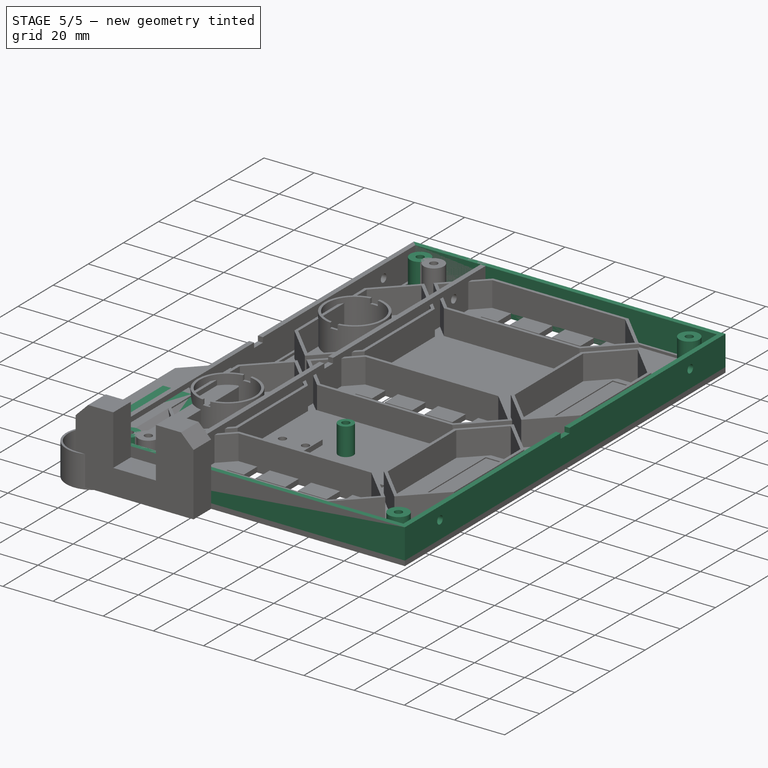
[diagram: stage 5 of 5 — iso view after this stage's code; geometry added in this stage tinted green]
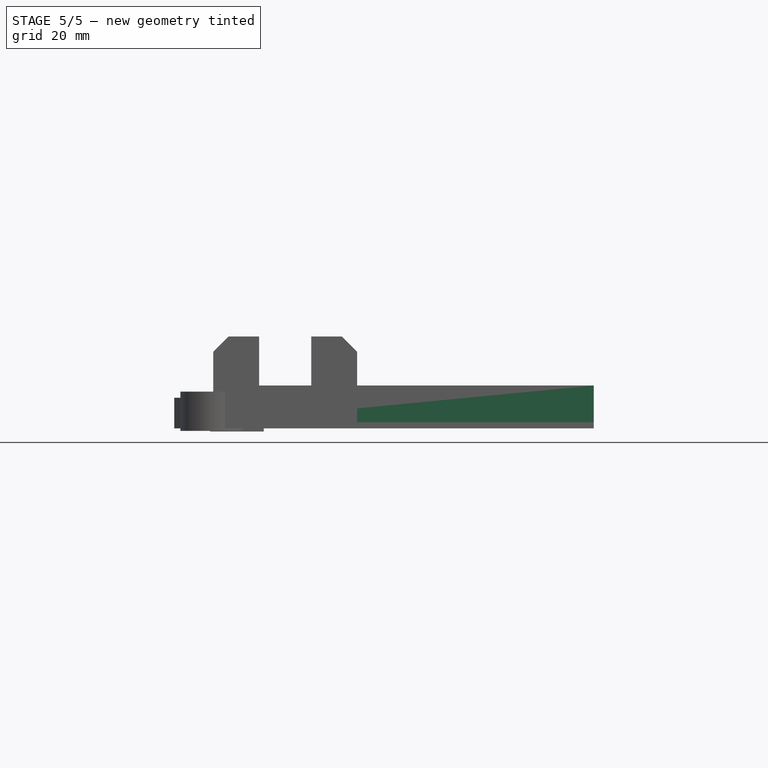
[diagram: stage 5 of 5 — front view after this stage's code; geometry added in this stage tinted green]
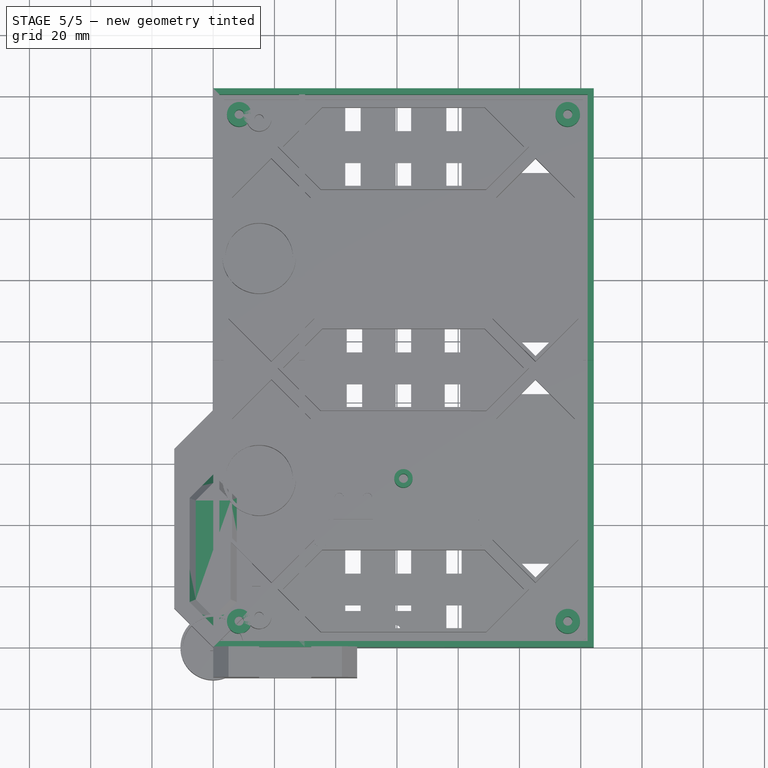
[diagram: stage 5 of 5 — top view after this stage's code; geometry added in this stage tinted green]
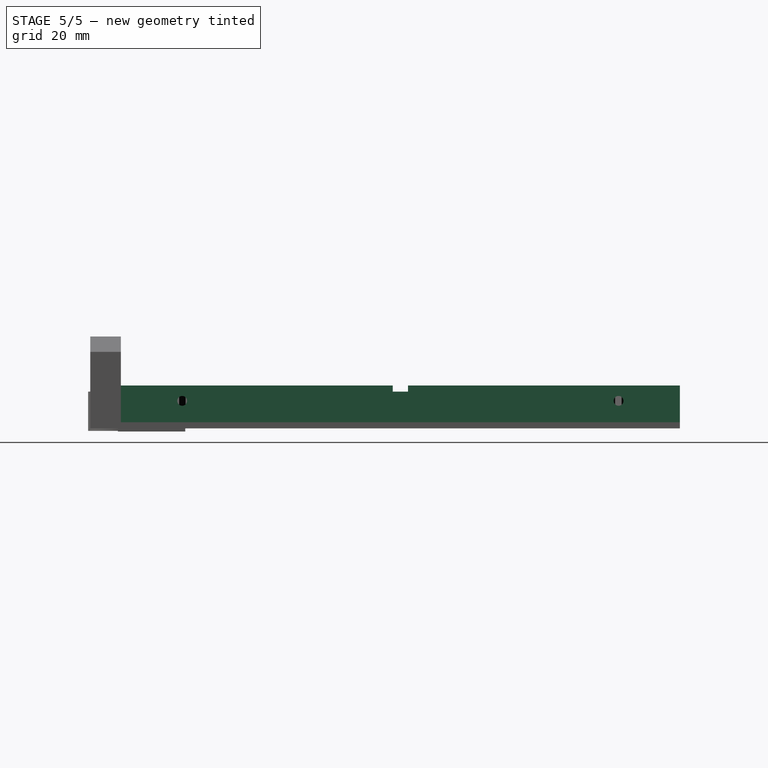
[diagram: stage 5 of 5 — right view after this stage's code; geometry added in this stage tinted green]
FEATURE [PartDesign::Pocket] Pocket005
  BaseFeature = -> Pocket004
  Length = 5
  Length2 = 100
  Profile = -> Pocket004 [Face129]
  Type = 1
FEATURE [PartDesign::Pocket] Pocket006
  BaseFeature = -> Pocket005
  Length = 5
  Length2 = 100
  Profile = -> Pocket005 [Face134]
  Type = 1
FEATURE [Spreadsheet::Sheet] Spreadsheet
  cells = A1=Top; D1=Segment; A2=ExtrudeSegmentsHeight; B2(ExtrudeSegmentsHeight)==10mm
FEATURE [Sketcher::SketchObject] Sketch028
  ExternalGeometry = -> [Pocket006]
  MapMode = 5
  Placement = pos=(0,0,2) rot=(0,0,1;0rad)
  Support = -> [Pocket006]
  sketch-geometry (8):
    g0: LineSegment StartX=0 StartY=182.49 StartZ=0 EndX=124.24 EndY=182.49 EndZ=0
    g1: LineSegment StartX=124.24 StartY=182.49 StartZ=0 EndX=124.24 EndY=0 EndZ=0
    g2: LineSegment StartX=124.24 StartY=0 StartZ=0 EndX=0 EndY=0 EndZ=0
    g3: LineSegment StartX=0 StartY=0 StartZ=0 EndX=0 EndY=182.49 EndZ=0
    g4: LineSegment StartX=2 StartY=180.49 StartZ=0 EndX=122.24 EndY=180.49 EndZ=0
    g5: LineSegment StartX=122.24 StartY=180.49 StartZ=0 EndX=122.24 EndY=2 EndZ=0
    g6: LineSegment StartX=122.24 StartY=2 StartZ=0 EndX=2 EndY=2 EndZ=0
    g7: LineSegment StartX=2 StartY=2 StartZ=0 EndX=2 EndY=180.49 EndZ=0
  constraints (22):
    c: Coincident(g0,g1)
    c: Coincident(g1,g2)
    c: Coincident(g2,g3)
    c: Coincident(g3,g0)
    c: Horizontal(g0)
    c: Horizontal(g2)
    c: Vertical(g1)
    c: Vertical(g3)
    c: Coincident(g0,g-3)
    c: Coincident(g1,g-4)
    c: Coincident(g4,g5)
    c: Coincident(g5,g6)
    c: Coincident(g6,g7)
    c: Coincident(g7,g4)
    c: Horizontal(g4)
    c: Horizontal(g6)
    c: Vertical(g5)
    c: Vertical(g7)
    c: DistanceX(g0,g4) = 2
    c: DistanceX(g4,g0) = 2
    c: DistanceY(g4,g0) = 2
    c: DistanceY(g1,g5) = 2
FEATURE [PartDesign::Pad] Pad004
  BaseFeature = -> Pocket006
  Length = 12
  Length2 = 100
  Profile = -> Sketch028
  Type = 0
  expr: Length = Spreadsheet.ExtrudeSegmentsHeight + 2mm
FEATURE [Sketcher::SketchObject] Sketch029
  ExternalGeometry = -> [Pad004]
  MapMode = 5
  Placement = pos=(0,0,2) rot=(0,0,1;0rad)
  Support = -> [Pad004]
  sketch-geometry (16):
    g0: Circle CenterX=8.48528 CenterY=174.005 CenterZ=0 NormalX=0 NormalY=0 NormalZ=1 AngleXU=0 Radius=4
    g1: Circle CenterX=8.48528 CenterY=174.005 CenterZ=0 NormalX=0 NormalY=0 NormalZ=1 AngleXU=0 Radius=1.5
    g2: LineSegment [constr] StartX=0 StartY=182.49 StartZ=0 EndX=8.48528 EndY=174.005 EndZ=0
    g3: GeomPoint X=62.12 Y=182.49 Z=0
    g4: LineSegment [constr] StartX=62.12 StartY=182.49 StartZ=0 EndX=62.12 EndY=172.49 EndZ=0
    g5: Circle CenterX=115.755 CenterY=174.005 CenterZ=0 NormalX=0 NormalY=0 NormalZ=1 AngleXU=0 Radius=4
    g6: Circle CenterX=115.755 CenterY=174.005 CenterZ=0 NormalX=0 NormalY=0 NormalZ=1 AngleXU=0 Radius=1.5
    g7: LineSegment [constr] StartX=124.24 StartY=182.49 StartZ=0 EndX=115.755 EndY=174.005 EndZ=0
    g8: LineSegment [constr] StartX=0 StartY=182.49 StartZ=0 EndX=0 EndY=0 EndZ=0
    g9: LineSegment [constr] StartX=0 StartY=91.245 StartZ=0 EndX=10 EndY=91.245 EndZ=0
    g10: Circle CenterX=8.48528 CenterY=8.48528 CenterZ=0 NormalX=0 NormalY=0 NormalZ=1 AngleXU=0 Radius=4
    g11: Circle CenterX=8.48528 CenterY=8.48528 CenterZ=0 NormalX=0 NormalY=0 NormalZ=1 AngleXU=0 Radius=1.5
    g12: LineSegment [constr] StartX=0 StartY=0 StartZ=0 EndX=8.48528 EndY=8.48528 EndZ=0
    g13: Circle CenterX=115.755 CenterY=8.48528 CenterZ=0 NormalX=0 NormalY=0 NormalZ=1 AngleXU=0 Radius=4
    g14: Circle CenterX=115.755 CenterY=8.48528 CenterZ=0 NormalX=0 NormalY=0 NormalZ=1 AngleXU=0 Radius=1.5
    g15: LineSegment [constr] StartX=124.24 StartY=0 StartZ=0 EndX=115.755 EndY=8.48528 EndZ=0
  constraints (32):
    c: Coincident(g1,g0)
    c: Radius(g0) = 4
    c: Radius(g1) = 1.5
    c: Coincident(g2,g-3)
    c: Coincident(g2,g0)
    c: Angle(g2,g-3) = 0.785398
    c: Distance(g-3) = 124.24
    c: Distance(g2) = 12
    c: Symmetric(g2,g-3,g3)
    c: Coincident(g4,g3)
    c: Vertical(g4)
    c: Coincident(g6,g5)
    c: Radius(g5) = 4
    c: Radius(g6) = 1.5
    c: Coincident(g7,g5)
    c: Distance(g7) = 12
    c: Distance(g4) = 10
    c: Coincident(g8,g2)
    c: Coincident(g8,g-1)
    c: Horizontal(g9)
    c: Distance(g9) = 10
    c: Symmetric(g2,g-1,g9)
    c: Coincident(g11,g10)
    c: Radius(g10) = 4
    c: Radius(g11) = 1.5
    c: Coincident(g12,g10)
    c: Distance(g12) = 12
    c: Coincident(g14,g13)
    c: Radius(g13) = 4
    c: Radius(g14) = 1.5
    c: Coincident(g15,g13)
    c: Distance(g15) = 12
FEATURE [PartDesign::Pad] Pad005
  BaseFeature = -> Pad004
  Length = 12
  Length2 = 100
  Profile = -> Sketch029
  Type = 0
  expr: Length = Spreadsheet.ExtrudeSegmentsHeight + 2mm
FEATURE [Sketcher::SketchObject] Sketch030
  ExternalGeometry = -> [Pad005]
  MapMode = 5
  Placement = pos=(124.24,0,0) rot=(0.57735,0.57735,0.57735;2.0944rad)
  Support = -> [Pad005]
  sketch-geometry (2):
    g0: Circle CenterX=20 CenterY=9 CenterZ=0 NormalX=0 NormalY=0 NormalZ=1 AngleXU=0 Radius=1.6
    g1: Circle CenterX=162.49 CenterY=9 CenterZ=0 NormalX=0 NormalY=0 NormalZ=1 AngleXU=0 Radius=1.6
  constraints (6):
    c: Radius(g0) = 1.6
    c: Radius(g1) = 1.6
    c: DistanceX(g-3,g0) = 20
    c: DistanceY(g0,g-3) = 5
    c: DistanceY(g1,g-3) = 5
    c: DistanceX(g1,g-3) = 20
FEATURE [PartDesign::Pocket] Pocket007
  BaseFeature = -> Pad005
  Length = 2
  Length2 = 100
  Profile = -> Sketch030
  Type = 0
FEATURE [Sketcher::SketchObject] Sketch031
  ExternalGeometry = -> [Pocket007]
  MapMode = 5
  Placement = pos=(0,0,0) rot=(0.57735,-0.57735,-0.57735;2.0944rad)
  Support = -> [Pocket007]
  sketch-geometry (2):
    g0: Circle CenterX=-162.49 CenterY=9 CenterZ=0 NormalX=0 NormalY=0 NormalZ=1 AngleXU=0 Radius=1.6
    g1: Circle CenterX=-20 CenterY=9 CenterZ=0 NormalX=0 NormalY=0 NormalZ=1 AngleXU=0 Radius=1.6
  constraints (6):
    c: Radius(g0) = 1.6
    c: Equal(g0,g1)
    c: DistanceX(g-3,g0) = 20
    c: DistanceY(g0,g-3) = 5
    c: DistanceY(g1,g-3) = 5
    c: DistanceX(g1,g-3) = 20
FEATURE [PartDesign::Pocket] Pocket008
  BaseFeature = -> Pocket007
  Length = 2
  Length2 = 100
  Profile = -> Sketch031
  Type = 0
FEATURE [Sketcher::SketchObject] Sketch037
  ExternalGeometry = -> [Pocket008]
  MapMode = 5
  Placement = pos=(0,0,14) rot=(0,0,1;0rad)
  Support = -> [Pocket008]
  sketch-geometry (12):
    g0: LineSegment StartX=124.24 StartY=93.745 StartZ=0 EndX=122.24 EndY=93.745 EndZ=0
    g1: LineSegment StartX=122.24 StartY=93.745 StartZ=0 EndX=122.24 EndY=88.745 EndZ=0
    g2: LineSegment StartX=122.24 StartY=88.745 StartZ=0 EndX=124.24 EndY=88.745 EndZ=0
    g3: LineSegment StartX=124.24 StartY=88.745 StartZ=0 EndX=124.24 EndY=93.745 EndZ=0
    g4: GeomPoint X=124.24 Y=91.245 Z=0
    g5: GeomPoint X=122.24 Y=91.245 Z=0
    g6: LineSegment StartX=2 StartY=93.745 StartZ=0 EndX=0 EndY=93.745 EndZ=0
    g7: LineSegment StartX=0 StartY=93.745 StartZ=0 EndX=0 EndY=88.745 EndZ=0
    g8: LineSegment StartX=0 StartY=88.745 StartZ=0 EndX=2 EndY=88.745 EndZ=0
    g9: LineSegment StartX=2 StartY=88.745 StartZ=0 EndX=2 EndY=93.745 EndZ=0
    g10: GeomPoint X=2 Y=91.245 Z=0
    g11: GeomPoint X=-1e-16 Y=91.245 Z=0
  constraints (26):
    c: Coincident(g0,g1)
    c: Coincident(g1,g2)
    c: Coincident(g2,g3)
    c: Coincident(g3,g0)
    c: Horizontal(g0)
    c: Horizontal(g2)
    c: Vertical(g1)
    c: Vertical(g3)
    c: DistanceX(g0,g0) = 2
    c: DistanceY(g3,g3) = 5
    c: Symmetric(g0,g2,g4)
    c: Symmetric(g0,g1,g5)
    c: Symmetric(g-3,g-3,g4)
    c: Coincident(g6,g7)
    c: Coincident(g7,g8)
    c: Coincident(g8,g9)
    c: Coincident(g9,g6)
    c: Horizontal(g6)
    c: Horizontal(g8)
    c: Vertical(g7)
    c: Vertical(g9)
    c: Equal(g0,g6) = 5
    c: Equal(g3,g9) = 5
    c: Symmetric(g6,g8,g10)
    c: Symmetric(g6,g7,g11)
    c: Symmetric(g-4,g-1,g11)
FEATURE [PartDesign::Pocket] Pocket014
  BaseFeature = -> Pocket008
  Length = 2
  Length2 = 100
  Profile = -> Sketch037
  Type = 0
FEATURE [Sketcher::SketchObject] Sketch038
  ExternalGeometry = -> [Pocket014]
  MapMode = 5
  Placement = pos=(0,0,12) rot=(0,0,1;0rad)
  Support = -> [Pocket014]
  sketch-geometry (14):
    g0: LineSegment StartX=6.2 StartY=74.6243 StartZ=0 EndX=6.2 EndY=35.6184 EndZ=0
    g1: LineSegment StartX=6.2 StartY=35.6184 StartZ=0 EndX=19 EndY=22.8184 EndZ=0
    g2: LineSegment StartX=19 StartY=22.8184 StartZ=0 EndX=31.8 EndY=35.6184 EndZ=0
    g3: LineSegment StartX=31.8 StartY=35.6184 StartZ=0 EndX=31.8 EndY=74.6243 EndZ=0
    g4: LineSegment StartX=31.8 StartY=74.6243 StartZ=0 EndX=19 EndY=87.4243 EndZ=0
    g5: LineSegment StartX=19 StartY=87.4243 StartZ=0 EndX=6.2 EndY=74.6243 EndZ=0
    g6: LineSegment StartX=19 StartY=86.8586 StartZ=0 EndX=6.6 EndY=74.4586 EndZ=0
    g7: LineSegment StartX=31.4 StartY=74.4586 StartZ=0 EndX=19 EndY=86.8586 EndZ=0
    g8: LineSegment StartX=6.6 StartY=74.4586 StartZ=0 EndX=6.6 EndY=35.6184 EndZ=0
    g9: LineSegment StartX=31.4 StartY=74.4586 StartZ=0 EndX=31.4 EndY=35.6184 EndZ=0
    g10: LineSegment StartX=6.6 StartY=35.6184 StartZ=0 EndX=19 EndY=23.2184 EndZ=0
    g11: LineSegment StartX=19 StartY=23.2184 StartZ=0 EndX=31.4 EndY=35.6184 EndZ=0
    g12: LineSegment [constr] StartX=6.2 StartY=74.6243 StartZ=0 EndX=6.48284 EndY=74.3414 EndZ=0
    g13: LineSegment [constr] StartX=6.2 StartY=74.6243 StartZ=0 EndX=6.6 EndY=74.6243 EndZ=0
  constraints (36):
    c: Coincident(g0,g-8)
    c: Coincident(g0,g-8)
    c: Coincident(g1,g0)
    c: Coincident(g1,g-7)
    c: Coincident(g2,g1)
    c: Coincident(g2,g-6)
    c: Coincident(g3,g2)
    c: Coincident(g3,g-5)
    c: Coincident(g4,g3)
    c: Coincident(g4,g-4)
    c: Coincident(g5,g4)
    c: Coincident(g5,g0)
    c: Coincident(g6,g7)
    c: Coincident(g8,g6)
    c: Perpendicular(g7,g6)
    c: Vertical(g8)
    c: Angle(g0,g6) = 2.35619
    c: Equal(g6,g7)
    c: Coincident(g9,g7)
    c: Vertical(g9)
    c: Coincident(g10,g8)
    c: Coincident(g11,g10)
    c: Coincident(g11,g9)
    c: Perpendicular(g11,g10)
    c: Vertical(g6,g10)
    c: DistanceY(g1,g10) = 0.4
    c: Vertical(g4,g6)
    c: Equal(g10,g11)
    c: PointOnObject(g12,g6)
    c: Perpendicular(g12,g5)
    c: Distance(g12) = 0.4
    c: Coincident(g13,g0)
    c: PointOnObject(g13,g8)
    c: Horizontal(g13)
    c: DistanceX(g13,g13) = 0.4
    c: Coincident(g0,g12)
FEATURE [Sketcher::SketchObject] Sketch039
  MapMode = 5
  Support = -> [XY_Plane002]
  sketch-geometry (6):
    g0: LineSegment StartX=0 StartY=0 StartZ=0 EndX=12.7 EndY=12.7 EndZ=0
    g1: LineSegment StartX=12.7 StartY=12.7 StartZ=0 EndX=12.7 EndY=50.8 EndZ=0
    g2: LineSegment StartX=12.7 StartY=50.8 StartZ=0 EndX=0 EndY=63.5 EndZ=0
    g3: LineSegment StartX=0 StartY=63.5 StartZ=0 EndX=-12.7 EndY=50.8 EndZ=0
    g4: LineSegment StartX=-12.7 StartY=50.8 StartZ=0 EndX=-12.7 EndY=12.7 EndZ=0
    g5: LineSegment StartX=-12.7 StartY=12.7 StartZ=0 EndX=0 EndY=0 EndZ=0
  constraints (17):
    c: Coincident(g0,g-1)
    c: Coincident(g1,g0)
    c: Vertical(g1)
    c: Coincident(g2,g1)
    c: Coincident(g3,g2)
    c: Coincident(g4,g3)
    c: Vertical(g4)
    c: Coincident(g5,g4)
    c: Coincident(g5,g0)
    c: Perpendicular(g2,g3)
    c: DistanceY(g1,g2) = 12.7
    c: DistanceY(g0,g0) = 12.7
    c: Distance(g4) = 38.1
    c: Horizontal(g3,g1)
    c: Horizontal(g4,g0)
    c: Vertical(g0,g2)
    c: DistanceX(g2,g1) = 12.7
FEATURE [PartDesign::Pad] Pad007
  Length = 12
  Length2 = 100
  Profile = -> Sketch039
  Type = 0
FEATURE [PartDesign::Chamfer] Chamfer
  Base = -> Pad007 [Edge7,Edge4,Edge18,Edge16,Edge13,Edge10]
  BaseFeature = -> Pad007
  Size = 7
FEATURE [PartDesign::Thickness] Thickness
  Base = -> Chamfer [Face4]
  BaseFeature = -> Chamfer
  Join = 0
  Mode = 0
  Reversed = true
  Value = 0.8
FEATURE [PartDesign::Body] Body002  label="SegmentV"
  Group = -> [Sketch039,Pad007,Chamfer,Thickness]
  Origin = -> Origin002
  Placement = pos=(-30,-80,0) rot=(0,0,1;0rad)
  Tip = -> Thickness
FEATURE [Sketcher::SketchObject] Sketch040
  MapMode = 5
  Support = -> [XY_Plane003]
  sketch-geometry (6):
    g0: LineSegment StartX=0 StartY=0 StartZ=0 EndX=12.7 EndY=12.7 EndZ=0
    g1: LineSegment StartX=12.7 StartY=12.7 StartZ=0 EndX=12.7 EndY=50.8 EndZ=0
    g2: LineSegment StartX=12.7 StartY=50.8 StartZ=0 EndX=0 EndY=63.5 EndZ=0
    g3: LineSegment StartX=0 StartY=63.5 StartZ=0 EndX=-12.7 EndY=50.8 EndZ=0
    g4: LineSegment StartX=-12.7 StartY=50.8 StartZ=0 EndX=-12.7 EndY=12.7 EndZ=0
    g5: LineSegment StartX=-12.7 StartY=12.7 StartZ=0 EndX=0 EndY=0 EndZ=0
  constraints (17):
    c: Coincident(g0,g-1)
    c: Coincident(g1,g0)
    c: Vertical(g1)
    c: Coincident(g2,g1)
    c: Coincident(g3,g2)
    c: Coincident(g4,g3)
    c: Vertical(g4)
    c: Coincident(g5,g4)
    c: Coincident(g5,g0)
    c: Perpendicular(g2,g3)
    c: DistanceY(g1,g2) = 12.7
    c: DistanceY(g0,g0) = 12.7
    c: Distance(g4) = 38.1
    c: Horizontal(g3,g1)
    c: Horizontal(g4,g0)
    c: Vertical(g0,g2)
    c: DistanceX(g2,g1) = 12.7
FEATURE [PartDesign::Pad] Pad008
  Length = 10
  Length2 = 100
  Profile = -> Sketch040
  Type = 0
FEATURE [PartDesign::Thickness] Thickness001
  Base = -> Pad008 [Face7]
  BaseFeature = -> Pad008
  Join = 1
  Mode = 0
  Reversed = true
  Value = 0.8
FEATURE [Sketcher::SketchObject] Sketch044
  ExternalGeometry = -> [Pocket014]
  MapMode = 5
  Placement = pos=(0,0,2) rot=(0,0,1;0rad)
  Support = -> [Pocket014]
  sketch-geometry (7):
    g0: LineSegment [constr] StartX=33 StartY=77.2426 StartZ=0 EndX=91.2426 EndY=77.2426 EndZ=0
    g1: LineSegment [constr] StartX=91.2426 StartY=77.2426 StartZ=0 EndX=91.2426 EndY=33 EndZ=0
    g2: LineSegment [constr] StartX=91.2426 StartY=33 StartZ=0 EndX=33 EndY=33 EndZ=0
    g3: LineSegment [constr] StartX=33 StartY=33 StartZ=0 EndX=33 EndY=77.2426 EndZ=0
    g4: Circle CenterX=62.1213 CenterY=55.1213 CenterZ=0 NormalX=0 NormalY=0 NormalZ=1 AngleXU=0 Radius=3
    g5: Circle CenterX=62.1213 CenterY=55.1213 CenterZ=0 NormalX=0 NormalY=0 NormalZ=1 AngleXU=0 Radius=1.5
    g6: LineSegment StartX=60.1213 StartY=57.3574 StartZ=0 EndX=60.1213 EndY=52.8853 EndZ=0
  constraints (20):
    c: Coincident(g0,g1)
    c: Coincident(g1,g2)
    c: Coincident(g2,g3)
    c: Coincident(g3,g0)
    c: Horizontal(g0)
    c: Horizontal(g2)
    c: Vertical(g1)
    c: Vertical(g3)
    c: Vertical(g0,g-4)
    c: Vertical(g0,g-5)
    c: Horizontal(g0,g-3)
    c: Horizontal(g-6,g1)
    c: Radius(g5) = 1.5
    c: Radius(g4) = 3
    c: Symmetric(g2,g0,g4)
    c: Symmetric(g2,g0,g5)
    c: PointOnObject(g6,g4)
    c: PointOnObject(g6,g4)
    c: Vertical(g6)
    c: DistanceX(g6,g4) = 2
FEATURE [PartDesign::Pad] Pad010
  BaseFeature = -> Pocket014
  Length = 10
  Length2 = 100
  Profile = -> Sketch044
  Type = 3
  UpToFace = -> Pocket014 [Face51]
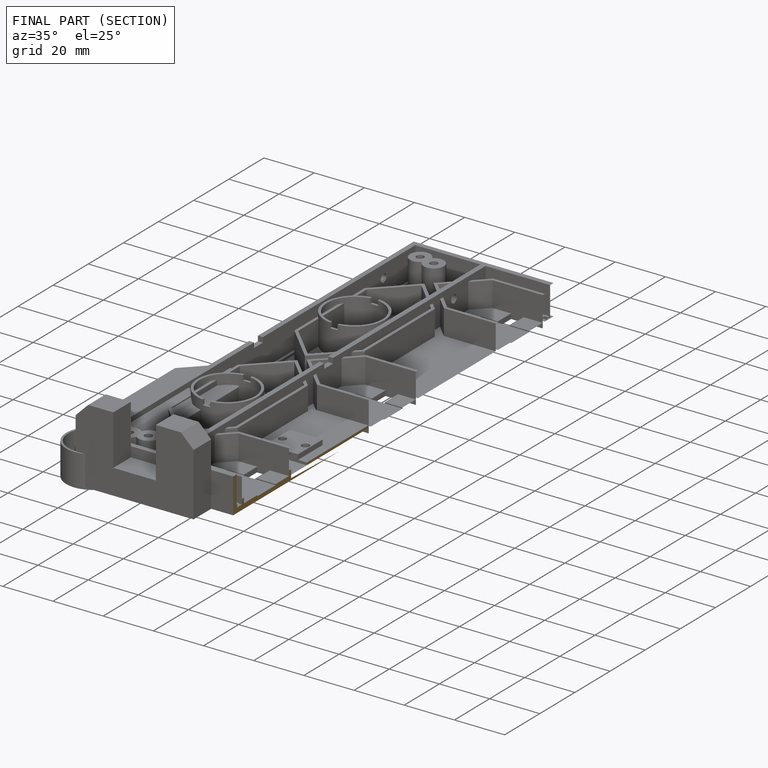
[diagram: finished part — half-section view (interior)]
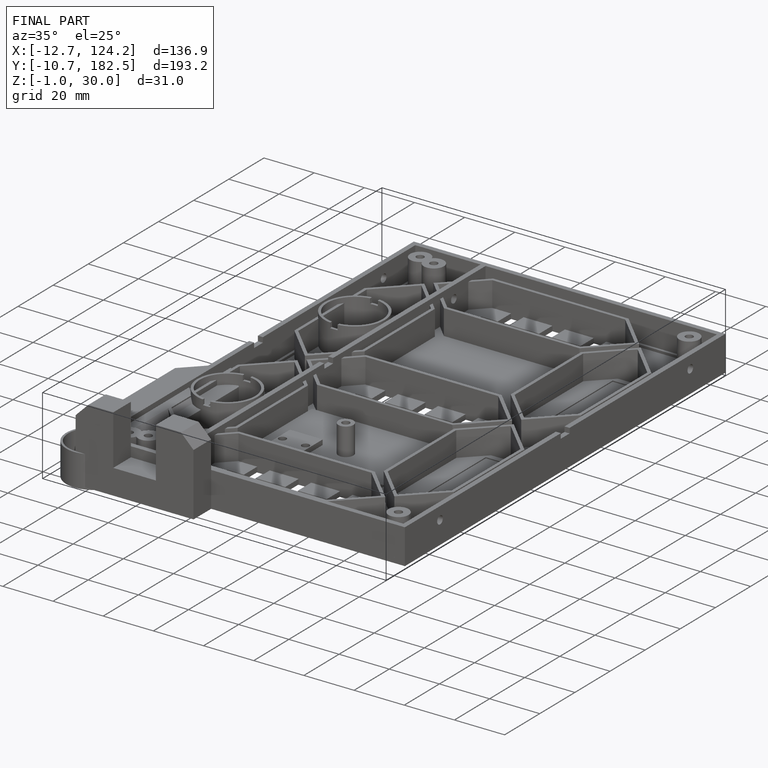
[diagram: finished part — iso view with bounding-box wireframe]
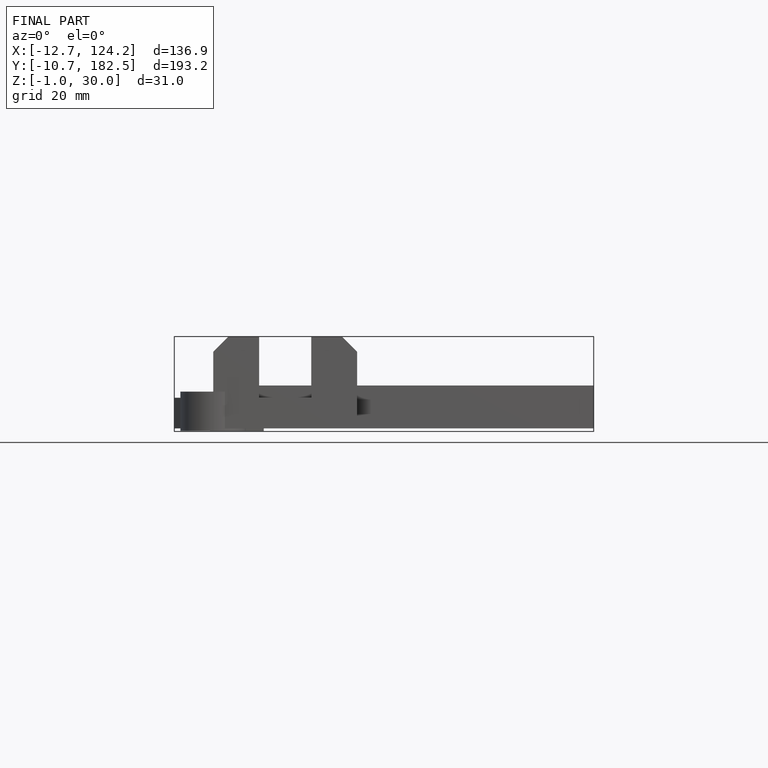
[diagram: finished part — front view with bounding-box wireframe]
